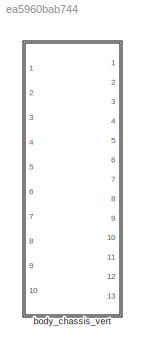
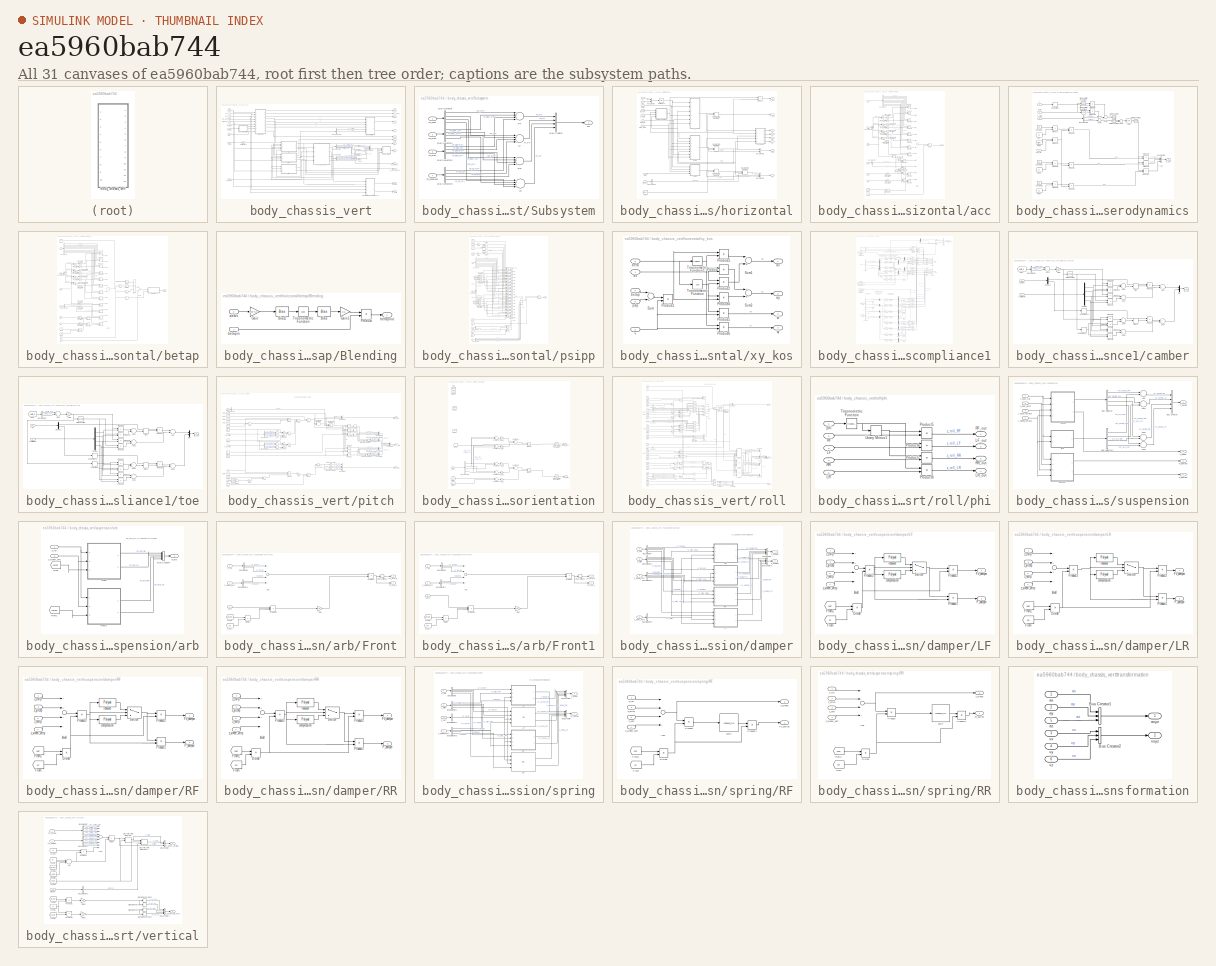
[diagram: thumbnail index - all 31 canvases of the model, root first then tree order]
MODEL slx_ea5960bab744
KIND library
CONFIG AbsTol = auto
CONFIG EnableMultiTasking = on
CONFIG FixedStep = auto
CONFIG MaxStep = auto
CONFIG MinStep = auto
CONFIG RelTol = 1e-3
CONFIG SampleTimeConstraint = Unconstrained
CONFIG Solver = ode45
CONFIG SolverName = ode45
CONFIG StartTime = 0.0
CONFIG StopTime = 10.0
BLOCK [SubSystem] body_chassis_vert
  Ports = [10, 13]
  RequestExecContextInheritance = off
BLOCK [Sum] body_chassis_vert/Add
  InputSameDT = off
  OutDataTypeStr = Inherit: Inherit via internal rule
  Ports = [2, 1]
  SaturateOnIntegerOverflow = off
BLOCK [Sum] body_chassis_vert/Add1
  InputSameDT = off
  OutDataTypeStr = Inherit: Inherit via internal rule
  Ports = [2, 1]
  SaturateOnIntegerOverflow = off
BLOCK [Sum] body_chassis_vert/Add2
  InputSameDT = off
  OutDataTypeStr = Inherit: Inherit via internal rule
  Ports = [2, 1]
  SaturateOnIntegerOverflow = off
BLOCK [Sum] body_chassis_vert/Add3
  InputSameDT = off
  OutDataTypeStr = Inherit: Inherit via internal rule
  Ports = [2, 1]
  SaturateOnIntegerOverflow = off
BLOCK [BusCreator] body_chassis_vert/Bus Creator
  DisplayOption = bar
  InheritFromInputs = on
  Inputs = 4
  Ports = [4, 1]
BLOCK [BusSelector] body_chassis_vert/Bus Selector
  OutputAsBus = off
  OutputSignals = Fz_spring_RF,Fz_spring_LF,Fz_spring_RR,Fz_spring_LR
  Ports = [1, 4]
BLOCK [BusSelector] body_chassis_vert/Bus Selector1
  OutputAsBus = off
  OutputSignals = Fz_damper_RF,Fz_damper_LF,Fz_damper_RR,Fz_damper_LR
  Ports = [1, 4]
BLOCK [BusSelector] body_chassis_vert/Bus Selector2
  OutputAsBus = off
  OutputSignals = z_vertpp,z_vertp
  Ports = [1, 2]
BLOCK [Inport] body_chassis_vert/Fl
  IconDisplay = Port number
  Port = 4
BLOCK [Inport] body_chassis_vert/Fs
  IconDisplay = Port number
  Port = 5
BLOCK [Outport] body_chassis_vert/Fzt
  IconDisplay = Port number
  Port = 11
BLOCK [Inport] body_chassis_vert/Mz
  IconDisplay = Port number
  Port = 10
BLOCK [Outport] body_chassis_vert/P_aer
  IconDisplay = Port number
  Port = 7
BLOCK [Outport] body_chassis_vert/P_damper
  IconDisplay = Port number
  Port = 6
BLOCK [SubSystem] body_chassis_vert/Subsystem
  Ports = [4, 1]
  RequestExecContextInheritance = off
BLOCK [BusCreator] body_chassis_vert/Subsystem/Bus Creator
  DisplayOption = bar
  InheritFromInputs = on
  Inputs = 4
  Ports = [4, 1]
BLOCK [BusSelector] body_chassis_vert/Subsystem/Bus Selector
  OutputAsBus = off
  OutputSignals = Fz_RF,Fz_LF,Fz_RR,Fz_LR
  Ports = [1, 4]
BLOCK [BusSelector] body_chassis_vert/Subsystem/Bus Selector1
  OutputAsBus = off
  OutputSignals = F_kinR_RF,F_kinR_LF,F_kinR_RR,F_kinR_LR
  Ports = [1, 4]
BLOCK [BusSelector] body_chassis_vert/Subsystem/Bus Selector2
  OutputAsBus = off
  OutputSignals = F_kinP_RF,F_kinP_LF,F_kinP_RR,F_kinP_LR
  Ports = [1, 4]
BLOCK [BusSelector] body_chassis_vert/Subsystem/Bus Selector3
  OutputAsBus = off
  OutputSignals = F_us_RF,F_us_LF,F_us_RR,F_us_LR
  Ports = [1, 4]
BLOCK [Inport] body_chassis_vert/Subsystem/Fz_kinP
  IconDisplay = Port number
  Port = 3
BLOCK [Inport] body_chassis_vert/Subsystem/Fz_kinR
  IconDisplay = Port number
  Port = 2
BLOCK [Inport] body_chassis_vert/Subsystem/Fz_susp
  IconDisplay = Port number
BLOCK [Inport] body_chassis_vert/Subsystem/Fz_unsprung
  IconDisplay = Port number
  Port = 4
BLOCK [Outport] body_chassis_vert/Subsystem/Fzt
  IconDisplay = Port number
BLOCK [Sum] body_chassis_vert/Subsystem/LF
  InputSameDT = off
  Inputs = ++++
  OutDataTypeStr = Inherit: Inherit via internal rule
  Ports = [4, 1]
  SaturateOnIntegerOverflow = off
BLOCK [Sum] body_chassis_vert/Subsystem/LR
  InputSameDT = off
  Inputs = ++++
  OutDataTypeStr = Inherit: Inherit via internal rule
  Ports = [4, 1]
  SaturateOnIntegerOverflow = off
BLOCK [Sum] body_chassis_vert/Subsystem/RF
  InputSameDT = off
  Inputs = ++++
  OutDataTypeStr = Inherit: Inherit via internal rule
  Ports = [4, 1]
  SaturateOnIntegerOverflow = off
BLOCK [Sum] body_chassis_vert/Subsystem/RR
  InputSameDT = off
  Inputs = ++++
  OutDataTypeStr = Inherit: Inherit via internal rule
  Ports = [4, 1]
  SaturateOnIntegerOverflow = off
BLOCK [UnitDelay] body_chassis_vert/Unit Delay3
  InputProcessing = Elements as channels (sample based)
  SampleTime = -1
BLOCK [Outport] body_chassis_vert/axyz
  IconDisplay = Port number
BLOCK [Outport] body_chassis_vert/beta
  IconDisplay = Port number
  Port = 8
BLOCK [Outport] body_chassis_vert/d_delta
  IconDisplay = Port number
  Port = 5
BLOCK [Inport] body_chassis_vert/delta
  IconDisplay = Port number
  Port = 3
BLOCK [Outport] body_chassis_vert/gamma
  IconDisplay = Port number
  Port = 13
BLOCK [SubSystem] body_chassis_vert/horizontal
  Ports = [9, 8]
  RequestExecContextInheritance = off
BLOCK [BusCreator] body_chassis_vert/horizontal/Bus Creator
  DisplayOption = bar
  InheritFromInputs = on
  Inputs = 2
  Ports = [2, 1]
BLOCK [BusCreator] body_chassis_vert/horizontal/Bus Creator1
  DisplayOption = bar
  InheritFromInputs = on
  Inputs = 3
  Ports = [3, 1]
BLOCK [BusCreator] body_chassis_vert/horizontal/Bus Creator2
  DisplayOption = bar
  InheritFromInputs = on
  Inputs = 2
  Ports = [2, 1]
BLOCK [BusSelector] body_chassis_vert/horizontal/Bus Selector
  OutputAsBus = off
  OutputSignals = init_psi
  Ports = [1, 1]
BLOCK [DiscreteIntegrator] body_chassis_vert/horizontal/Discrete-Time Integrator1
  ExternalReset = sampled level
  ICPrevOutput = DiscIntNeverNeededParam
  ICPrevScaledInput = DiscIntNeverNeededParam
  Ports = [2, 1]
  SampleTime = -1
BLOCK [DiscreteIntegrator] body_chassis_vert/horizontal/Discrete-Time Integrator2
  ExternalReset = sampled level
  ICPrevOutput = DiscIntNeverNeededParam
  ICPrevScaledInput = DiscIntNeverNeededParam
  InitialCondition = v0
  Ports = [2, 1]
  SampleTime = -1
BLOCK [DiscreteIntegrator] body_chassis_vert/horizontal/Discrete-Time Integrator3
  ExternalReset = sampled level
  ICPrevOutput = DiscIntNeverNeededParam
  ICPrevScaledInput = DiscIntNeverNeededParam
  InitialCondition = psip0
  Ports = [2, 1]
  SampleTime = -1
BLOCK [DiscreteIntegrator] body_chassis_vert/horizontal/Discrete-Time Integrator4
  ExternalReset = sampled level
  ICPrevOutput = DiscIntNeverNeededParam
  ICPrevScaledInput = DiscIntNeverNeededParam
  InitialConditionSource = external
  Ports = [3, 1]
  SampleTime = -1
BLOCK [Inport] body_chassis_vert/horizontal/Fl
  IconDisplay = Port number
  Port = 2
BLOCK [From] body_chassis_vert/horizontal/From
  GotoTag = reset
  TagVisibility = scoped
BLOCK [Inport] body_chassis_vert/horizontal/Fs
  IconDisplay = Port number
  Port = 3
BLOCK [Inport] body_chassis_vert/horizontal/Mz
  IconDisplay = Port number
  Port = 9
BLOCK [Outport] body_chassis_vert/horizontal/P_aer
  IconDisplay = Port number
  Port = 8
BLOCK [Product] body_chassis_vert/horizontal/Product
  InputSameDT = off
  OutDataTypeStr = Inherit: Inherit via internal rule
  Ports = [2, 1]
  RndMeth = Floor
  SaturateOnIntegerOverflow = off
BLOCK [UnitDelay] body_chassis_vert/horizontal/Unit Delay3
  InputProcessing = Elements as channels (sample based)
  SampleTime = -1
BLOCK [SubSystem] body_chassis_vert/horizontal/acc
  Ports = [6, 1]
  RequestExecContextInheritance = off
BLOCK [BusSelector] body_chassis_vert/horizontal/acc/Bus Selector
  OutputAsBus = off
  OutputSignals = Fl.Fl_LF,Fl.Fl_RF,Fs.Fs_LF,Fs.Fs_RF,Fl.Fl_LR,Fl.Fl_RR,Fs.Fs_LR,Fs.Fs_RR
  Ports = [1, 8]
BLOCK [BusSelector] body_chassis_vert/horizontal/acc/Bus Selector1
  OutputAsBus = off
  OutputSignals = delta_LF,delta_RF,delta_LR,delta_RR
  Ports = [1, 4]
BLOCK [BusSelector] body_chassis_vert/horizontal/acc/Bus Selector2
  OutputAsBus = off
  OutputSignals = F_aer_x,F_aer_y
  Ports = [1, 2]
BLOCK [Product] body_chassis_vert/horizontal/acc/Divide
  InputSameDT = off
  Inputs = */
  OutDataTypeStr = Inherit: Inherit via internal rule
  Ports = [2, 1]
  RndMeth = Floor
  SaturateOnIntegerOverflow = off
BLOCK [Inport] body_chassis_vert/horizontal/acc/F_aer
  IconDisplay = Port number
  Port = 4
BLOCK [Inport] body_chassis_vert/horizontal/acc/Fls
  IconDisplay = Port number
BLOCK [From] body_chassis_vert/horizontal/acc/From
  GotoTag = m
  TagVisibility = scoped
BLOCK [From] body_chassis_vert/horizontal/acc/From1
  GotoTag = g
  TagVisibility = scoped
BLOCK [Product] body_chassis_vert/horizontal/acc/Product
  InputSameDT = off
  OutDataTypeStr = Inherit: Inherit via internal rule
  Ports = [2, 1]
  SaturateOnIntegerOverflow = off
BLOCK [Product] body_chassis_vert/horizontal/acc/Product1
  InputSameDT = off
  OutDataTypeStr = Inherit: Inherit via internal rule
  Ports = [2, 1]
  SaturateOnIntegerOverflow = off
BLOCK [Product] body_chassis_vert/horizontal/acc/Product10
  InputSameDT = off
  OutDataTypeStr = Inherit: Inherit via internal rule
  Ports = [2, 1]
  SaturateOnIntegerOverflow = off
BLOCK [Product] body_chassis_vert/horizontal/acc/Product11
  InputSameDT = off
  OutDataTypeStr = Inherit: Inherit via internal rule
  Ports = [2, 1]
  SaturateOnIntegerOverflow = off
BLOCK [Product] body_chassis_vert/horizontal/acc/Product12
  InputSameDT = off
  OutDataTypeStr = Inherit: Inherit via internal rule
  Ports = [2, 1]
  SaturateOnIntegerOverflow = off
BLOCK [Product] body_chassis_vert/horizontal/acc/Product13
  InputSameDT = off
  OutDataTypeStr = Inherit: Inherit via internal rule
  Ports = [2, 1]
  SaturateOnIntegerOverflow = off
BLOCK [Product] body_chassis_vert/horizontal/acc/Product14
  InputSameDT = off
  OutDataTypeStr = Inherit: Inherit via internal rule
  Ports = [2, 1]
  SaturateOnIntegerOverflow = off
BLOCK [Product] body_chassis_vert/horizontal/acc/Product2
  InputSameDT = off
  OutDataTypeStr = Inherit: Inherit via internal rule
  Ports = [2, 1]
  SaturateOnIntegerOverflow = off
BLOCK [Product] body_chassis_vert/horizontal/acc/Product3
  InputSameDT = off
  OutDataTypeStr = Inherit: Inherit via internal rule
  Ports = [2, 1]
  SaturateOnIntegerOverflow = off
BLOCK [Product] body_chassis_vert/horizontal/acc/Product4
  InputSameDT = off
  OutDataTypeStr = Inherit: Inherit via internal rule
  Ports = [2, 1]
  SaturateOnIntegerOverflow = off
BLOCK [Product] body_chassis_vert/horizontal/acc/Product5
  InputSameDT = off
  OutDataTypeStr = Inherit: Inherit via internal rule
  Ports = [2, 1]
  SaturateOnIntegerOverflow = off
BLOCK [Product] body_chassis_vert/horizontal/acc/Product6
  InputSameDT = off
  OutDataTypeStr = Inherit: Inherit via internal rule
  Ports = [2, 1]
  SaturateOnIntegerOverflow = off
BLOCK [Product] body_chassis_vert/horizontal/acc/Product7
  InputSameDT = off
  OutDataTypeStr = Inherit: Inherit via internal rule
  Ports = [2, 1]
  SaturateOnIntegerOverflow = off
BLOCK [Product] body_chassis_vert/horizontal/acc/Product8
  InputSameDT = off
  OutDataTypeStr = Inherit: Inherit via internal rule
  Ports = [2, 1]
  SaturateOnIntegerOverflow = off
BLOCK [Product] body_chassis_vert/horizontal/acc/Product9
  InputSameDT = off
  OutDataTypeStr = Inherit: Inherit via internal rule
  Ports = [2, 1]
  SaturateOnIntegerOverflow = off
BLOCK [Sum] body_chassis_vert/horizontal/acc/Sum
  IconShape = round
  InputSameDT = off
  Inputs = |+-
  OutDataTypeStr = Inherit: Inherit via internal rule
  Ports = [2, 1]
  SaturateOnIntegerOverflow = off
BLOCK [Sum] body_chassis_vert/horizontal/acc/Sum1
  InputSameDT = off
  Inputs = ++--++-----+
  OutDataTypeStr = Inherit: Inherit via internal rule
  Ports = [12, 1]
  SaturateOnIntegerOverflow = off
BLOCK [Sum] body_chassis_vert/horizontal/acc/Sum2
  IconShape = round
  InputSameDT = off
  Inputs = |+-
  OutDataTypeStr = Inherit: Inherit via internal rule
  Ports = [2, 1]
  SaturateOnIntegerOverflow = off
BLOCK [Sum] body_chassis_vert/horizontal/acc/Sum3
  IconShape = round
  InputSameDT = off
  Inputs = |+-
  OutDataTypeStr = Inherit: Inherit via internal rule
  Ports = [2, 1]
  SaturateOnIntegerOverflow = off
BLOCK [Sum] body_chassis_vert/horizontal/acc/Sum4
  IconShape = round
  InputSameDT = off
  Inputs = |+-
  OutDataTypeStr = Inherit: Inherit via internal rule
  Ports = [2, 1]
  SaturateOnIntegerOverflow = off
BLOCK [Trigonometry] body_chassis_vert/horizontal/acc/Trigonometric Function1
  Ports = [1, 1]
BLOCK [Trigonometry] body_chassis_vert/horizontal/acc/Trigonometric Function10
  Operator = cos
  Ports = [1, 1]
BLOCK [Trigonometry] body_chassis_vert/horizontal/acc/Trigonometric Function11
  Operator = cos
  Ports = [1, 1]
BLOCK [Trigonometry] body_chassis_vert/horizontal/acc/Trigonometric Function12
  Ports = [1, 1]
BLOCK [Trigonometry] body_chassis_vert/horizontal/acc/Trigonometric Function2
  Ports = [1, 1]
BLOCK [Trigonometry] body_chassis_vert/horizontal/acc/Trigonometric Function3
  Ports = [1, 1]
BLOCK [Trigonometry] body_chassis_vert/horizontal/acc/Trigonometric Function4
  Ports = [1, 1]
BLOCK [Trigonometry] body_chassis_vert/horizontal/acc/Trigonometric Function5
  Ports = [1, 1]
BLOCK [Trigonometry] body_chassis_vert/horizontal/acc/Trigonometric Function6
  Operator = cos
  Ports = [1, 1]
BLOCK [Trigonometry] body_chassis_vert/horizontal/acc/Trigonometric Function7
  Ports = [1, 1]
BLOCK [Trigonometry] body_chassis_vert/horizontal/acc/Trigonometric Function8
  Operator = cos
  Ports = [1, 1]
BLOCK [Trigonometry] body_chassis_vert/horizontal/acc/Trigonometric Function9
  Operator = cos
  Ports = [1, 1]
BLOCK [UnaryMinus] body_chassis_vert/horizontal/acc/Unary Minus
BLOCK [Outport] body_chassis_vert/horizontal/acc/a
  IconDisplay = Port number
BLOCK [Inport] body_chassis_vert/horizontal/acc/beta
  IconDisplay = Port number
  Port = 3
BLOCK [Inport] body_chassis_vert/horizontal/acc/delta
  IconDisplay = Port number
  Port = 2
BLOCK [Inport] body_chassis_vert/horizontal/acc/pitch
  IconDisplay = Port number
  Port = 6
BLOCK [Inport] body_chassis_vert/horizontal/acc/roll
  IconDisplay = Port number
  Port = 5
BLOCK [SubSystem] body_chassis_vert/horizontal/aerodynamics
  Ports = [4, 1]
  RequestExecContextInheritance = off
BLOCK [BusCreator] body_chassis_vert/horizontal/aerodynamics/Bus Creator1
  DisplayOption = bar
  InheritFromInputs = on
  Inputs = 3
  Ports = [3, 1]
BLOCK [BusSelector] body_chassis_vert/horizontal/aerodynamics/Bus Selector2
  OutputAsBus = off
  OutputSignals = vwindx,vwindy
  Ports = [1, 2]
BLOCK [Constant] body_chassis_vert/horizontal/aerodynamics/Constant
  Value = 0.5
BLOCK [Constant] body_chassis_vert/horizontal/aerodynamics/Constant1
  Value = 0.5
BLOCK [Constant] body_chassis_vert/horizontal/aerodynamics/Constant2
  Value = 0.5
BLOCK [Outport] body_chassis_vert/horizontal/aerodynamics/F_aer
  IconDisplay = Port number
BLOCK [From] body_chassis_vert/horizontal/aerodynamics/From
  GotoTag = cx
  TagVisibility = scoped
BLOCK [From] body_chassis_vert/horizontal/aerodynamics/From1
  GotoTag = Afront
  TagVisibility = scoped
BLOCK [From] body_chassis_vert/horizontal/aerodynamics/From2
  GotoTag = cy
  TagVisibility = scoped
BLOCK [From] body_chassis_vert/horizontal/aerodynamics/From4
  GotoTag = cz
  TagVisibility = scoped
BLOCK [Math] body_chassis_vert/horizontal/aerodynamics/Math Function
  Operator = square
  Ports = [1, 1]
BLOCK [Math] body_chassis_vert/horizontal/aerodynamics/Math Function1
  Operator = square
  Ports = [1, 1]
BLOCK [Math] body_chassis_vert/horizontal/aerodynamics/Math Function2
  Operator = square
  Ports = [1, 1]
BLOCK [Product] body_chassis_vert/horizontal/aerodynamics/Product
  InputSameDT = off
  OutDataTypeStr = Inherit: Inherit via internal rule
  Ports = [2, 1]
  SaturateOnIntegerOverflow = off
BLOCK [Product] body_chassis_vert/horizontal/aerodynamics/Product1
  InputSameDT = off
  OutDataTypeStr = Inherit: Inherit via internal rule
  Ports = [2, 1]
  SaturateOnIntegerOverflow = off
BLOCK [Product] body_chassis_vert/horizontal/aerodynamics/Product10
  InputSameDT = off
  OutDataTypeStr = Inherit: Inherit via internal rule
  Ports = [2, 1]
  SaturateOnIntegerOverflow = off
BLOCK [Product] body_chassis_vert/horizontal/aerodynamics/Product11
  InputSameDT = off
  OutDataTypeStr = Inherit: Inherit via internal rule
  Ports = [2, 1]
  SaturateOnIntegerOverflow = off
BLOCK [Product] body_chassis_vert/horizontal/aerodynamics/Product2
  InputSameDT = off
  OutDataTypeStr = Inherit: Inherit via internal rule
  Ports = [2, 1]
  SaturateOnIntegerOverflow = off
BLOCK [Product] body_chassis_vert/horizontal/aerodynamics/Product3
  InputSameDT = off
  OutDataTypeStr = Inherit: Inherit via internal rule
  Ports = [2, 1]
  SaturateOnIntegerOverflow = off
BLOCK [Product] body_chassis_vert/horizontal/aerodynamics/Product4
  InputSameDT = off
  OutDataTypeStr = Inherit: Inherit via internal rule
  Ports = [2, 1]
  SaturateOnIntegerOverflow = off
BLOCK [Product] body_chassis_vert/horizontal/aerodynamics/Product5
  InputSameDT = off
  OutDataTypeStr = Inherit: Inherit via internal rule
  Ports = [2, 1]
  SaturateOnIntegerOverflow = off
BLOCK [Product] body_chassis_vert/horizontal/aerodynamics/Product6
  InputSameDT = off
  OutDataTypeStr = Inherit: Inherit via internal rule
  Ports = [2, 1]
  SaturateOnIntegerOverflow = off
BLOCK [Product] body_chassis_vert/horizontal/aerodynamics/Product7
  InputSameDT = off
  OutDataTypeStr = Inherit: Inherit via internal rule
  Ports = [2, 1]
  SaturateOnIntegerOverflow = off
BLOCK [Product] body_chassis_vert/horizontal/aerodynamics/Product8
  InputSameDT = off
  OutDataTypeStr = Inherit: Inherit via internal rule
  Ports = [2, 1]
  SaturateOnIntegerOverflow = off
BLOCK [Product] body_chassis_vert/horizontal/aerodynamics/Product9
  InputSameDT = off
  OutDataTypeStr = Inherit: Inherit via internal rule
  Ports = [2, 1]
  SaturateOnIntegerOverflow = off
BLOCK [Sqrt] body_chassis_vert/horizontal/aerodynamics/Sqrt
BLOCK [Sum] body_chassis_vert/horizontal/aerodynamics/Sum1
  IconShape = round
  InputSameDT = off
  Inputs = ++|
  OutDataTypeStr = Inherit: Inherit via internal rule
  Ports = [2, 1]
  SaturateOnIntegerOverflow = off
BLOCK [Sum] body_chassis_vert/horizontal/aerodynamics/Sum5
  IconShape = round
  InputSameDT = off
  Inputs = ++|
  OutDataTypeStr = Inherit: Inherit via internal rule
  Ports = [2, 1]
  SaturateOnIntegerOverflow = off
BLOCK [Sum] body_chassis_vert/horizontal/aerodynamics/Sum6
  IconShape = round
  InputSameDT = off
  Inputs = ++|
  OutDataTypeStr = Inherit: Inherit via internal rule
  Ports = [2, 1]
  SaturateOnIntegerOverflow = off
BLOCK [Trigonometry] body_chassis_vert/horizontal/aerodynamics/Trigonometric Function1
  Operator = cos
  Ports = [1, 1]
BLOCK [Trigonometry] body_chassis_vert/horizontal/aerodynamics/Trigonometric Function5
  Ports = [1, 1]
BLOCK [UnaryMinus] body_chassis_vert/horizontal/aerodynamics/Unary Minus
BLOCK [Inport] body_chassis_vert/horizontal/aerodynamics/beta
  IconDisplay = Port number
  Port = 4
BLOCK [Inport] body_chassis_vert/horizontal/aerodynamics/rho_air
  IconDisplay = Port number
BLOCK [Inport] body_chassis_vert/horizontal/aerodynamics/v
  IconDisplay = Port number
  Port = 2
BLOCK [Inport] body_chassis_vert/horizontal/aerodynamics/v_wind
  IconDisplay = Port number
  Port = 3
BLOCK [Outport] body_chassis_vert/horizontal/ax
  IconDisplay = Port number
  Port = 4
BLOCK [Outport] body_chassis_vert/horizontal/ay
  IconDisplay = Port number
  Port = 5
BLOCK [Outport] body_chassis_vert/horizontal/beta
  IconDisplay = Port number
BLOCK [SubSystem] body_chassis_vert/horizontal/betap
  Ports = [8, 1]
  RequestExecContextInheritance = off
BLOCK [Abs] body_chassis_vert/horizontal/betap/Abs
  SaturateOnIntegerOverflow = off
BLOCK [Abs] body_chassis_vert/horizontal/betap/Abs1
  SaturateOnIntegerOverflow = off
BLOCK [SubSystem] body_chassis_vert/horizontal/betap/Blending
  Ports = [2, 1]
  RequestExecContextInheritance = off
BLOCK [Bias] body_chassis_vert/horizontal/betap/Blending/Bias
  Bias = 1
  SaturateOnIntegerOverflow = off
BLOCK [Bias] body_chassis_vert/horizontal/betap/Blending/Bias1
  Bias = -2*pi
  SaturateOnIntegerOverflow = off
BLOCK [Gain] body_chassis_vert/horizontal/betap/Blending/Gain
  Gain = 2*pi*0.5
  OutDataTypeStr = Inherit: Inherit via internal rule
  ParamDataTypeStr = Inherit: Inherit via internal rule
  SaturateOnIntegerOverflow = off
BLOCK [Gain] body_chassis_vert/horizontal/betap/Blending/Gain1
  Gain = 0.5
  OutDataTypeStr = Inherit: Inherit via internal rule
  ParamDataTypeStr = Inherit: Inherit via internal rule
  SaturateOnIntegerOverflow = off
BLOCK [Product] body_chassis_vert/horizontal/betap/Blending/Product
  InputSameDT = off
  OutDataTypeStr = Inherit: Inherit via internal rule
  Ports = [2, 1]
  SaturateOnIntegerOverflow = off
BLOCK [Trigonometry] body_chassis_vert/horizontal/betap/Blending/Trigonometric Function
  Operator = tanh
  Ports = [1, 1]
BLOCK [Inport] body_chassis_vert/horizontal/betap/Blending/absVx
  IconDisplay = Port number
  Port = 2
BLOCK [Inport] body_chassis_vert/horizontal/betap/Blending/betapin
  IconDisplay = Port number
BLOCK [Outport] body_chassis_vert/horizontal/betap/Blending/betapout
  IconDisplay = Port number
BLOCK [BusSelector] body_chassis_vert/horizontal/betap/Bus Selector
  OutputAsBus = off
  OutputSignals = Fl.Fl_LF,Fl.Fl_RF,Fs.Fs_LF,Fs.Fs_RF,Fl.Fl_LR,Fl.Fl_RR,Fs.Fs_LR,Fs.Fs_RR
  Ports = [1, 8]
BLOCK [BusSelector] body_chassis_vert/horizontal/betap/Bus Selector1
  OutputAsBus = off
  OutputSignals = delta_LF,delta_RF,delta_LR,delta_RR
  Ports = [1, 4]
BLOCK [BusSelector] body_chassis_vert/horizontal/betap/Bus Selector2
  OutputAsBus = off
  OutputSignals = F_aer_x,F_aer_y
  Ports = [1, 2]
BLOCK [Product] body_chassis_vert/horizontal/betap/Divide
  InputSameDT = off
  Inputs = */*
  OutDataTypeStr = Inherit: Inherit via internal rule
  Ports = [3, 1]
  RndMeth = Floor
  SaturateOnIntegerOverflow = off
BLOCK [Product] body_chassis_vert/horizontal/betap/Divide1
  InputSameDT = off
  Inputs = /*
  OutDataTypeStr = Inherit: Inherit via internal rule
  Ports = [2, 1]
  RndMeth = Floor
  SaturateOnIntegerOverflow = off
BLOCK [Inport] body_chassis_vert/horizontal/betap/F_aer
  IconDisplay = Port number
  Port = 5
BLOCK [From] body_chassis_vert/horizontal/betap/From
  GotoTag = m
  TagVisibility = scoped
BLOCK [From] body_chassis_vert/horizontal/betap/From1
  GotoTag = g
  TagVisibility = scoped
BLOCK [From] body_chassis_vert/horizontal/betap/From2
  GotoTag = m
  TagVisibility = scoped
BLOCK [Inport] body_chassis_vert/horizontal/betap/Fsl
  IconDisplay = Port number
  Port = 3
BLOCK [Product] body_chassis_vert/horizontal/betap/Product1
  InputSameDT = off
  OutDataTypeStr = Inherit: Inherit via internal rule
  Ports = [2, 1]
  SaturateOnIntegerOverflow = off
BLOCK [Product] body_chassis_vert/horizontal/betap/Product10
  InputSameDT = off
  OutDataTypeStr = Inherit: Inherit via internal rule
  Ports = [2, 1]
  SaturateOnIntegerOverflow = off
BLOCK [Product] body_chassis_vert/horizontal/betap/Product11
  InputSameDT = off
  OutDataTypeStr = Inherit: Inherit via internal rule
  Ports = [2, 1]
  SaturateOnIntegerOverflow = off
BLOCK [Product] body_chassis_vert/horizontal/betap/Product12
  InputSameDT = off
  OutDataTypeStr = Inherit: Inherit via internal rule
  Ports = [2, 1]
  SaturateOnIntegerOverflow = off
BLOCK [Product] body_chassis_vert/horizontal/betap/Product13
  InputSameDT = off
  OutDataTypeStr = Inherit: Inherit via internal rule
  Ports = [2, 1]
  SaturateOnIntegerOverflow = off
BLOCK [Product] body_chassis_vert/horizontal/betap/Product14
  InputSameDT = off
  OutDataTypeStr = Inherit: Inherit via internal rule
  Ports = [2, 1]
  SaturateOnIntegerOverflow = off
BLOCK [Product] body_chassis_vert/horizontal/betap/Product15
  InputSameDT = off
  OutDataTypeStr = Inherit: Inherit via internal rule
  Ports = [2, 1]
  SaturateOnIntegerOverflow = off
BLOCK [Product] body_chassis_vert/horizontal/betap/Product2
  InputSameDT = off
  OutDataTypeStr = Inherit: Inherit via internal rule
  Ports = [2, 1]
  SaturateOnIntegerOverflow = off
BLOCK [Product] body_chassis_vert/horizontal/betap/Product3
  InputSameDT = off
  OutDataTypeStr = Inherit: Inherit via internal rule
  Ports = [2, 1]
  SaturateOnIntegerOverflow = off
BLOCK [Product] body_chassis_vert/horizontal/betap/Product4
  InputSameDT = off
  OutDataTypeStr = Inherit: Inherit via internal rule
  Ports = [2, 1]
  SaturateOnIntegerOverflow = off
BLOCK [Product] body_chassis_vert/horizontal/betap/Product5
  InputSameDT = off
  OutDataTypeStr = Inherit: Inherit via internal rule
  Ports = [2, 1]
  SaturateOnIntegerOverflow = off
BLOCK [Product] body_chassis_vert/horizontal/betap/Product6
  InputSameDT = off
  OutDataTypeStr = Inherit: Inherit via internal rule
  Ports = [2, 1]
  SaturateOnIntegerOverflow = off
BLOCK [Product] body_chassis_vert/horizontal/betap/Product7
  InputSameDT = off
  OutDataTypeStr = Inherit: Inherit via internal rule
  Ports = [2, 1]
  SaturateOnIntegerOverflow = off
BLOCK [Product] body_chassis_vert/horizontal/betap/Product8
  InputSameDT = off
  OutDataTypeStr = Inherit: Inherit via internal rule
  Ports = [2, 1]
  SaturateOnIntegerOverflow = off
BLOCK [Product] body_chassis_vert/horizontal/betap/Product9
  InputSameDT = off
  OutDataTypeStr = Inherit: Inherit via internal rule
  Ports = [2, 1]
  SaturateOnIntegerOverflow = off
BLOCK [Saturate] body_chassis_vert/horizontal/betap/Saturation
  InputPortMap = u0
  LowerLimit = 0.5e-5
  Ports = [1, 1]
  UpperLimit = 1e10
BLOCK [Signum] body_chassis_vert/horizontal/betap/Sign
BLOCK [Sum] body_chassis_vert/horizontal/betap/Sum
  IconShape = round
  InputSameDT = off
  Inputs = |+-
  OutDataTypeStr = Inherit: Inherit via internal rule
  Ports = [2, 1]
  SaturateOnIntegerOverflow = off
BLOCK [Sum] body_chassis_vert/horizontal/betap/Sum2
  IconShape = round
  InputSameDT = off
  Inputs = |+-
  OutDataTypeStr = Inherit: Inherit via internal rule
  Ports = [2, 1]
  SaturateOnIntegerOverflow = off
BLOCK [Sum] body_chassis_vert/horizontal/betap/Sum3
  IconShape = round
  InputSameDT = off
  Inputs = |+-
  OutDataTypeStr = Inherit: Inherit via internal rule
  Ports = [2, 1]
  SaturateOnIntegerOverflow = off
BLOCK [Sum] body_chassis_vert/horizontal/betap/Sum4
  IconShape = round
  InputSameDT = off
  Inputs = |+-
  OutDataTypeStr = Inherit: Inherit via internal rule
  Ports = [2, 1]
  SaturateOnIntegerOverflow = off
BLOCK [Sum] body_chassis_vert/horizontal/betap/Sum7
  InputSameDT = off
  Inputs = +-
  OutDataTypeStr = Inherit: Inherit via internal rule
  Ports = [2, 1]
  SaturateOnIntegerOverflow = off
BLOCK [Sum] body_chassis_vert/horizontal/betap/Sum8
  InputSameDT = off
  Inputs = +++++++++++-
  OutDataTypeStr = Inherit: Inherit via internal rule
  Ports = [12, 1]
  SaturateOnIntegerOverflow = off
BLOCK [Trigonometry] body_chassis_vert/horizontal/betap/Trigonometric Function1
  Operator = cos
  Ports = [1, 1]
BLOCK [Trigonometry] body_chassis_vert/horizontal/betap/Trigonometric Function10
  Operator = cos
  Ports = [1, 1]
BLOCK [Trigonometry] body_chassis_vert/horizontal/betap/Trigonometric Function11
  Ports = [1, 1]
BLOCK [Trigonometry] body_chassis_vert/horizontal/betap/Trigonometric Function12
  Ports = [1, 1]
BLOCK [Trigonometry] body_chassis_vert/horizontal/betap/Trigonometric Function13
  Ports = [1, 1]
BLOCK [Trigonometry] body_chassis_vert/horizontal/betap/Trigonometric Function14
  Operator = cos
  Ports = [1, 1]
BLOCK [Trigonometry] body_chassis_vert/horizontal/betap/Trigonometric Function2
  Ports = [1, 1]
BLOCK [Trigonometry] body_chassis_vert/horizontal/betap/Trigonometric Function3
  Ports = [1, 1]
BLOCK [Trigonometry] body_chassis_vert/horizontal/betap/Trigonometric Function5
  Ports = [1, 1]
BLOCK [Trigonometry] body_chassis_vert/horizontal/betap/Trigonometric Function7
  Ports = [1, 1]
BLOCK [Trigonometry] body_chassis_vert/horizontal/betap/Trigonometric Function8
  Operator = cos
  Ports = [1, 1]
BLOCK [Trigonometry] body_chassis_vert/horizontal/betap/Trigonometric Function9
  Operator = cos
  Ports = [1, 1]
BLOCK [Inport] body_chassis_vert/horizontal/betap/beta
  IconDisplay = Port number
  Port = 2
BLOCK [Outport] body_chassis_vert/horizontal/betap/betap
  IconDisplay = Port number
BLOCK [Inport] body_chassis_vert/horizontal/betap/delta
  IconDisplay = Port number
  Port = 4
BLOCK [Inport] body_chassis_vert/horizontal/betap/dpsi
  IconDisplay = Port number
  Port = 6
BLOCK [Inport] body_chassis_vert/horizontal/betap/pitch
  IconDisplay = Port number
  Port = 8
BLOCK [Inport] body_chassis_vert/horizontal/betap/roll
  IconDisplay = Port number
  Port = 7
BLOCK [Inport] body_chassis_vert/horizontal/betap/v
  IconDisplay = Port number
BLOCK [Inport] body_chassis_vert/horizontal/delta
  IconDisplay = Port number
BLOCK [Inport] body_chassis_vert/horizontal/init_pos
  IconDisplay = Port number
  Port = 5
BLOCK [Inport] body_chassis_vert/horizontal/pitch_road
  IconDisplay = Port number
  Port = 8
BLOCK [Outport] body_chassis_vert/horizontal/psi
  IconDisplay = Port number
  Port = 2
BLOCK [SubSystem] body_chassis_vert/horizontal/psipp
  Ports = [4, 1]
  RequestExecContextInheritance = off
BLOCK [Sum] body_chassis_vert/horizontal/psipp/Add
  InputSameDT = off
  Inputs = 5
  OutDataTypeStr = Inherit: Inherit via internal rule
  Ports = [5, 1]
  SaturateOnIntegerOverflow = off
BLOCK [BusSelector] body_chassis_vert/horizontal/psipp/Bus Selector
  OutputAsBus = off
  OutputSignals = delta_LF,delta_RF,delta_LR,delta_RR
  Ports = [1, 4]
BLOCK [BusSelector] body_chassis_vert/horizontal/psipp/Bus Selector1
  OutputAsBus = off
  OutputSignals = Fl.Fl_LF,Fl.Fl_RF,Fs.Fs_LF,Fs.Fs_RF,Fl.Fl_LR,Fl.Fl_RR,Fs.Fs_LR,Fs.Fs_RR
  Ports = [1, 8]
BLOCK [BusSelector] body_chassis_vert/horizontal/psipp/Bus Selector2
  OutputAsBus = off
  OutputSignals = F_aer_x,F_aer_y
  Ports = [1, 2]
BLOCK [BusSelector] body_chassis_vert/horizontal/psipp/Bus Selector3
  OutputAsBus = off
  OutputSignals = Mv_RF,Mv_LF,Mv_RR,Mv_LR
  Ports = [1, 4]
BLOCK [Product] body_chassis_vert/horizontal/psipp/Divide
  InputSameDT = off
  Inputs = */
  OutDataTypeStr = Inherit: Inherit via internal rule
  Ports = [2, 1]
  RndMeth = Floor
  SaturateOnIntegerOverflow = off
BLOCK [Inport] body_chassis_vert/horizontal/psipp/F_aer
  IconDisplay = Port number
  Port = 3
BLOCK [Inport] body_chassis_vert/horizontal/psipp/Fls
  IconDisplay = Port number
BLOCK [From] body_chassis_vert/horizontal/psipp/From
  GotoTag = I_z
  TagVisibility = scoped
BLOCK [From] body_chassis_vert/horizontal/psipp/From1
  GotoTag = lF
  TagVisibility = scoped
BLOCK [From] body_chassis_vert/horizontal/psipp/From2
  GotoTag = lDP
  TagVisibility = scoped
BLOCK [From] body_chassis_vert/horizontal/psipp/From3
  GotoTag = sF
  TagVisibility = scoped
BLOCK [From] body_chassis_vert/horizontal/psipp/From4
  GotoTag = sR
  TagVisibility = scoped
BLOCK [From] body_chassis_vert/horizontal/psipp/From5
  GotoTag = ySP
  TagVisibility = scoped
BLOCK [From] body_chassis_vert/horizontal/psipp/From6
  GotoTag = lR
  TagVisibility = scoped
BLOCK [From] body_chassis_vert/horizontal/psipp/From7
  GotoTag = sDP
  TagVisibility = scoped
BLOCK [Gain] body_chassis_vert/horizontal/psipp/Gain
  Gain = 0.5
  OutDataTypeStr = Inherit: Inherit via internal rule
  ParamDataTypeStr = Inherit: Inherit via internal rule
  SaturateOnIntegerOverflow = off
BLOCK [Gain] body_chassis_vert/horizontal/psipp/Gain1
  Gain = 0.5
  OutDataTypeStr = Inherit: Inherit via internal rule
  ParamDataTypeStr = Inherit: Inherit via internal rule
  SaturateOnIntegerOverflow = off
BLOCK [Inport] body_chassis_vert/horizontal/psipp/Mz
  IconDisplay = Port number
  Port = 4
BLOCK [Product] body_chassis_vert/horizontal/psipp/Product1
  InputSameDT = off
  OutDataTypeStr = Inherit: Inherit via internal rule
  Ports = [2, 1]
  SaturateOnIntegerOverflow = off
BLOCK [Product] body_chassis_vert/horizontal/psipp/Product10
  InputSameDT = off
  OutDataTypeStr = Inherit: Inherit via internal rule
  Ports = [2, 1]
  SaturateOnIntegerOverflow = off
BLOCK [Product] body_chassis_vert/horizontal/psipp/Product11
  InputSameDT = off
  OutDataTypeStr = Inherit: Inherit via internal rule
  Ports = [2, 1]
  SaturateOnIntegerOverflow = off
BLOCK [Product] body_chassis_vert/horizontal/psipp/Product12
  InputSameDT = off
  OutDataTypeStr = Inherit: Inherit via internal rule
  Ports = [2, 1]
  SaturateOnIntegerOverflow = off
BLOCK [Product] body_chassis_vert/horizontal/psipp/Product13
  InputSameDT = off
  OutDataTypeStr = Inherit: Inherit via internal rule
  Ports = [2, 1]
  SaturateOnIntegerOverflow = off
BLOCK [Product] body_chassis_vert/horizontal/psipp/Product14
  InputSameDT = off
  OutDataTypeStr = Inherit: Inherit via internal rule
  Ports = [2, 1]
  SaturateOnIntegerOverflow = off
BLOCK [Product] body_chassis_vert/horizontal/psipp/Product15
  InputSameDT = off
  OutDataTypeStr = Inherit: Inherit via internal rule
  Ports = [2, 1]
  SaturateOnIntegerOverflow = off
BLOCK [Product] body_chassis_vert/horizontal/psipp/Product16
  InputSameDT = off
  OutDataTypeStr = Inherit: Inherit via internal rule
  Ports = [2, 1]
  SaturateOnIntegerOverflow = off
BLOCK [Product] body_chassis_vert/horizontal/psipp/Product17
  InputSameDT = off
  OutDataTypeStr = Inherit: Inherit via internal rule
  Ports = [2, 1]
  SaturateOnIntegerOverflow = off
BLOCK [Product] body_chassis_vert/horizontal/psipp/Product18
  InputSameDT = off
  OutDataTypeStr = Inherit: Inherit via internal rule
  Ports = [2, 1]
  SaturateOnIntegerOverflow = off
BLOCK [Product] body_chassis_vert/horizontal/psipp/Product19
  InputSameDT = off
  OutDataTypeStr = Inherit: Inherit via internal rule
  Ports = [2, 1]
  SaturateOnIntegerOverflow = off
BLOCK [Product] body_chassis_vert/horizontal/psipp/Product2
  InputSameDT = off
  OutDataTypeStr = Inherit: Inherit via internal rule
  Ports = [2, 1]
  SaturateOnIntegerOverflow = off
BLOCK [Product] body_chassis_vert/horizontal/psipp/Product20
  InputSameDT = off
  OutDataTypeStr = Inherit: Inherit via internal rule
  Ports = [2, 1]
  SaturateOnIntegerOverflow = off
BLOCK [Product] body_chassis_vert/horizontal/psipp/Product21
  InputSameDT = off
  OutDataTypeStr = Inherit: Inherit via internal rule
  Ports = [2, 1]
  SaturateOnIntegerOverflow = off
BLOCK [Product] body_chassis_vert/horizontal/psipp/Product22
  InputSameDT = off
  OutDataTypeStr = Inherit: Inherit via internal rule
  Ports = [2, 1]
  SaturateOnIntegerOverflow = off
BLOCK [Product] body_chassis_vert/horizontal/psipp/Product23
  InputSameDT = off
  OutDataTypeStr = Inherit: Inherit via internal rule
  Ports = [2, 1]
  SaturateOnIntegerOverflow = off
BLOCK [Product] body_chassis_vert/horizontal/psipp/Product24
  InputSameDT = off
  OutDataTypeStr = Inherit: Inherit via internal rule
  Ports = [2, 1]
  SaturateOnIntegerOverflow = off
BLOCK [Product] body_chassis_vert/horizontal/psipp/Product25
  InputSameDT = off
  OutDataTypeStr = Inherit: Inherit via internal rule
  Ports = [2, 1]
  SaturateOnIntegerOverflow = off
BLOCK [Product] body_chassis_vert/horizontal/psipp/Product26
  InputSameDT = off
  OutDataTypeStr = Inherit: Inherit via internal rule
  Ports = [2, 1]
  SaturateOnIntegerOverflow = off
BLOCK [Product] body_chassis_vert/horizontal/psipp/Product27
  InputSameDT = off
  OutDataTypeStr = Inherit: Inherit via internal rule
  Ports = [2, 1]
  SaturateOnIntegerOverflow = off
BLOCK [Product] body_chassis_vert/horizontal/psipp/Product28
  InputSameDT = off
  OutDataTypeStr = Inherit: Inherit via internal rule
  Ports = [2, 1]
  SaturateOnIntegerOverflow = off
BLOCK [Product] body_chassis_vert/horizontal/psipp/Product29
  InputSameDT = off
  OutDataTypeStr = Inherit: Inherit via internal rule
  Ports = [2, 1]
  SaturateOnIntegerOverflow = off
BLOCK [Product] body_chassis_vert/horizontal/psipp/Product3
  InputSameDT = off
  OutDataTypeStr = Inherit: Inherit via internal rule
  Ports = [2, 1]
  SaturateOnIntegerOverflow = off
BLOCK [Product] body_chassis_vert/horizontal/psipp/Product30
  InputSameDT = off
  OutDataTypeStr = Inherit: Inherit via internal rule
  Ports = [2, 1]
  SaturateOnIntegerOverflow = off
BLOCK [Product] body_chassis_vert/horizontal/psipp/Product31
  InputSameDT = off
  OutDataTypeStr = Inherit: Inherit via internal rule
  Ports = [2, 1]
  SaturateOnIntegerOverflow = off
BLOCK [Product] body_chassis_vert/horizontal/psipp/Product32
  InputSameDT = off
  OutDataTypeStr = Inherit: Inherit via internal rule
  Ports = [2, 1]
  SaturateOnIntegerOverflow = off
BLOCK [Product] body_chassis_vert/horizontal/psipp/Product33
  InputSameDT = off
  OutDataTypeStr = Inherit: Inherit via internal rule
  Ports = [2, 1]
  SaturateOnIntegerOverflow = off
BLOCK [Product] body_chassis_vert/horizontal/psipp/Product34
  InputSameDT = off
  OutDataTypeStr = Inherit: Inherit via internal rule
  Ports = [2, 1]
  SaturateOnIntegerOverflow = off
BLOCK [Product] body_chassis_vert/horizontal/psipp/Product4
  InputSameDT = off
  OutDataTypeStr = Inherit: Inherit via internal rule
  Ports = [2, 1]
  SaturateOnIntegerOverflow = off
BLOCK [Product] body_chassis_vert/horizontal/psipp/Product5
  InputSameDT = off
  OutDataTypeStr = Inherit: Inherit via internal rule
  Ports = [2, 1]
  SaturateOnIntegerOverflow = off
BLOCK [Product] body_chassis_vert/horizontal/psipp/Product6
  InputSameDT = off
  OutDataTypeStr = Inherit: Inherit via internal rule
  Ports = [2, 1]
  SaturateOnIntegerOverflow = off
BLOCK [Product] body_chassis_vert/horizontal/psipp/Product7
  InputSameDT = off
  OutDataTypeStr = Inherit: Inherit via internal rule
  Ports = [2, 1]
  SaturateOnIntegerOverflow = off
BLOCK [Product] body_chassis_vert/horizontal/psipp/Product8
  InputSameDT = off
  OutDataTypeStr = Inherit: Inherit via internal rule
  Ports = [2, 1]
  SaturateOnIntegerOverflow = off
BLOCK [Product] body_chassis_vert/horizontal/psipp/Product9
  InputSameDT = off
  OutDataTypeStr = Inherit: Inherit via internal rule
  Ports = [2, 1]
  SaturateOnIntegerOverflow = off
BLOCK [Sum] body_chassis_vert/horizontal/psipp/Subtract
  InputSameDT = off
  Inputs = +-
  OutDataTypeStr = Inherit: Inherit via internal rule
  Ports = [2, 1]
  SaturateOnIntegerOverflow = off
BLOCK [Sum] body_chassis_vert/horizontal/psipp/Subtract1
  InputSameDT = off
  OutDataTypeStr = Inherit: Inherit via internal rule
  Ports = [2, 1]
  SaturateOnIntegerOverflow = off
BLOCK [Sum] body_chassis_vert/horizontal/psipp/Subtract2
  InputSameDT = off
  Inputs = +-
  OutDataTypeStr = Inherit: Inherit via internal rule
  Ports = [2, 1]
  SaturateOnIntegerOverflow = off
BLOCK [Sum] body_chassis_vert/horizontal/psipp/Subtract3
  InputSameDT = off
  OutDataTypeStr = Inherit: Inherit via internal rule
  Ports = [2, 1]
  SaturateOnIntegerOverflow = off
BLOCK [Sum] body_chassis_vert/horizontal/psipp/Sum
  InputSameDT = off
  Inputs = +-++++-+---++---+-
  OutDataTypeStr = Inherit: Inherit via internal rule
  Ports = [18, 1]
  SaturateOnIntegerOverflow = off
BLOCK [Trigonometry] body_chassis_vert/horizontal/psipp/Trigonometric Function1
  Ports = [1, 1]
BLOCK [Trigonometry] body_chassis_vert/horizontal/psipp/Trigonometric Function2
  Ports = [1, 1]
BLOCK [Trigonometry] body_chassis_vert/horizontal/psipp/Trigonometric Function3
  Operator = cos
  Ports = [1, 1]
BLOCK [Trigonometry] body_chassis_vert/horizontal/psipp/Trigonometric Function4
  Operator = cos
  Ports = [1, 1]
BLOCK [Trigonometry] body_chassis_vert/horizontal/psipp/Trigonometric Function5
  Ports = [1, 1]
BLOCK [Trigonometry] body_chassis_vert/horizontal/psipp/Trigonometric Function6
  Operator = cos
  Ports = [1, 1]
BLOCK [Trigonometry] body_chassis_vert/horizontal/psipp/Trigonometric Function7
  Ports = [1, 1]
BLOCK [Trigonometry] body_chassis_vert/horizontal/psipp/Trigonometric Function8
  Operator = cos
  Ports = [1, 1]
BLOCK [Inport] body_chassis_vert/horizontal/psipp/delta
  IconDisplay = Port number
  Port = 2
BLOCK [Outport] body_chassis_vert/horizontal/psipp/psipp
  IconDisplay = Port number
BLOCK [Inport] body_chassis_vert/horizontal/rho_air
  IconDisplay = Port number
  Port = 4
BLOCK [Inport] body_chassis_vert/horizontal/roll_road
  IconDisplay = Port number
  Port = 7
BLOCK [Outport] body_chassis_vert/horizontal/v_abs
  IconDisplay = Port number
  Port = 3
BLOCK [Inport] body_chassis_vert/horizontal/v_wind
  IconDisplay = Port number
  Port = 6
BLOCK [Outport] body_chassis_vert/horizontal/vx
  IconDisplay = Port number
  Port = 6
BLOCK [Outport] body_chassis_vert/horizontal/vy
  IconDisplay = Port number
  Port = 7
BLOCK [SubSystem] body_chassis_vert/horizontal/xy_kos
  Ports = [5, 4]
  RequestExecContextInheritance = off
BLOCK [Product] body_chassis_vert/horizontal/xy_kos/Product
  InputSameDT = off
  OutDataTypeStr = Inherit: Inherit via internal rule
  Ports = [2, 1]
  SaturateOnIntegerOverflow = off
BLOCK [Product] body_chassis_vert/horizontal/xy_kos/Product1
  InputSameDT = off
  OutDataTypeStr = Inherit: Inherit via internal rule
  Ports = [2, 1]
  SaturateOnIntegerOverflow = off
BLOCK [Product] body_chassis_vert/horizontal/xy_kos/Product2
  InputSameDT = off
  OutDataTypeStr = Inherit: Inherit via internal rule
  Ports = [2, 1]
  SaturateOnIntegerOverflow = off
BLOCK [Product] body_chassis_vert/horizontal/xy_kos/Product3
  InputSameDT = off
  OutDataTypeStr = Inherit: Inherit via internal rule
  Ports = [2, 1]
  SaturateOnIntegerOverflow = off
BLOCK [Product] body_chassis_vert/horizontal/xy_kos/Product4
  InputSameDT = off
  OutDataTypeStr = Inherit: Inherit via internal rule
  Ports = [2, 1]
  SaturateOnIntegerOverflow = off
BLOCK [Product] body_chassis_vert/horizontal/xy_kos/Product5
  InputSameDT = off
  OutDataTypeStr = Inherit: Inherit via internal rule
  Ports = [2, 1]
  SaturateOnIntegerOverflow = off
BLOCK [Product] body_chassis_vert/horizontal/xy_kos/Product6
  InputSameDT = off
  OutDataTypeStr = Inherit: Inherit via internal rule
  Ports = [2, 1]
  SaturateOnIntegerOverflow = off
BLOCK [Sum] body_chassis_vert/horizontal/xy_kos/Sum
  InputSameDT = off
  OutDataTypeStr = Inherit: Inherit via internal rule
  Ports = [2, 1]
  SaturateOnIntegerOverflow = off
BLOCK [Sum] body_chassis_vert/horizontal/xy_kos/Sum1
  InputSameDT = off
  Inputs = -+
  OutDataTypeStr = Inherit: Inherit via internal rule
  Ports = [2, 1]
  SaturateOnIntegerOverflow = off
BLOCK [Sum] body_chassis_vert/horizontal/xy_kos/Sum2
  InputSameDT = off
  OutDataTypeStr = Inherit: Inherit via internal rule
  Ports = [2, 1]
  SaturateOnIntegerOverflow = off
BLOCK [Trigonometry] body_chassis_vert/horizontal/xy_kos/Trigonometric Function
  Operator = cos
  Ports = [1, 1]
BLOCK [Trigonometry] body_chassis_vert/horizontal/xy_kos/Trigonometric Function1
  Ports = [1, 1]
BLOCK [Outport] body_chassis_vert/horizontal/xy_kos/ax
  IconDisplay = Port number
BLOCK [Outport] body_chassis_vert/horizontal/xy_kos/ay
  IconDisplay = Port number
  Port = 2
BLOCK [Inport] body_chassis_vert/horizontal/xy_kos/beta
  IconDisplay = Port number
  Port = 3
BLOCK [Inport] body_chassis_vert/horizontal/xy_kos/betap
  IconDisplay = Port number
  Port = 4
BLOCK [Inport] body_chassis_vert/horizontal/xy_kos/dv
  IconDisplay = Port number
BLOCK [Inport] body_chassis_vert/horizontal/xy_kos/psip
  IconDisplay = Port number
  Port = 5
BLOCK [Inport] body_chassis_vert/horizontal/xy_kos/v
  IconDisplay = Port number
  Port = 2
BLOCK [Outport] body_chassis_vert/horizontal/xy_kos/vx
  IconDisplay = Port number
  Port = 3
BLOCK [Outport] body_chassis_vert/horizontal/xy_kos/vy
  IconDisplay = Port number
  Port = 4
BLOCK [Inport] body_chassis_vert/init_pos
  IconDisplay = Port number
  Port = 8
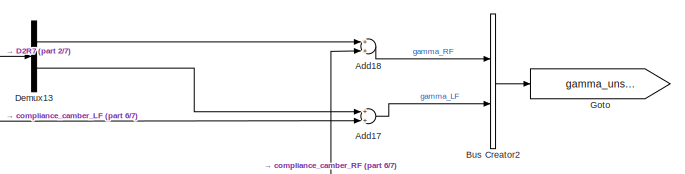
[diagram: body_chassis_vert/kinematics_compliance1 - part 1/7, top right region]
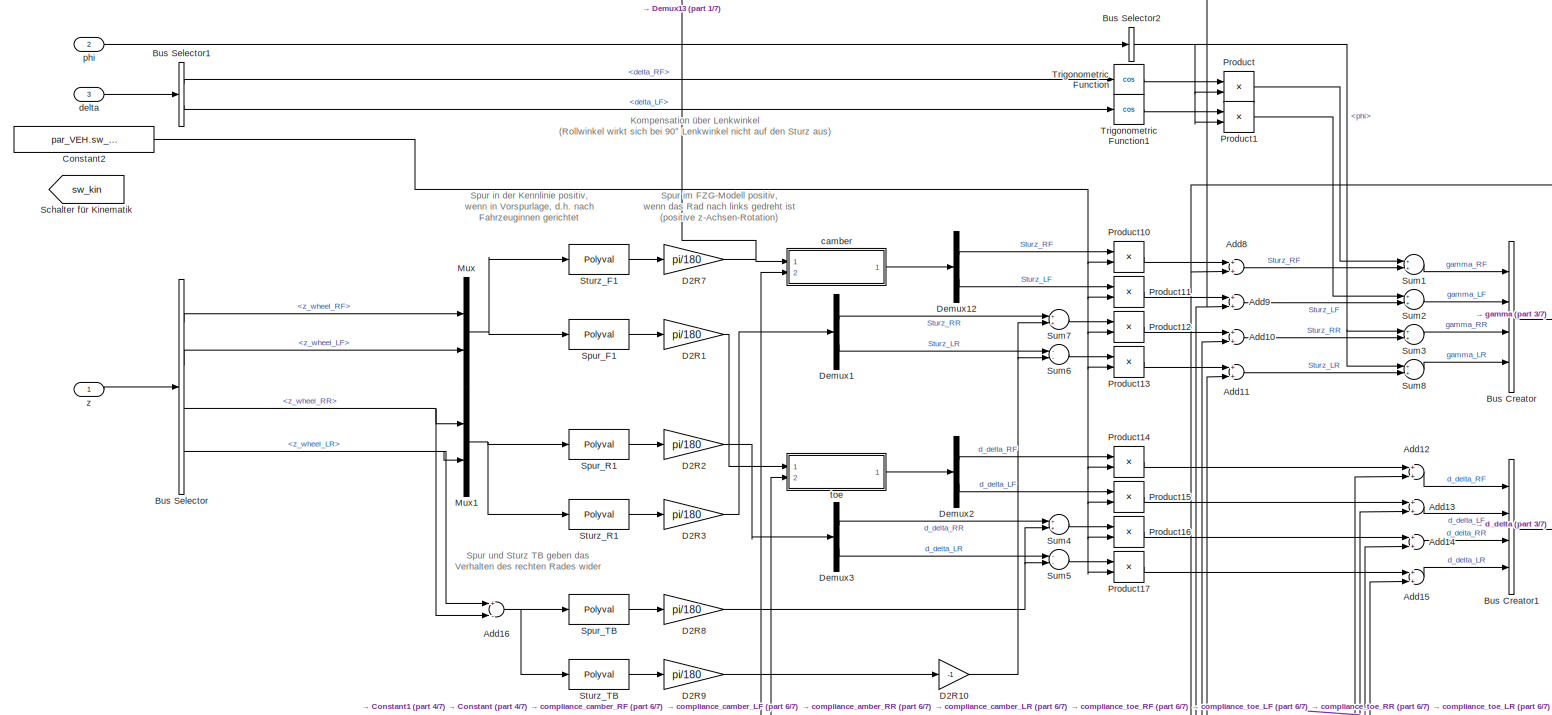
[diagram: body_chassis_vert/kinematics_compliance1 - part 2/7, full width, top band]
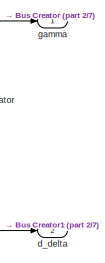
[diagram: body_chassis_vert/kinematics_compliance1 - part 3/7, top right region]
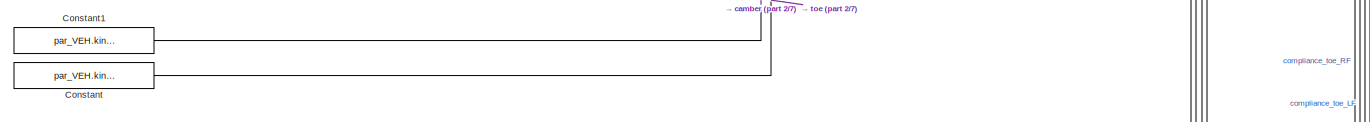
[diagram: body_chassis_vert/kinematics_compliance1 - part 4/7, central region]
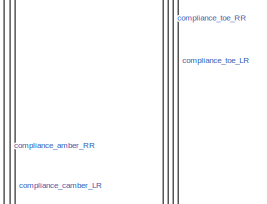
[diagram: body_chassis_vert/kinematics_compliance1 - part 5/7, middle right region]
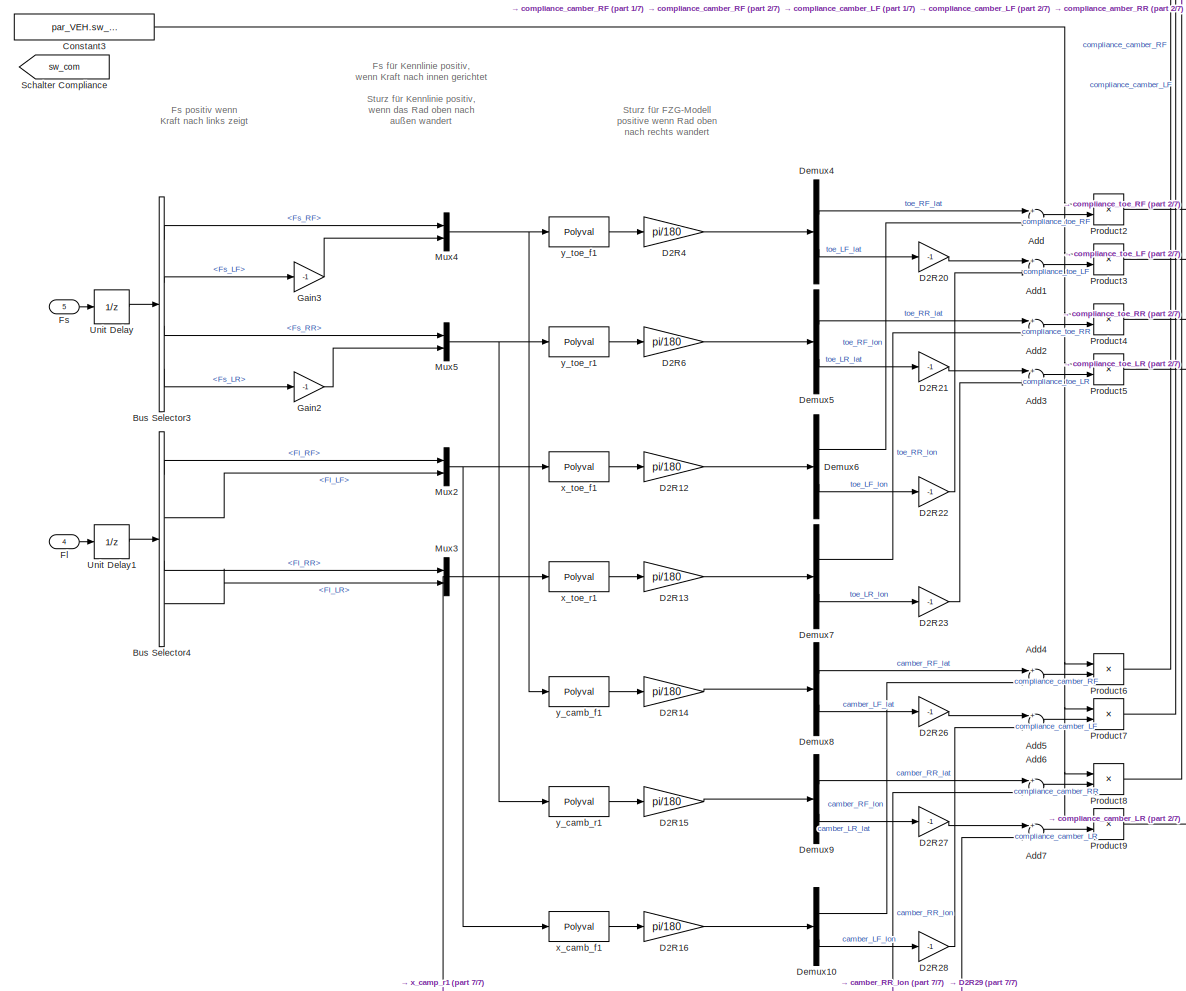
[diagram: body_chassis_vert/kinematics_compliance1 - part 6/7, bottom left region]
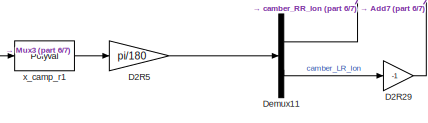
[diagram: body_chassis_vert/kinematics_compliance1 - part 7/7, bottom center region]
BLOCK [SubSystem] body_chassis_vert/kinematics_compliance1
  Ports = [5, 2]
  RequestExecContextInheritance = off
BLOCK [Sum] body_chassis_vert/kinematics_compliance1/Add
  InputSameDT = off
  OutDataTypeStr = Inherit: Inherit via internal rule
  Ports = [2, 1]
  SaturateOnIntegerOverflow = off
BLOCK [Sum] body_chassis_vert/kinematics_compliance1/Add1
  InputSameDT = off
  OutDataTypeStr = Inherit: Inherit via internal rule
  Ports = [2, 1]
  SaturateOnIntegerOverflow = off
BLOCK [Sum] body_chassis_vert/kinematics_compliance1/Add10
  InputSameDT = off
  OutDataTypeStr = Inherit: Inherit via internal rule
  Ports = [2, 1]
  SaturateOnIntegerOverflow = off
BLOCK [Sum] body_chassis_vert/kinematics_compliance1/Add11
  InputSameDT = off
  OutDataTypeStr = Inherit: Inherit via internal rule
  Ports = [2, 1]
  SaturateOnIntegerOverflow = off
BLOCK [Sum] body_chassis_vert/kinematics_compliance1/Add12
  InputSameDT = off
  OutDataTypeStr = Inherit: Inherit via internal rule
  Ports = [2, 1]
  SaturateOnIntegerOverflow = off
BLOCK [Sum] body_chassis_vert/kinematics_compliance1/Add13
  InputSameDT = off
  OutDataTypeStr = Inherit: Inherit via internal rule
  Ports = [2, 1]
  SaturateOnIntegerOverflow = off
BLOCK [Sum] body_chassis_vert/kinematics_compliance1/Add14
  InputSameDT = off
  OutDataTypeStr = Inherit: Inherit via internal rule
  Ports = [2, 1]
  SaturateOnIntegerOverflow = off
BLOCK [Sum] body_chassis_vert/kinematics_compliance1/Add15
  InputSameDT = off
  OutDataTypeStr = Inherit: Inherit via internal rule
  Ports = [2, 1]
  SaturateOnIntegerOverflow = off
BLOCK [Sum] body_chassis_vert/kinematics_compliance1/Add16
  InputSameDT = off
  Inputs = +-
  OutDataTypeStr = Inherit: Inherit via internal rule
  Ports = [2, 1]
  SaturateOnIntegerOverflow = off
BLOCK [Sum] body_chassis_vert/kinematics_compliance1/Add17
  InputSameDT = off
  OutDataTypeStr = Inherit: Inherit via internal rule
  Ports = [2, 1]
  SaturateOnIntegerOverflow = off
BLOCK [Sum] body_chassis_vert/kinematics_compliance1/Add18
  InputSameDT = off
  OutDataTypeStr = Inherit: Inherit via internal rule
  Ports = [2, 1]
  SaturateOnIntegerOverflow = off
BLOCK [Sum] body_chassis_vert/kinematics_compliance1/Add2
  InputSameDT = off
  OutDataTypeStr = Inherit: Inherit via internal rule
  Ports = [2, 1]
  SaturateOnIntegerOverflow = off
BLOCK [Sum] body_chassis_vert/kinematics_compliance1/Add3
  InputSameDT = off
  OutDataTypeStr = Inherit: Inherit via internal rule
  Ports = [2, 1]
  SaturateOnIntegerOverflow = off
BLOCK [Sum] body_chassis_vert/kinematics_compliance1/Add4
  InputSameDT = off
  OutDataTypeStr = Inherit: Inherit via internal rule
  Ports = [2, 1]
  SaturateOnIntegerOverflow = off
BLOCK [Sum] body_chassis_vert/kinematics_compliance1/Add5
  InputSameDT = off
  OutDataTypeStr = Inherit: Inherit via internal rule
  Ports = [2, 1]
  SaturateOnIntegerOverflow = off
BLOCK [Sum] body_chassis_vert/kinematics_compliance1/Add6
  InputSameDT = off
  OutDataTypeStr = Inherit: Inherit via internal rule
  Ports = [2, 1]
  SaturateOnIntegerOverflow = off
BLOCK [Sum] body_chassis_vert/kinematics_compliance1/Add7
  InputSameDT = off
  OutDataTypeStr = Inherit: Inherit via internal rule
  Ports = [2, 1]
  SaturateOnIntegerOverflow = off
BLOCK [Sum] body_chassis_vert/kinematics_compliance1/Add8
  InputSameDT = off
  OutDataTypeStr = Inherit: Inherit via internal rule
  Ports = [2, 1]
  SaturateOnIntegerOverflow = off
BLOCK [Sum] body_chassis_vert/kinematics_compliance1/Add9
  InputSameDT = off
  OutDataTypeStr = Inherit: Inherit via internal rule
  Ports = [2, 1]
  SaturateOnIntegerOverflow = off
BLOCK [BusCreator] body_chassis_vert/kinematics_compliance1/Bus Creator
  DisplayOption = bar
  InheritFromInputs = on
  Inputs = 4
  Ports = [4, 1]
BLOCK [BusCreator] body_chassis_vert/kinematics_compliance1/Bus Creator1
  DisplayOption = bar
  InheritFromInputs = on
  Inputs = 4
  Ports = [4, 1]
BLOCK [BusCreator] body_chassis_vert/kinematics_compliance1/Bus Creator2
  DisplayOption = bar
  InheritFromInputs = on
  Inputs = 2
  Ports = [2, 1]
BLOCK [BusSelector] body_chassis_vert/kinematics_compliance1/Bus Selector
  OutputAsBus = off
  OutputSignals = z_wheel_RF,z_wheel_LF,z_wheel_RR,z_wheel_LR
  Ports = [1, 4]
BLOCK [BusSelector] body_chassis_vert/kinematics_compliance1/Bus Selector1
  OutputAsBus = off
  OutputSignals = delta_RF,delta_LF
  Ports = [1, 2]
BLOCK [BusSelector] body_chassis_vert/kinematics_compliance1/Bus Selector2
  OutputAsBus = off
  OutputSignals = phi
  Ports = [1, 1]
BLOCK [BusSelector] body_chassis_vert/kinematics_compliance1/Bus Selector3
  OutputAsBus = off
  OutputSignals = Fs_RF,Fs_LF,Fs_RR,Fs_LR
  Ports = [1, 4]
BLOCK [BusSelector] body_chassis_vert/kinematics_compliance1/Bus Selector4
  OutputAsBus = off
  OutputSignals = Fl_RF,Fl_LF,Fl_RR,Fl_LR
  Ports = [1, 4]
BLOCK [Constant] body_chassis_vert/kinematics_compliance1/Constant
  Value = par_VEH.kin_lw_toe_f
BLOCK [Constant] body_chassis_vert/kinematics_compliance1/Constant1
  Value = par_VEH.kin_lw_camber_f
BLOCK [Constant] body_chassis_vert/kinematics_compliance1/Constant2
  Value = par_VEH.sw_kinematics
BLOCK [Constant] body_chassis_vert/kinematics_compliance1/Constant3
  Value = par_VEH.sw_compliance
BLOCK [Gain] body_chassis_vert/kinematics_compliance1/D2R1
  Gain = pi/180
  OutDataTypeStr = Inherit: Inherit via internal rule
  ParamDataTypeStr = Inherit: Inherit via internal rule
  SaturateOnIntegerOverflow = off
BLOCK [Gain] body_chassis_vert/kinematics_compliance1/D2R10
  Gain = -1
  OutDataTypeStr = Inherit: Inherit via internal rule
  ParamDataTypeStr = Inherit: Inherit via internal rule
  SaturateOnIntegerOverflow = off
BLOCK [Gain] body_chassis_vert/kinematics_compliance1/D2R12
  Gain = pi/180
  OutDataTypeStr = Inherit: Inherit via internal rule
  ParamDataTypeStr = Inherit: Inherit via internal rule
  SaturateOnIntegerOverflow = off
BLOCK [Gain] body_chassis_vert/kinematics_compliance1/D2R13
  Gain = pi/180
  OutDataTypeStr = Inherit: Inherit via internal rule
  ParamDataTypeStr = Inherit: Inherit via internal rule
  SaturateOnIntegerOverflow = off
BLOCK [Gain] body_chassis_vert/kinematics_compliance1/D2R14
  Gain = pi/180
  OutDataTypeStr = Inherit: Inherit via internal rule
  ParamDataTypeStr = Inherit: Inherit via internal rule
  SaturateOnIntegerOverflow = off
BLOCK [Gain] body_chassis_vert/kinematics_compliance1/D2R15
  Gain = pi/180
  OutDataTypeStr = Inherit: Inherit via internal rule
  ParamDataTypeStr = Inherit: Inherit via internal rule
  SaturateOnIntegerOverflow = off
BLOCK [Gain] body_chassis_vert/kinematics_compliance1/D2R16
  Gain = pi/180
  OutDataTypeStr = Inherit: Inherit via internal rule
  ParamDataTypeStr = Inherit: Inherit via internal rule
  SaturateOnIntegerOverflow = off
BLOCK [Gain] body_chassis_vert/kinematics_compliance1/D2R2
  Gain = pi/180
  OutDataTypeStr = Inherit: Inherit via internal rule
  ParamDataTypeStr = Inherit: Inherit via internal rule
  SaturateOnIntegerOverflow = off
BLOCK [Gain] body_chassis_vert/kinematics_compliance1/D2R20
  Gain = -1
  OutDataTypeStr = Inherit: Inherit via internal rule
  ParamDataTypeStr = Inherit: Inherit via internal rule
  SaturateOnIntegerOverflow = off
BLOCK [Gain] body_chassis_vert/kinematics_compliance1/D2R21
  Gain = -1
  OutDataTypeStr = Inherit: Inherit via internal rule
  ParamDataTypeStr = Inherit: Inherit via internal rule
  SaturateOnIntegerOverflow = off
BLOCK [Gain] body_chassis_vert/kinematics_compliance1/D2R22
  Gain = -1
  OutDataTypeStr = Inherit: Inherit via internal rule
  ParamDataTypeStr = Inherit: Inherit via internal rule
  SaturateOnIntegerOverflow = off
BLOCK [Gain] body_chassis_vert/kinematics_compliance1/D2R23
  Gain = -1
  OutDataTypeStr = Inherit: Inherit via internal rule
  ParamDataTypeStr = Inherit: Inherit via internal rule
  SaturateOnIntegerOverflow = off
BLOCK [Gain] body_chassis_vert/kinematics_compliance1/D2R26
  Gain = -1
  OutDataTypeStr = Inherit: Inherit via internal rule
  ParamDataTypeStr = Inherit: Inherit via internal rule
  SaturateOnIntegerOverflow = off
BLOCK [Gain] body_chassis_vert/kinematics_compliance1/D2R27
  Gain = -1
  OutDataTypeStr = Inherit: Inherit via internal rule
  ParamDataTypeStr = Inherit: Inherit via internal rule
  SaturateOnIntegerOverflow = off
BLOCK [Gain] body_chassis_vert/kinematics_compliance1/D2R28
  Gain = -1
  OutDataTypeStr = Inherit: Inherit via internal rule
  ParamDataTypeStr = Inherit: Inherit via internal rule
  SaturateOnIntegerOverflow = off
BLOCK [Gain] body_chassis_vert/kinematics_compliance1/D2R29
  Gain = -1
  OutDataTypeStr = Inherit: Inherit via internal rule
  ParamDataTypeStr = Inherit: Inherit via internal rule
  SaturateOnIntegerOverflow = off
BLOCK [Gain] body_chassis_vert/kinematics_compliance1/D2R3
  Gain = pi/180
  OutDataTypeStr = Inherit: Inherit via internal rule
  ParamDataTypeStr = Inherit: Inherit via internal rule
  SaturateOnIntegerOverflow = off
BLOCK [Gain] body_chassis_vert/kinematics_compliance1/D2R4
  Gain = pi/180
  OutDataTypeStr = Inherit: Inherit via internal rule
  ParamDataTypeStr = Inherit: Inherit via internal rule
  SaturateOnIntegerOverflow = off
BLOCK [Gain] body_chassis_vert/kinematics_compliance1/D2R5
  Gain = pi/180
  OutDataTypeStr = Inherit: Inherit via internal rule
  ParamDataTypeStr = Inherit: Inherit via internal rule
  SaturateOnIntegerOverflow = off
BLOCK [Gain] body_chassis_vert/kinematics_compliance1/D2R6
  Gain = pi/180
  OutDataTypeStr = Inherit: Inherit via internal rule
  ParamDataTypeStr = Inherit: Inherit via internal rule
  SaturateOnIntegerOverflow = off
BLOCK [Gain] body_chassis_vert/kinematics_compliance1/D2R7
  Gain = pi/180
  OutDataTypeStr = Inherit: Inherit via internal rule
  ParamDataTypeStr = Inherit: Inherit via internal rule
  SaturateOnIntegerOverflow = off
BLOCK [Gain] body_chassis_vert/kinematics_compliance1/D2R8
  Gain = pi/180
  OutDataTypeStr = Inherit: Inherit via internal rule
  ParamDataTypeStr = Inherit: Inherit via internal rule
  SaturateOnIntegerOverflow = off
BLOCK [Gain] body_chassis_vert/kinematics_compliance1/D2R9
  Gain = pi/180
  OutDataTypeStr = Inherit: Inherit via internal rule
  ParamDataTypeStr = Inherit: Inherit via internal rule
  SaturateOnIntegerOverflow = off
BLOCK [Demux] body_chassis_vert/kinematics_compliance1/Demux1
  DisplayOption = bar
  Outputs = 2
  Ports = [1, 2]
BLOCK [Demux] body_chassis_vert/kinematics_compliance1/Demux10
  DisplayOption = bar
  Outputs = 2
  Ports = [1, 2]
BLOCK [Demux] body_chassis_vert/kinematics_compliance1/Demux11
  DisplayOption = bar
  Outputs = 2
  Ports = [1, 2]
BLOCK [Demux] body_chassis_vert/kinematics_compliance1/Demux12
  DisplayOption = bar
  Outputs = 2
  Ports = [1, 2]
BLOCK [Demux] body_chassis_vert/kinematics_compliance1/Demux13
  DisplayOption = bar
  Outputs = 2
  Ports = [1, 2]
BLOCK [Demux] body_chassis_vert/kinematics_compliance1/Demux2
  DisplayOption = bar
  Outputs = 2
  Ports = [1, 2]
BLOCK [Demux] body_chassis_vert/kinematics_compliance1/Demux3
  DisplayOption = bar
  Outputs = 2
  Ports = [1, 2]
BLOCK [Demux] body_chassis_vert/kinematics_compliance1/Demux4
  DisplayOption = bar
  Outputs = 2
  Ports = [1, 2]
BLOCK [Demux] body_chassis_vert/kinematics_compliance1/Demux5
  DisplayOption = bar
  Outputs = 2
  Ports = [1, 2]
BLOCK [Demux] body_chassis_vert/kinematics_compliance1/Demux6
  DisplayOption = bar
  Outputs = 2
  Ports = [1, 2]
BLOCK [Demux] body_chassis_vert/kinematics_compliance1/Demux7
  DisplayOption = bar
  Outputs = 2
  Ports = [1, 2]
BLOCK [Demux] body_chassis_vert/kinematics_compliance1/Demux8
  DisplayOption = bar
  Outputs = 2
  Ports = [1, 2]
BLOCK [Demux] body_chassis_vert/kinematics_compliance1/Demux9
  DisplayOption = bar
  Outputs = 2
  Ports = [1, 2]
BLOCK [Inport] body_chassis_vert/kinematics_compliance1/Fl
  IconDisplay = Port number
  Port = 4
BLOCK [Inport] body_chassis_vert/kinematics_compliance1/Fs
  IconDisplay = Port number
  Port = 5
BLOCK [Gain] body_chassis_vert/kinematics_compliance1/Gain2
  Gain = -1
  OutDataTypeStr = Inherit: Inherit via internal rule
  ParamDataTypeStr = Inherit: Inherit via internal rule
  SaturateOnIntegerOverflow = off
BLOCK [Gain] body_chassis_vert/kinematics_compliance1/Gain3
  Gain = -1
  OutDataTypeStr = Inherit: Inherit via internal rule
  ParamDataTypeStr = Inherit: Inherit via internal rule
  SaturateOnIntegerOverflow = off
BLOCK [Goto] body_chassis_vert/kinematics_compliance1/Goto
  GotoTag = gamma_unsteered_tmp
  TagVisibility = global
BLOCK [Mux] body_chassis_vert/kinematics_compliance1/Mux
  DisplayOption = bar
  Inputs = 2
  Ports = [2, 1]
BLOCK [Mux] body_chassis_vert/kinematics_compliance1/Mux1
  DisplayOption = bar
  Inputs = 2
  Ports = [2, 1]
BLOCK [Mux] body_chassis_vert/kinematics_compliance1/Mux2
  DisplayOption = bar
  Inputs = 2
  Ports = [2, 1]
BLOCK [Mux] body_chassis_vert/kinematics_compliance1/Mux3
  DisplayOption = bar
  Inputs = 2
  Ports = [2, 1]
BLOCK [Mux] body_chassis_vert/kinematics_compliance1/Mux4
  DisplayOption = bar
  Inputs = 2
  Ports = [2, 1]
BLOCK [Mux] body_chassis_vert/kinematics_compliance1/Mux5
  DisplayOption = bar
  Inputs = 2
  Ports = [2, 1]
BLOCK [Product] body_chassis_vert/kinematics_compliance1/Product
  InputSameDT = off
  OutDataTypeStr = Inherit: Inherit via internal rule
  Ports = [2, 1]
  SaturateOnIntegerOverflow = off
BLOCK [Product] body_chassis_vert/kinematics_compliance1/Product1
  InputSameDT = off
  OutDataTypeStr = Inherit: Inherit via internal rule
  Ports = [2, 1]
  SaturateOnIntegerOverflow = off
BLOCK [Product] body_chassis_vert/kinematics_compliance1/Product10
  InputSameDT = off
  OutDataTypeStr = Inherit: Inherit via internal rule
  Ports = [2, 1]
  SaturateOnIntegerOverflow = off
BLOCK [Product] body_chassis_vert/kinematics_compliance1/Product11
  InputSameDT = off
  OutDataTypeStr = Inherit: Inherit via internal rule
  Ports = [2, 1]
  SaturateOnIntegerOverflow = off
BLOCK [Product] body_chassis_vert/kinematics_compliance1/Product12
  InputSameDT = off
  OutDataTypeStr = Inherit: Inherit via internal rule
  Ports = [2, 1]
  SaturateOnIntegerOverflow = off
BLOCK [Product] body_chassis_vert/kinematics_compliance1/Product13
  InputSameDT = off
  OutDataTypeStr = Inherit: Inherit via internal rule
  Ports = [2, 1]
  SaturateOnIntegerOverflow = off
BLOCK [Product] body_chassis_vert/kinematics_compliance1/Product14
  InputSameDT = off
  OutDataTypeStr = Inherit: Inherit via internal rule
  Ports = [2, 1]
  SaturateOnIntegerOverflow = off
BLOCK [Product] body_chassis_vert/kinematics_compliance1/Product15
  InputSameDT = off
  OutDataTypeStr = Inherit: Inherit via internal rule
  Ports = [2, 1]
  SaturateOnIntegerOverflow = off
BLOCK [Product] body_chassis_vert/kinematics_compliance1/Product16
  InputSameDT = off
  OutDataTypeStr = Inherit: Inherit via internal rule
  Ports = [2, 1]
  SaturateOnIntegerOverflow = off
BLOCK [Product] body_chassis_vert/kinematics_compliance1/Product17
  InputSameDT = off
  OutDataTypeStr = Inherit: Inherit via internal rule
  Ports = [2, 1]
  SaturateOnIntegerOverflow = off
BLOCK [Product] body_chassis_vert/kinematics_compliance1/Product2
  InputSameDT = off
  OutDataTypeStr = Inherit: Inherit via internal rule
  Ports = [2, 1]
  SaturateOnIntegerOverflow = off
BLOCK [Product] body_chassis_vert/kinematics_compliance1/Product3
  InputSameDT = off
  OutDataTypeStr = Inherit: Inherit via internal rule
  Ports = [2, 1]
  SaturateOnIntegerOverflow = off
BLOCK [Product] body_chassis_vert/kinematics_compliance1/Product4
  InputSameDT = off
  OutDataTypeStr = Inherit: Inherit via internal rule
  Ports = [2, 1]
  SaturateOnIntegerOverflow = off
BLOCK [Product] body_chassis_vert/kinematics_compliance1/Product5
  InputSameDT = off
  OutDataTypeStr = Inherit: Inherit via internal rule
  Ports = [2, 1]
  SaturateOnIntegerOverflow = off
BLOCK [Product] body_chassis_vert/kinematics_compliance1/Product6
  InputSameDT = off
  OutDataTypeStr = Inherit: Inherit via internal rule
  Ports = [2, 1]
  SaturateOnIntegerOverflow = off
BLOCK [Product] body_chassis_vert/kinematics_compliance1/Product7
  InputSameDT = off
  OutDataTypeStr = Inherit: Inherit via internal rule
  Ports = [2, 1]
  SaturateOnIntegerOverflow = off
BLOCK [Product] body_chassis_vert/kinematics_compliance1/Product8
  InputSameDT = off
  OutDataTypeStr = Inherit: Inherit via internal rule
  Ports = [2, 1]
  SaturateOnIntegerOverflow = off
BLOCK [Product] body_chassis_vert/kinematics_compliance1/Product9
  InputSameDT = off
  OutDataTypeStr = Inherit: Inherit via internal rule
  Ports = [2, 1]
  SaturateOnIntegerOverflow = off
BLOCK [From] body_chassis_vert/kinematics_compliance1/Schalter Compliance
  GotoTag = sw_com
  TagVisibility = scoped
BLOCK [From] body_chassis_vert/kinematics_compliance1/Schalter für Kinematik
  GotoTag = sw_kin
  TagVisibility = scoped
BLOCK [Polyval] body_chassis_vert/kinematics_compliance1/Spur_F1
  Coefs = par_VEH.kin_toe_f
BLOCK [Polyval] body_chassis_vert/kinematics_compliance1/Spur_R1
  Coefs = par_VEH.kin_toe_r
BLOCK [Polyval] body_chassis_vert/kinematics_compliance1/Spur_TB
  Coefs = par_VEH.elkin_toe_twistbeam
BLOCK [Polyval] body_chassis_vert/kinematics_compliance1/Sturz_F1
  Coefs = par_VEH.kin_camb_f
BLOCK [Polyval] body_chassis_vert/kinematics_compliance1/Sturz_R1
  Coefs = par_VEH.kin_camb_r
BLOCK [Polyval] body_chassis_vert/kinematics_compliance1/Sturz_TB
  Coefs = par_VEH.elkin_camb_twistbeam
BLOCK [Sum] body_chassis_vert/kinematics_compliance1/Sum1
  InputSameDT = off
  OutDataTypeStr = Inherit: Inherit via internal rule
  Ports = [2, 1]
  SaturateOnIntegerOverflow = off
BLOCK [Sum] body_chassis_vert/kinematics_compliance1/Sum2
  InputSameDT = off
  OutDataTypeStr = Inherit: Inherit via internal rule
  Ports = [2, 1]
  SaturateOnIntegerOverflow = off
BLOCK [Sum] body_chassis_vert/kinematics_compliance1/Sum3
  InputSameDT = off
  OutDataTypeStr = Inherit: Inherit via internal rule
  Ports = [2, 1]
  SaturateOnIntegerOverflow = off
BLOCK [Sum] body_chassis_vert/kinematics_compliance1/Sum4
  InputSameDT = off
  OutDataTypeStr = Inherit: Inherit via internal rule
  Ports = [2, 1]
  SaturateOnIntegerOverflow = off
BLOCK [Sum] body_chassis_vert/kinematics_compliance1/Sum5
  InputSameDT = off
  Inputs = --
  OutDataTypeStr = Inherit: Inherit via internal rule
  Ports = [2, 1]
  SaturateOnIntegerOverflow = off
BLOCK [Sum] body_chassis_vert/kinematics_compliance1/Sum6
  InputSameDT = off
  Inputs = --
  OutDataTypeStr = Inherit: Inherit via internal rule
  Ports = [2, 1]
  SaturateOnIntegerOverflow = off
BLOCK [Sum] body_chassis_vert/kinematics_compliance1/Sum7
  InputSameDT = off
  OutDataTypeStr = Inherit: Inherit via internal rule
  Ports = [2, 1]
  SaturateOnIntegerOverflow = off
BLOCK [Sum] body_chassis_vert/kinematics_compliance1/Sum8
  InputSameDT = off
  OutDataTypeStr = Inherit: Inherit via internal rule
  Ports = [2, 1]
  SaturateOnIntegerOverflow = off
BLOCK [Trigonometry] body_chassis_vert/kinematics_compliance1/Trigonometric Function
  Operator = cos
  Ports = [1, 1]
BLOCK [Trigonometry] body_chassis_vert/kinematics_compliance1/Trigonometric Function1
  Operator = cos
  Ports = [1, 1]
BLOCK [UnitDelay] body_chassis_vert/kinematics_compliance1/Unit Delay
  InputProcessing = Elements as channels (sample based)
  SampleTime = -1
BLOCK [UnitDelay] body_chassis_vert/kinematics_compliance1/Unit Delay1
  InputProcessing = Elements as channels (sample based)
  SampleTime = -1
BLOCK [SubSystem] body_chassis_vert/kinematics_compliance1/camber
  Ports = [2, 1]
  RequestExecContextInheritance = off
BLOCK [Sum] body_chassis_vert/kinematics_compliance1/camber/Add
  InputSameDT = off
  OutDataTypeStr = Inherit: Inherit via internal rule
  Ports = [2, 1]
  SaturateOnIntegerOverflow = off
BLOCK [Sum] body_chassis_vert/kinematics_compliance1/camber/Add1
  InputSameDT = off
  OutDataTypeStr = Inherit: Inherit via internal rule
  Ports = [2, 1]
  SaturateOnIntegerOverflow = off
BLOCK [Sum] body_chassis_vert/kinematics_compliance1/camber/Add2
  InputSameDT = off
  OutDataTypeStr = Inherit: Inherit via internal rule
  Ports = [2, 1]
  SaturateOnIntegerOverflow = off
BLOCK [Sum] body_chassis_vert/kinematics_compliance1/camber/Add3
  InputSameDT = off
  OutDataTypeStr = Inherit: Inherit via internal rule
  Ports = [2, 1]
  SaturateOnIntegerOverflow = off
BLOCK [Sum] body_chassis_vert/kinematics_compliance1/camber/Add4
  InputSameDT = off
  OutDataTypeStr = Inherit: Inherit via internal rule
  Ports = [2, 1]
  SaturateOnIntegerOverflow = off
BLOCK [Sum] body_chassis_vert/kinematics_compliance1/camber/Add5
  InputSameDT = off
  OutDataTypeStr = Inherit: Inherit via internal rule
  Ports = [2, 1]
  SaturateOnIntegerOverflow = off
BLOCK [Sum] body_chassis_vert/kinematics_compliance1/camber/Add6
  InputSameDT = off
  OutDataTypeStr = Inherit: Inherit via internal rule
  Ports = [2, 1]
  SaturateOnIntegerOverflow = off
BLOCK [Bias] body_chassis_vert/kinematics_compliance1/camber/Bias
  Bias = 1
  SaturateOnIntegerOverflow = off
BLOCK [Bias] body_chassis_vert/kinematics_compliance1/camber/Bias1
  Bias = 1
  SaturateOnIntegerOverflow = off
BLOCK [BusSelector] body_chassis_vert/kinematics_compliance1/camber/Bus Selector
  OutputAsBus = off
  OutputSignals = delta_RF,delta_LF
  Ports = [1, 2]
BLOCK [Demux] body_chassis_vert/kinematics_compliance1/camber/Demux
  DisplayOption = bar
  Ports = [1, 4]
BLOCK [Demux] body_chassis_vert/kinematics_compliance1/camber/Demux1
  DisplayOption = bar
  Outputs = 2
  Ports = [1, 2]
BLOCK [From] body_chassis_vert/kinematics_compliance1/camber/From
  GotoTag = delta_d
  TagVisibility = scoped
BLOCK [Gain] body_chassis_vert/kinematics_compliance1/camber/Gain
  Gain = 0.5
  OutDataTypeStr = Inherit: Inherit via internal rule
  ParamDataTypeStr = Inherit: Inherit via internal rule
  SaturateOnIntegerOverflow = off
BLOCK [Math] body_chassis_vert/kinematics_compliance1/camber/Math Function
  Operator = square
  Ports = [1, 1]
BLOCK [Mux] body_chassis_vert/kinematics_compliance1/camber/Mux
  DisplayOption = bar
  Inputs = 2
  Ports = [2, 1]
BLOCK [Product] body_chassis_vert/kinematics_compliance1/camber/Product1
  InputSameDT = off
  OutDataTypeStr = Inherit: Inherit via internal rule
  Ports = [2, 1]
  SaturateOnIntegerOverflow = off
BLOCK [Product] body_chassis_vert/kinematics_compliance1/camber/Product18
  InputSameDT = off
  OutDataTypeStr = Inherit: Inherit via internal rule
  Ports = [2, 1]
  SaturateOnIntegerOverflow = off
BLOCK [Product] body_chassis_vert/kinematics_compliance1/camber/Product2
  InputSameDT = off
  OutDataTypeStr = Inherit: Inherit via internal rule
  Ports = [2, 1]
  SaturateOnIntegerOverflow = off
BLOCK [Product] body_chassis_vert/kinematics_compliance1/camber/Product3
  InputSameDT = off
  OutDataTypeStr = Inherit: Inherit via internal rule
  Ports = [2, 1]
  SaturateOnIntegerOverflow = off
BLOCK [Product] body_chassis_vert/kinematics_compliance1/camber/Product4
  InputSameDT = off
  OutDataTypeStr = Inherit: Inherit via internal rule
  Ports = [2, 1]
  SaturateOnIntegerOverflow = off
BLOCK [Product] body_chassis_vert/kinematics_compliance1/camber/Product5
  InputSameDT = off
  OutDataTypeStr = Inherit: Inherit via internal rule
  Ports = [2, 1]
  SaturateOnIntegerOverflow = off
BLOCK [Product] body_chassis_vert/kinematics_compliance1/camber/Product6
  InputSameDT = off
  OutDataTypeStr = Inherit: Inherit via internal rule
  Ports = [2, 1]
  SaturateOnIntegerOverflow = off
BLOCK [Product] body_chassis_vert/kinematics_compliance1/camber/Product7
  InputSameDT = off
  OutDataTypeStr = Inherit: Inherit via internal rule
  Ports = [2, 1]
  SaturateOnIntegerOverflow = off
BLOCK [Product] body_chassis_vert/kinematics_compliance1/camber/Product8
  InputSameDT = off
  OutDataTypeStr = Inherit: Inherit via internal rule
  Ports = [2, 1]
  SaturateOnIntegerOverflow = off
BLOCK [Product] body_chassis_vert/kinematics_compliance1/camber/Product9
  InputSameDT = off
  OutDataTypeStr = Inherit: Inherit via internal rule
  Ports = [2, 1]
  SaturateOnIntegerOverflow = off
BLOCK [UnaryMinus] body_chassis_vert/kinematics_compliance1/camber/Unary Minus1
BLOCK [UnaryMinus] body_chassis_vert/kinematics_compliance1/camber/Unary Minus2
BLOCK [Inport] body_chassis_vert/kinematics_compliance1/camber/camber 
  IconDisplay = Port number
BLOCK [Inport] body_chassis_vert/kinematics_compliance1/camber/coefficients
  IconDisplay = Port number
  Port = 2
BLOCK [Outport] body_chassis_vert/kinematics_compliance1/camber/lw_corr
  IconDisplay = Port number
BLOCK [Outport] body_chassis_vert/kinematics_compliance1/d_delta
  IconDisplay = Port number
  Port = 2
BLOCK [Inport] body_chassis_vert/kinematics_compliance1/delta
  IconDisplay = Port number
  Port = 3
BLOCK [Outport] body_chassis_vert/kinematics_compliance1/gamma
  IconDisplay = Port number
BLOCK [Inport] body_chassis_vert/kinematics_compliance1/phi
  IconDisplay = Port number
  Port = 2
BLOCK [SubSystem] body_chassis_vert/kinematics_compliance1/toe
  Ports = [2, 1]
  RequestExecContextInheritance = off
BLOCK [Sum] body_chassis_vert/kinematics_compliance1/toe/Add
  InputSameDT = off
  OutDataTypeStr = Inherit: Inherit via internal rule
  Ports = [2, 1]
  SaturateOnIntegerOverflow = off
BLOCK [Sum] body_chassis_vert/kinematics_compliance1/toe/Add1
  InputSameDT = off
  OutDataTypeStr = Inherit: Inherit via internal rule
  Ports = [2, 1]
  SaturateOnIntegerOverflow = off
BLOCK [Sum] body_chassis_vert/kinematics_compliance1/toe/Add2
  InputSameDT = off
  OutDataTypeStr = Inherit: Inherit via internal rule
  Ports = [2, 1]
  SaturateOnIntegerOverflow = off
BLOCK [Sum] body_chassis_vert/kinematics_compliance1/toe/Add3
  InputSameDT = off
  OutDataTypeStr = Inherit: Inherit via internal rule
  Ports = [2, 1]
  SaturateOnIntegerOverflow = off
BLOCK [Sum] body_chassis_vert/kinematics_compliance1/toe/Add4
  InputSameDT = off
  OutDataTypeStr = Inherit: Inherit via internal rule
  Ports = [2, 1]
  SaturateOnIntegerOverflow = off
BLOCK [Sum] body_chassis_vert/kinematics_compliance1/toe/Add5
  InputSameDT = off
  OutDataTypeStr = Inherit: Inherit via internal rule
  Ports = [2, 1]
  SaturateOnIntegerOverflow = off
BLOCK [Sum] body_chassis_vert/kinematics_compliance1/toe/Add6
  InputSameDT = off
  OutDataTypeStr = Inherit: Inherit via internal rule
  Ports = [2, 1]
  SaturateOnIntegerOverflow = off
BLOCK [Bias] body_chassis_vert/kinematics_compliance1/toe/Bias
  Bias = 1
  SaturateOnIntegerOverflow = off
BLOCK [Bias] body_chassis_vert/kinematics_compliance1/toe/Bias1
  Bias = 1
  SaturateOnIntegerOverflow = off
BLOCK [BusSelector] body_chassis_vert/kinematics_compliance1/toe/Bus Selector
  OutputAsBus = off
  OutputSignals = delta_RF,delta_LF
  Ports = [1, 2]
BLOCK [Demux] body_chassis_vert/kinematics_compliance1/toe/Demux
  DisplayOption = bar
  Ports = [1, 4]
BLOCK [Demux] body_chassis_vert/kinematics_compliance1/toe/Demux1
  DisplayOption = bar
  Outputs = 2
  Ports = [1, 2]
BLOCK [From] body_chassis_vert/kinematics_compliance1/toe/From
  GotoTag = delta_d
  TagVisibility = scoped
BLOCK [Gain] body_chassis_vert/kinematics_compliance1/toe/Gain
  Gain = 0.5
  OutDataTypeStr = Inherit: Inherit via internal rule
  ParamDataTypeStr = Inherit: Inherit via internal rule
  SaturateOnIntegerOverflow = off
BLOCK [Math] body_chassis_vert/kinematics_compliance1/toe/Math Function
  Operator = square
  Ports = [1, 1]
BLOCK [Mux] body_chassis_vert/kinematics_compliance1/toe/Mux
  DisplayOption = bar
  Inputs = 2
  Ports = [2, 1]
BLOCK [Product] body_chassis_vert/kinematics_compliance1/toe/Product1
  InputSameDT = off
  OutDataTypeStr = Inherit: Inherit via internal rule
  Ports = [2, 1]
  SaturateOnIntegerOverflow = off
BLOCK [Product] body_chassis_vert/kinematics_compliance1/toe/Product18
  InputSameDT = off
  OutDataTypeStr = Inherit: Inherit via internal rule
  Ports = [2, 1]
  SaturateOnIntegerOverflow = off
BLOCK [Product] body_chassis_vert/kinematics_compliance1/toe/Product2
  InputSameDT = off
  OutDataTypeStr = Inherit: Inherit via internal rule
  Ports = [2, 1]
  SaturateOnIntegerOverflow = off
BLOCK [Product] body_chassis_vert/kinematics_compliance1/toe/Product3
  InputSameDT = off
  OutDataTypeStr = Inherit: Inherit via internal rule
  Ports = [2, 1]
  SaturateOnIntegerOverflow = off
BLOCK [Product] body_chassis_vert/kinematics_compliance1/toe/Product4
  InputSameDT = off
  OutDataTypeStr = Inherit: Inherit via internal rule
  Ports = [2, 1]
  SaturateOnIntegerOverflow = off
BLOCK [Product] body_chassis_vert/kinematics_compliance1/toe/Product5
  InputSameDT = off
  OutDataTypeStr = Inherit: Inherit via internal rule
  Ports = [2, 1]
  SaturateOnIntegerOverflow = off
BLOCK [Product] body_chassis_vert/kinematics_compliance1/toe/Product6
  InputSameDT = off
  OutDataTypeStr = Inherit: Inherit via internal rule
  Ports = [2, 1]
  SaturateOnIntegerOverflow = off
BLOCK [Product] body_chassis_vert/kinematics_compliance1/toe/Product7
  InputSameDT = off
  OutDataTypeStr = Inherit: Inherit via internal rule
  Ports = [2, 1]
  SaturateOnIntegerOverflow = off
BLOCK [Product] body_chassis_vert/kinematics_compliance1/toe/Product8
  InputSameDT = off
  OutDataTypeStr = Inherit: Inherit via internal rule
  Ports = [2, 1]
  SaturateOnIntegerOverflow = off
BLOCK [Product] body_chassis_vert/kinematics_compliance1/toe/Product9
  InputSameDT = off
  OutDataTypeStr = Inherit: Inherit via internal rule
  Ports = [2, 1]
  SaturateOnIntegerOverflow = off
BLOCK [UnaryMinus] body_chassis_vert/kinematics_compliance1/toe/Unary Minus
BLOCK [UnaryMinus] body_chassis_vert/kinematics_compliance1/toe/Unary Minus2
BLOCK [Inport] body_chassis_vert/kinematics_compliance1/toe/coefficients
  IconDisplay = Port number
  Port = 2
BLOCK [Outport] body_chassis_vert/kinematics_compliance1/toe/lw_corr
  IconDisplay = Port number
BLOCK [Inport] body_chassis_vert/kinematics_compliance1/toe/toe 
  IconDisplay = Port number
BLOCK [Polyval] body_chassis_vert/kinematics_compliance1/x_camb_f1
  Coefs = par_VEH.elkin_x_camb_f
BLOCK [Polyval] body_chassis_vert/kinematics_compliance1/x_camp_r1
  Coefs = par_VEH.elkin_x_camb_r
BLOCK [Polyval] body_chassis_vert/kinematics_compliance1/x_toe_f1
  Coefs = par_VEH.elkin_x_toe_f
BLOCK [Polyval] body_chassis_vert/kinematics_compliance1/x_toe_r1
  Coefs = par_VEH.elkin_x_toe_r
BLOCK [Polyval] body_chassis_vert/kinematics_compliance1/y_camb_f1
  Coefs = par_VEH.elkin_y_camb_f
BLOCK [Polyval] body_chassis_vert/kinematics_compliance1/y_camb_r1
  Coefs = par_VEH.elkin_y_camb_r
BLOCK [Polyval] body_chassis_vert/kinematics_compliance1/y_toe_f1
  Coefs = par_VEH.elkin_y_toe_f
BLOCK [Polyval] body_chassis_vert/kinematics_compliance1/y_toe_r1
  Coefs = par_VEH.elkin_y_toe_r
BLOCK [Inport] body_chassis_vert/kinematics_compliance1/z
  IconDisplay = Port number
BLOCK [Outport] body_chassis_vert/phi
  IconDisplay = Port number
  Port = 4
BLOCK [SubSystem] body_chassis_vert/pitch
  Ports = [5, 3]
  RequestExecContextInheritance = off
BLOCK [Sum] body_chassis_vert/pitch/Add
  InputSameDT = off
  OutDataTypeStr = Inherit: Inherit via internal rule
  Ports = [2, 1]
  SaturateOnIntegerOverflow = off
BLOCK [Sum] body_chassis_vert/pitch/Add1
  InputSameDT = off
  OutDataTypeStr = Inherit: Inherit via internal rule
  Ports = [2, 1]
  SaturateOnIntegerOverflow = off
BLOCK [Sum] body_chassis_vert/pitch/Add2
  InputSameDT = off
  Inputs = -+
  OutDataTypeStr = Inherit: Inherit via internal rule
  Ports = [2, 1]
  SaturateOnIntegerOverflow = off
BLOCK [Sum] body_chassis_vert/pitch/Add3
  InputSameDT = off
  OutDataTypeStr = Inherit: Inherit via internal rule
  Ports = [2, 1]
  SaturateOnIntegerOverflow = off
BLOCK [Sum] body_chassis_vert/pitch/Add4
  InputSameDT = off
  OutDataTypeStr = Inherit: Inherit via internal rule
  Ports = [2, 1]
  SaturateOnIntegerOverflow = off
BLOCK [Sum] body_chassis_vert/pitch/Add5
  InputSameDT = off
  Inputs = -+
  OutDataTypeStr = Inherit: Inherit via internal rule
  Ports = [2, 1]
  SaturateOnIntegerOverflow = off
BLOCK [Sum] body_chassis_vert/pitch/Add6
  InputSameDT = off
  Inputs = +-
  OutDataTypeStr = Inherit: Inherit via internal rule
  Ports = [2, 1]
  SaturateOnIntegerOverflow = off
BLOCK [Sum] body_chassis_vert/pitch/Add7
  InputSameDT = off
  OutDataTypeStr = Inherit: Inherit via internal rule
  Ports = [2, 1]
  SaturateOnIntegerOverflow = off
BLOCK [Sum] body_chassis_vert/pitch/Add9
  InputSameDT = off
  Inputs = ++++
  OutDataTypeStr = Inherit: Inherit via internal rule
  Ports = [4, 1]
  SaturateOnIntegerOverflow = off
BLOCK [BusCreator] body_chassis_vert/pitch/Bus Creator
  DisplayOption = bar
  InheritFromInputs = on
  Inputs = 4
  Ports = [4, 1]
BLOCK [BusCreator] body_chassis_vert/pitch/Bus Creator1
  DisplayOption = bar
  InheritFromInputs = on
  Inputs = 3
  Ports = [3, 1]
BLOCK [BusCreator] body_chassis_vert/pitch/Bus Creator2
  DisplayOption = bar
  InheritFromInputs = on
  Inputs = 3
  Ports = [3, 1]
BLOCK [BusCreator] body_chassis_vert/pitch/Bus Creator3
  DisplayOption = bar
  InheritFromInputs = on
  Inputs = 3
  Ports = [3, 1]
BLOCK [BusCreator] body_chassis_vert/pitch/Bus Creator4
  DisplayOption = bar
  InheritFromInputs = on
  Inputs = 3
  Ports = [3, 1]
BLOCK [BusCreator] body_chassis_vert/pitch/Bus Creator5
  DisplayOption = bar
  InheritFromInputs = on
  Inputs = 3
  Ports = [3, 1]
BLOCK [BusCreator] body_chassis_vert/pitch/Bus Creator6
  DisplayOption = bar
  InheritFromInputs = on
  Inputs = 4
  Ports = [4, 1]
BLOCK [BusSelector] body_chassis_vert/pitch/Bus Selector
  OutputAsBus = off
  OutputSignals = Fz_spring_RF,Fz_spring_LF,Fz_spring_RR,Fz_spring_LR
  Ports = [1, 4]
BLOCK [BusSelector] body_chassis_vert/pitch/Bus Selector1
  OutputAsBus = off
  OutputSignals = Fz_damper_RF,Fz_damper_LF,Fz_damper_RR,Fz_damper_LR
  Ports = [1, 4]
BLOCK [BusSelector] body_chassis_vert/pitch/Bus Selector2
  OutputAsBus = off
  OutputSignals = init_theta
  Ports = [1, 1]
BLOCK [BusSelector] body_chassis_vert/pitch/Bus Selector3
  OutputAsBus = off
  OutputSignals = r_stat_RF,r_stat_LF,r_stat_RR,r_stat_LR
  Ports = [1, 4]
BLOCK [DiscreteIntegrator] body_chassis_vert/pitch/Discrete-Time Integrator
  ExternalReset = sampled level
  ICPrevOutput = DiscIntNeverNeededParam
  ICPrevScaledInput = DiscIntNeverNeededParam
  InitialConditionSource = external
  Ports = [3, 1]
  SampleTime = stepsize
BLOCK [DiscreteIntegrator] body_chassis_vert/pitch/Discrete-Time Integrator1
  ExternalReset = sampled level
  ICPrevOutput = DiscIntNeverNeededParam
  ICPrevScaledInput = DiscIntNeverNeededParam
  Ports = [2, 1]
  SampleTime = stepsize
BLOCK [Product] body_chassis_vert/pitch/Divide
  InputSameDT = off
  Inputs = /*
  OutDataTypeStr = Inherit: Inherit via internal rule
  Ports = [2, 1]
  RndMeth = Floor
  SaturateOnIntegerOverflow = off
BLOCK [Product] body_chassis_vert/pitch/Divide1
  InputSameDT = off
  Inputs = */
  OutDataTypeStr = Inherit: Inherit via internal rule
  Ports = [2, 1]
  RndMeth = Floor
  SaturateOnIntegerOverflow = off
BLOCK [Outport] body_chassis_vert/pitch/F_kin_pitch
  IconDisplay = Port number
  Port = 3
BLOCK [From] body_chassis_vert/pitch/From
  GotoTag = lF
  TagVisibility = scoped
BLOCK [From] body_chassis_vert/pitch/From1
  GotoTag = reset
  TagVisibility = scoped
BLOCK [From] body_chassis_vert/pitch/From10
  GotoTag = lF
  TagVisibility = scoped
BLOCK [From] body_chassis_vert/pitch/From11
  GotoTag = lR
  TagVisibility = scoped
BLOCK [From] body_chassis_vert/pitch/From2
  GotoTag = zSP
  TagVisibility = scoped
BLOCK [From] body_chassis_vert/pitch/From3
  GotoTag = Iy
  TagVisibility = scoped
BLOCK [From] body_chassis_vert/pitch/From4
  GotoTag = lR
  TagVisibility = scoped
BLOCK [From] body_chassis_vert/pitch/From5
  GotoTag = m
  TagVisibility = scoped
BLOCK [From] body_chassis_vert/pitch/From6
  GotoTag = m
  TagVisibility = scoped
BLOCK [From] body_chassis_vert/pitch/From7
  GotoTag = zPC
  TagVisibility = scoped
BLOCK [From] body_chassis_vert/pitch/From8
  GotoTag = zPC
  TagVisibility = scoped
BLOCK [From] body_chassis_vert/pitch/From9
  GotoTag = l
  TagVisibility = scoped
BLOCK [Inport] body_chassis_vert/pitch/Fz_damper
  IconDisplay = Port number
  Port = 4
BLOCK [Inport] body_chassis_vert/pitch/Fz_spring
  IconDisplay = Port number
  Port = 3
BLOCK [Gain] body_chassis_vert/pitch/Gain
  Gain = 0.5
  OutDataTypeStr = Inherit: Inherit via internal rule
  ParamDataTypeStr = Inherit: Inherit via internal rule
  SaturateOnIntegerOverflow = off
BLOCK [Gain] body_chassis_vert/pitch/Gain4
  Gain = 0.25
  OutDataTypeStr = Inherit: Inherit via internal rule
  ParamDataTypeStr = Inherit: Inherit via internal rule
  SaturateOnIntegerOverflow = off
BLOCK [Product] body_chassis_vert/pitch/Product
  InputSameDT = off
  Inputs = 3
  OutDataTypeStr = Inherit: Inherit via internal rule
  Ports = [3, 1]
  SaturateOnIntegerOverflow = off
BLOCK [Product] body_chassis_vert/pitch/Product1
  InputSameDT = off
  OutDataTypeStr = Inherit: Inherit via internal rule
  Ports = [2, 1]
  SaturateOnIntegerOverflow = off
BLOCK [Product] body_chassis_vert/pitch/Product10
  InputSameDT = off
  OutDataTypeStr = Inherit: Inherit via internal rule
  Ports = [2, 1]
  SaturateOnIntegerOverflow = off
BLOCK [Product] body_chassis_vert/pitch/Product11
  InputSameDT = off
  OutDataTypeStr = Inherit: Inherit via internal rule
  Ports = [2, 1]
  SaturateOnIntegerOverflow = off
BLOCK [Product] body_chassis_vert/pitch/Product2
  InputSameDT = off
  OutDataTypeStr = Inherit: Inherit via internal rule
  Ports = [2, 1]
  SaturateOnIntegerOverflow = off
BLOCK [Product] body_chassis_vert/pitch/Product3
  InputSameDT = off
  OutDataTypeStr = Inherit: Inherit via internal rule
  Ports = [2, 1]
  SaturateOnIntegerOverflow = off
BLOCK [Product] body_chassis_vert/pitch/Product4
  InputSameDT = off
  OutDataTypeStr = Inherit: Inherit via internal rule
  Ports = [2, 1]
  SaturateOnIntegerOverflow = off
BLOCK [Product] body_chassis_vert/pitch/Product5
  InputSameDT = off
  Inputs = 3
  OutDataTypeStr = Inherit: Inherit via internal rule
  Ports = [3, 1]
  SaturateOnIntegerOverflow = off
BLOCK [Product] body_chassis_vert/pitch/Product6
  InputSameDT = off
  OutDataTypeStr = Inherit: Inherit via internal rule
  Ports = [2, 1]
  SaturateOnIntegerOverflow = off
BLOCK [Product] body_chassis_vert/pitch/Product7
  InputSameDT = off
  OutDataTypeStr = Inherit: Inherit via internal rule
  Ports = [2, 1]
  SaturateOnIntegerOverflow = off
BLOCK [Product] body_chassis_vert/pitch/Product8
  InputSameDT = off
  OutDataTypeStr = Inherit: Inherit via internal rule
  Ports = [2, 1]
  SaturateOnIntegerOverflow = off
BLOCK [Product] body_chassis_vert/pitch/Product9
  InputSameDT = off
  OutDataTypeStr = Inherit: Inherit via internal rule
  Ports = [2, 1]
  SaturateOnIntegerOverflow = off
BLOCK [SignalConversion] body_chassis_vert/pitch/Signal Conversion
  OverrideOpt = off
BLOCK [SignalConversion] body_chassis_vert/pitch/Signal Conversion1
  OverrideOpt = off
BLOCK [SignalConversion] body_chassis_vert/pitch/Signal Conversion2
  OverrideOpt = off
BLOCK [SignalConversion] body_chassis_vert/pitch/Signal Conversion3
  OverrideOpt = off
BLOCK [SignalConversion] body_chassis_vert/pitch/Signal Conversion4
  OverrideOpt = off
BLOCK [SignalConversion] body_chassis_vert/pitch/Signal Conversion5
  OverrideOpt = off
BLOCK [SignalConversion] body_chassis_vert/pitch/Signal Conversion6
  OverrideOpt = off
BLOCK [SignalConversion] body_chassis_vert/pitch/Signal Conversion7
  OverrideOpt = off
BLOCK [Sum] body_chassis_vert/pitch/Sum
  InputSameDT = off
  Inputs = -++
  OutDataTypeStr = Inherit: Inherit via internal rule
  Ports = [3, 1]
  SaturateOnIntegerOverflow = off
BLOCK [UnaryMinus] body_chassis_vert/pitch/Unary Minus
BLOCK [UnaryMinus] body_chassis_vert/pitch/Unary Minus1
BLOCK [UnaryMinus] body_chassis_vert/pitch/Unary Minus2
BLOCK [UnaryMinus] body_chassis_vert/pitch/Unary Minus3
BLOCK [Inport] body_chassis_vert/pitch/ax
  IconDisplay = Port number
BLOCK [Inport] body_chassis_vert/pitch/init_pos
  IconDisplay = Port number
  Port = 5
BLOCK [Outport] body_chassis_vert/pitch/pitch_body
  IconDisplay = Port number
BLOCK [Inport] body_chassis_vert/pitch/rstat
  IconDisplay = Port number
  Port = 2
BLOCK [Outport] body_chassis_vert/pitch/z_body_pitch
  IconDisplay = Port number
  Port = 2
BLOCK [Outport] body_chassis_vert/psi
  IconDisplay = Port number
  Port = 9
BLOCK [Inport] body_chassis_vert/r_stat
  IconDisplay = Port number
  Port = 6
BLOCK [Inport] body_chassis_vert/rho_air
  IconDisplay = Port number
  Port = 2
BLOCK [SubSystem] body_chassis_vert/road_orientation
  Ports = [1, 2]
  RequestExecContextInheritance = off
BLOCK [BusSelector] body_chassis_vert/road_orientation/Bus Selector1
  OutputAsBus = off
  OutputSignals = zroad_RF,zroad_LF,zroad_RR,zroad_LR
  Ports = [1, 4]
BLOCK [Product] body_chassis_vert/road_orientation/Divide7
  InputSameDT = off
  Inputs = */
  OutDataTypeStr = Inherit: Inherit via internal rule
  Ports = [2, 1]
  RndMeth = Floor
  SaturateOnIntegerOverflow = off
BLOCK [Product] body_chassis_vert/road_orientation/Divide8
  InputSameDT = off
  Inputs = */
  OutDataTypeStr = Inherit: Inherit via internal rule
  Ports = [2, 1]
  RndMeth = Floor
  SaturateOnIntegerOverflow = off
BLOCK [From] body_chassis_vert/road_orientation/From
  GotoTag = sF05
  TagVisibility = scoped
BLOCK [From] body_chassis_vert/road_orientation/From1
  GotoTag = ySP
  TagVisibility = scoped
BLOCK [From] body_chassis_vert/road_orientation/From2
  GotoTag = sF
  TagVisibility = scoped
BLOCK [From] body_chassis_vert/road_orientation/From3
  GotoTag = sR05
  TagVisibility = scoped
BLOCK [From] body_chassis_vert/road_orientation/From4
  GotoTag = sR
  TagVisibility = scoped
BLOCK [From] body_chassis_vert/road_orientation/From5
  GotoTag = l
  TagVisibility = scoped
BLOCK [From] body_chassis_vert/road_orientation/From6
  GotoTag = lF
  TagVisibility = scoped
BLOCK [Gain] body_chassis_vert/road_orientation/Gain
  Gain = 0.5
  OutDataTypeStr = Inherit: Inherit via internal rule
  ParamDataTypeStr = Inherit: Inherit via internal rule
  SaturateOnIntegerOverflow = off
BLOCK [Gain] body_chassis_vert/road_orientation/Gain1
  Gain = 0.5
  OutDataTypeStr = Inherit: Inherit via internal rule
  ParamDataTypeStr = Inherit: Inherit via internal rule
  SaturateOnIntegerOverflow = off
BLOCK [Gain] body_chassis_vert/road_orientation/Gain2
  Gain = 0.5
  OutDataTypeStr = Inherit: Inherit via internal rule
  ParamDataTypeStr = Inherit: Inherit via internal rule
  SaturateOnIntegerOverflow = off
BLOCK [Gain] body_chassis_vert/road_orientation/Gain3
  Gain = 0.5
  OutDataTypeStr = Inherit: Inherit via internal rule
  ParamDataTypeStr = Inherit: Inherit via internal rule
  SaturateOnIntegerOverflow = off
BLOCK [Gain] body_chassis_vert/road_orientation/Gain4
  Gain = 0.5
  OutDataTypeStr = Inherit: Inherit via internal rule
  ParamDataTypeStr = Inherit: Inherit via internal rule
  SaturateOnIntegerOverflow = off
BLOCK [Sum] body_chassis_vert/road_orientation/Subtract14
  InputSameDT = off
  OutDataTypeStr = Inherit: Inherit via internal rule
  Ports = [2, 1]
  SaturateOnIntegerOverflow = off
BLOCK [Sum] body_chassis_vert/road_orientation/Subtract15
  InputSameDT = off
  OutDataTypeStr = Inherit: Inherit via internal rule
  Ports = [2, 1]
  SaturateOnIntegerOverflow = off
BLOCK [Sum] body_chassis_vert/road_orientation/Subtract16
  InputSameDT = off
  Inputs = -+
  OutDataTypeStr = Inherit: Inherit via internal rule
  Ports = [2, 1]
  SaturateOnIntegerOverflow = off
BLOCK [Sum] body_chassis_vert/road_orientation/Subtract17
  InputSameDT = off
  OutDataTypeStr = Inherit: Inherit via internal rule
  Ports = [2, 1]
  SaturateOnIntegerOverflow = off
BLOCK [Sum] body_chassis_vert/road_orientation/Subtract18
  InputSameDT = off
  OutDataTypeStr = Inherit: Inherit via internal rule
  Ports = [2, 1]
  SaturateOnIntegerOverflow = off
BLOCK [Sum] body_chassis_vert/road_orientation/Subtract19
  InputSameDT = off
  OutDataTypeStr = Inherit: Inherit via internal rule
  Ports = [2, 1]
  SaturateOnIntegerOverflow = off
BLOCK [Sum] body_chassis_vert/road_orientation/Subtract20
  InputSameDT = off
  Inputs = +-
  OutDataTypeStr = Inherit: Inherit via internal rule
  Ports = [2, 1]
  SaturateOnIntegerOverflow = off
BLOCK [Trigonometry] body_chassis_vert/road_orientation/Trigonometric Function
  Operator = asin
  Ports = [1, 1]
BLOCK [Trigonometry] body_chassis_vert/road_orientation/Trigonometric Function1
  Operator = asin
  Ports = [1, 1]
BLOCK [Outport] body_chassis_vert/road_orientation/phi_road
  IconDisplay = Port number
BLOCK [Outport] body_chassis_vert/road_orientation/theta_road
  IconDisplay = Port number
  Port = 2
BLOCK [Inport] body_chassis_vert/road_orientation/zroad
  IconDisplay = Port number
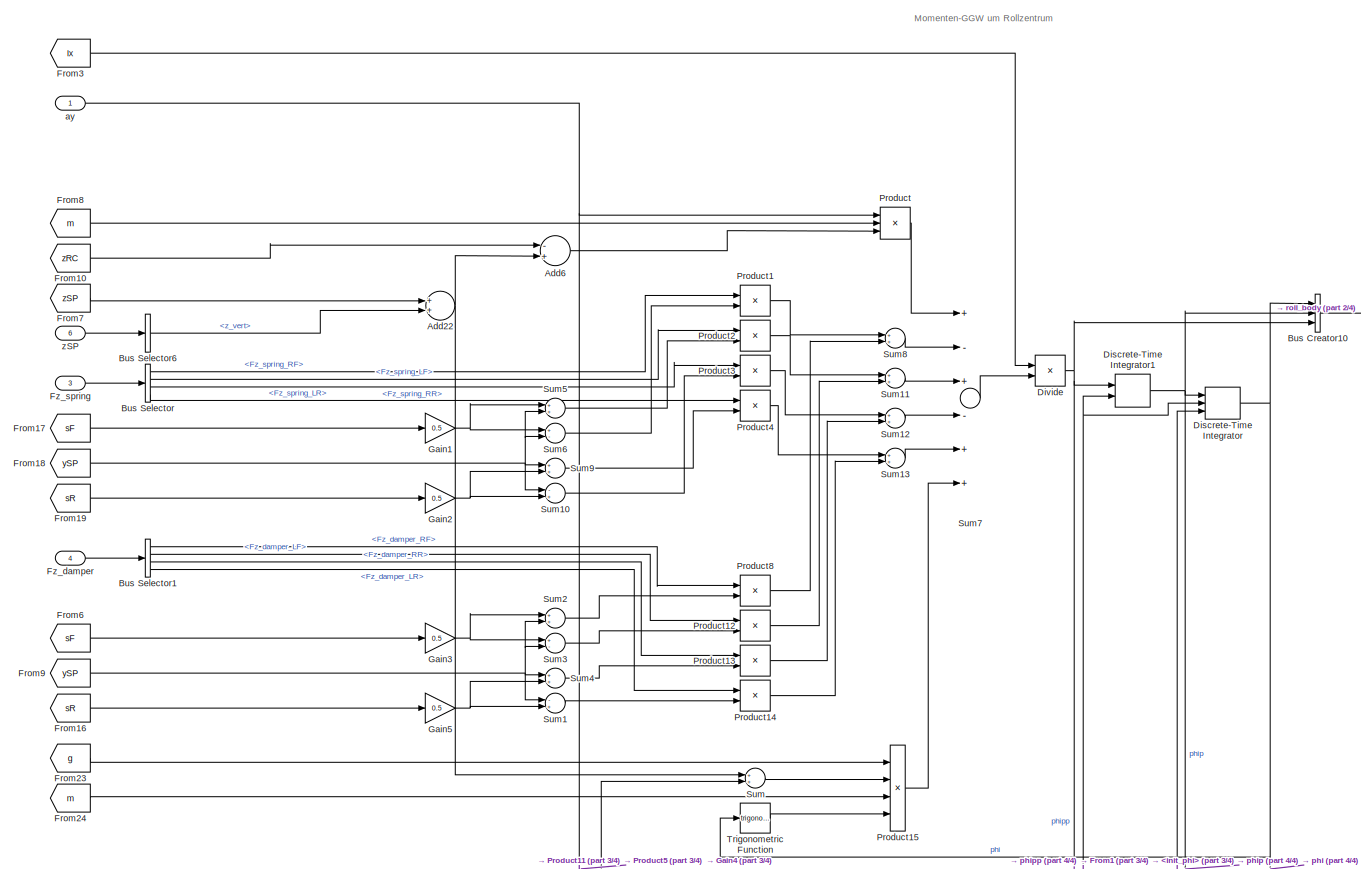
[diagram: body_chassis_vert/roll - part 1/4, top center region]
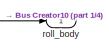
[diagram: body_chassis_vert/roll - part 2/4, top right region]
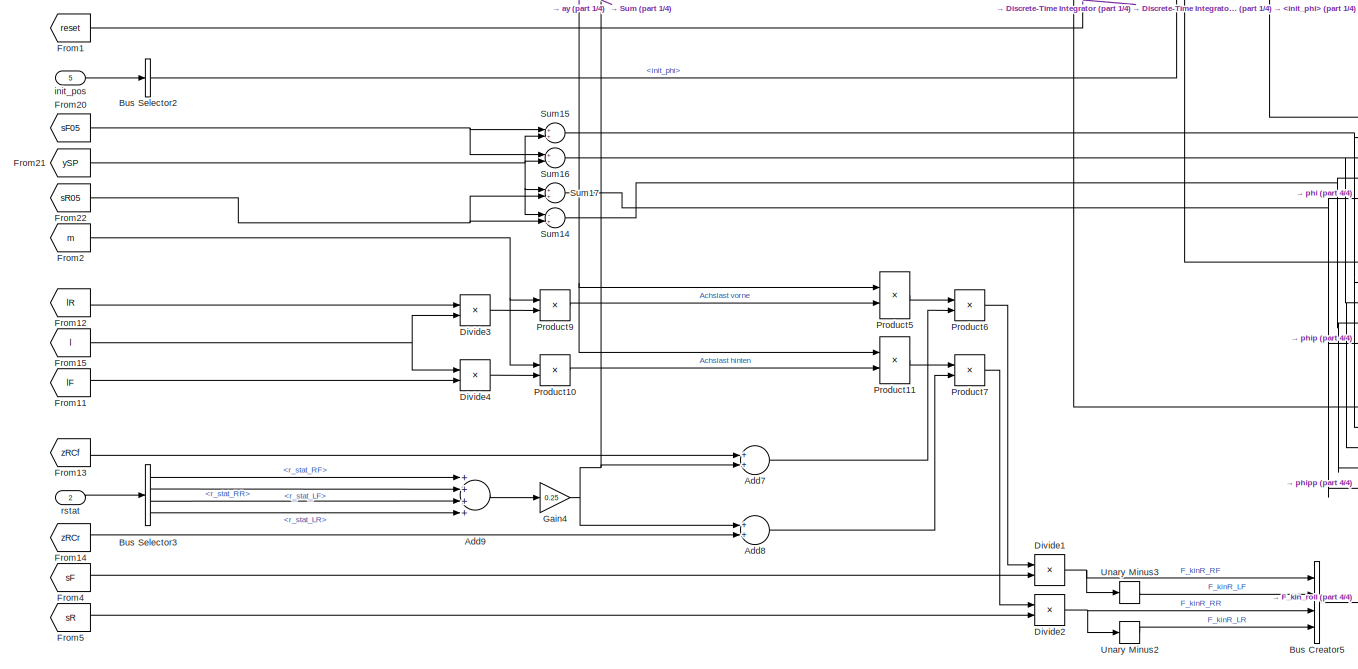
[diagram: body_chassis_vert/roll - part 3/4, bottom center region]
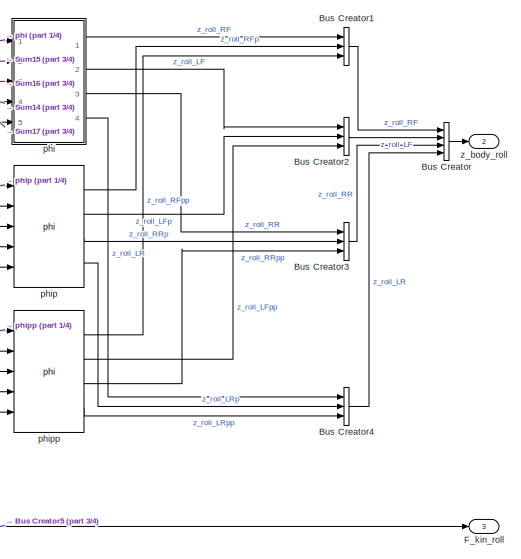
[diagram: body_chassis_vert/roll - part 4/4, bottom right region]
BLOCK [SubSystem] body_chassis_vert/roll
  Ports = [6, 3]
  RequestExecContextInheritance = off
BLOCK [Sum] body_chassis_vert/roll/Add22
  InputSameDT = off
  OutDataTypeStr = Inherit: Inherit via internal rule
  Ports = [2, 1]
  SaturateOnIntegerOverflow = off
BLOCK [Sum] body_chassis_vert/roll/Add6
  InputSameDT = off
  Inputs = -+
  OutDataTypeStr = Inherit: Inherit via internal rule
  Ports = [2, 1]
  SaturateOnIntegerOverflow = off
BLOCK [Sum] body_chassis_vert/roll/Add7
  InputSameDT = off
  OutDataTypeStr = Inherit: Inherit via internal rule
  Ports = [2, 1]
  SaturateOnIntegerOverflow = off
BLOCK [Sum] body_chassis_vert/roll/Add8
  InputSameDT = off
  OutDataTypeStr = Inherit: Inherit via internal rule
  Ports = [2, 1]
  SaturateOnIntegerOverflow = off
BLOCK [Sum] body_chassis_vert/roll/Add9
  InputSameDT = off
  Inputs = ++++
  OutDataTypeStr = Inherit: Inherit via internal rule
  Ports = [4, 1]
  SaturateOnIntegerOverflow = off
BLOCK [BusCreator] body_chassis_vert/roll/Bus Creator
  DisplayOption = bar
  InheritFromInputs = on
  Inputs = 4
  Ports = [4, 1]
BLOCK [BusCreator] body_chassis_vert/roll/Bus Creator1
  DisplayOption = bar
  InheritFromInputs = on
  Inputs = 3
  Ports = [3, 1]
BLOCK [BusCreator] body_chassis_vert/roll/Bus Creator10
  DisplayOption = bar
  InheritFromInputs = on
  Inputs = 3
  Ports = [3, 1]
BLOCK [BusCreator] body_chassis_vert/roll/Bus Creator2
  DisplayOption = bar
  InheritFromInputs = on
  Inputs = 3
  Ports = [3, 1]
BLOCK [BusCreator] body_chassis_vert/roll/Bus Creator3
  DisplayOption = bar
  InheritFromInputs = on
  Inputs = 3
  Ports = [3, 1]
BLOCK [BusCreator] body_chassis_vert/roll/Bus Creator4
  DisplayOption = bar
  InheritFromInputs = on
  Inputs = 3
  Ports = [3, 1]
BLOCK [BusCreator] body_chassis_vert/roll/Bus Creator5
  DisplayOption = bar
  InheritFromInputs = on
  Inputs = 4
  Ports = [4, 1]
BLOCK [BusSelector] body_chassis_vert/roll/Bus Selector
  OutputAsBus = off
  OutputSignals = Fz_spring_RF,Fz_spring_LF,Fz_spring_RR,Fz_spring_LR
  Ports = [1, 4]
BLOCK [BusSelector] body_chassis_vert/roll/Bus Selector1
  OutputAsBus = off
  OutputSignals = Fz_damper_RF,Fz_damper_LF,Fz_damper_RR,Fz_damper_LR
  Ports = [1, 4]
BLOCK [BusSelector] body_chassis_vert/roll/Bus Selector2
  OutputAsBus = off
  OutputSignals = init_phi
  Ports = [1, 1]
BLOCK [BusSelector] body_chassis_vert/roll/Bus Selector3
  OutputAsBus = off
  OutputSignals = r_stat_RF,r_stat_LF,r_stat_RR,r_stat_LR
  Ports = [1, 4]
BLOCK [BusSelector] body_chassis_vert/roll/Bus Selector6
  OutputAsBus = off
  OutputSignals = z_vert
  Ports = [1, 1]
BLOCK [DiscreteIntegrator] body_chassis_vert/roll/Discrete-Time Integrator
  ExternalReset = sampled level
  ICPrevOutput = DiscIntNeverNeededParam
  ICPrevScaledInput = DiscIntNeverNeededParam
  InitialCondition = phi0
  InitialConditionSource = external
  Ports = [3, 1]
  SampleTime = stepsize
BLOCK [DiscreteIntegrator] body_chassis_vert/roll/Discrete-Time Integrator1
  ExternalReset = sampled level
  ICPrevOutput = DiscIntNeverNeededParam
  ICPrevScaledInput = DiscIntNeverNeededParam
  Ports = [2, 1]
  SampleTime = stepsize
BLOCK [Product] body_chassis_vert/roll/Divide
  InputSameDT = off
  Inputs = /*
  OutDataTypeStr = Inherit: Inherit via internal rule
  Ports = [2, 1]
  RndMeth = Floor
  SaturateOnIntegerOverflow = off
BLOCK [Product] body_chassis_vert/roll/Divide1
  InputSameDT = off
  Inputs = */
  OutDataTypeStr = Inherit: Inherit via internal rule
  Ports = [2, 1]
  RndMeth = Floor
  SaturateOnIntegerOverflow = off
BLOCK [Product] body_chassis_vert/roll/Divide2
  InputSameDT = off
  Inputs = */
  OutDataTypeStr = Inherit: Inherit via internal rule
  Ports = [2, 1]
  RndMeth = Floor
  SaturateOnIntegerOverflow = off
BLOCK [Product] body_chassis_vert/roll/Divide3
  InputSameDT = off
  Inputs = */
  OutDataTypeStr = Inherit: Inherit via internal rule
  Ports = [2, 1]
  RndMeth = Floor
  SaturateOnIntegerOverflow = off
BLOCK [Product] body_chassis_vert/roll/Divide4
  InputSameDT = off
  Inputs = /*
  OutDataTypeStr = Inherit: Inherit via internal rule
  Ports = [2, 1]
  RndMeth = Floor
  SaturateOnIntegerOverflow = off
BLOCK [Outport] body_chassis_vert/roll/F_kin_roll
  IconDisplay = Port number
  Port = 3
BLOCK [From] body_chassis_vert/roll/From1
  GotoTag = reset
  TagVisibility = scoped
BLOCK [From] body_chassis_vert/roll/From10
  GotoTag = zRC
  TagVisibility = scoped
BLOCK [From] body_chassis_vert/roll/From11
  GotoTag = lF
  TagVisibility = scoped
BLOCK [From] body_chassis_vert/roll/From12
  GotoTag = lR
  TagVisibility = scoped
BLOCK [From] body_chassis_vert/roll/From13
  GotoTag = zRCf
  TagVisibility = scoped
BLOCK [From] body_chassis_vert/roll/From14
  GotoTag = zRCr
  TagVisibility = scoped
BLOCK [From] body_chassis_vert/roll/From15
  GotoTag = l
  TagVisibility = scoped
BLOCK [From] body_chassis_vert/roll/From16
  GotoTag = sR
  TagVisibility = scoped
BLOCK [From] body_chassis_vert/roll/From17
  GotoTag = sF
  TagVisibility = scoped
BLOCK [From] body_chassis_vert/roll/From18
  GotoTag = ySP
  TagVisibility = scoped
BLOCK [From] body_chassis_vert/roll/From19
  GotoTag = sR
  TagVisibility = scoped
BLOCK [From] body_chassis_vert/roll/From2
  GotoTag = m
  TagVisibility = scoped
BLOCK [From] body_chassis_vert/roll/From20
  GotoTag = sF05
  TagVisibility = scoped
BLOCK [From] body_chassis_vert/roll/From21
  GotoTag = ySP
  TagVisibility = scoped
BLOCK [From] body_chassis_vert/roll/From22
  GotoTag = sR05
  TagVisibility = scoped
BLOCK [From] body_chassis_vert/roll/From23
  GotoTag = g
  TagVisibility = scoped
BLOCK [From] body_chassis_vert/roll/From24
  GotoTag = m
  TagVisibility = scoped
BLOCK [From] body_chassis_vert/roll/From3
  GotoTag = Ix
  TagVisibility = scoped
BLOCK [From] body_chassis_vert/roll/From4
  GotoTag = sF
  TagVisibility = scoped
BLOCK [From] body_chassis_vert/roll/From5
  GotoTag = sR
  TagVisibility = scoped
BLOCK [From] body_chassis_vert/roll/From6
  GotoTag = sF
  TagVisibility = scoped
BLOCK [From] body_chassis_vert/roll/From7
  GotoTag = zSP
  TagVisibility = scoped
BLOCK [From] body_chassis_vert/roll/From8
  GotoTag = m
  TagVisibility = scoped
BLOCK [From] body_chassis_vert/roll/From9
  GotoTag = ySP
  TagVisibility = scoped
BLOCK [Inport] body_chassis_vert/roll/Fz_damper
  IconDisplay = Port number
  Port = 4
BLOCK [Inport] body_chassis_vert/roll/Fz_spring
  IconDisplay = Port number
  Port = 3
BLOCK [Gain] body_chassis_vert/roll/Gain1
  Gain = 0.5
  OutDataTypeStr = Inherit: Inherit via internal rule
  ParamDataTypeStr = Inherit: Inherit via internal rule
  SaturateOnIntegerOverflow = off
BLOCK [Gain] body_chassis_vert/roll/Gain2
  Gain = 0.5
  OutDataTypeStr = Inherit: Inherit via internal rule
  ParamDataTypeStr = Inherit: Inherit via internal rule
  SaturateOnIntegerOverflow = off
BLOCK [Gain] body_chassis_vert/roll/Gain3
  Gain = 0.5
  OutDataTypeStr = Inherit: Inherit via internal rule
  ParamDataTypeStr = Inherit: Inherit via internal rule
  SaturateOnIntegerOverflow = off
BLOCK [Gain] body_chassis_vert/roll/Gain4
  Gain = 0.25
  OutDataTypeStr = Inherit: Inherit via internal rule
  ParamDataTypeStr = Inherit: Inherit via internal rule
  SaturateOnIntegerOverflow = off
BLOCK [Gain] body_chassis_vert/roll/Gain5
  Gain = 0.5
  OutDataTypeStr = Inherit: Inherit via internal rule
  ParamDataTypeStr = Inherit: Inherit via internal rule
  SaturateOnIntegerOverflow = off
BLOCK [Product] body_chassis_vert/roll/Product
  InputSameDT = off
  Inputs = 3
  OutDataTypeStr = Inherit: Inherit via internal rule
  Ports = [3, 1]
  SaturateOnIntegerOverflow = off
BLOCK [Product] body_chassis_vert/roll/Product1
  InputSameDT = off
  OutDataTypeStr = Inherit: Inherit via internal rule
  Ports = [2, 1]
  SaturateOnIntegerOverflow = off
BLOCK [Product] body_chassis_vert/roll/Product10
  InputSameDT = off
  OutDataTypeStr = Inherit: Inherit via internal rule
  Ports = [2, 1]
  SaturateOnIntegerOverflow = off
BLOCK [Product] body_chassis_vert/roll/Product11
  InputSameDT = off
  OutDataTypeStr = Inherit: Inherit via internal rule
  Ports = [2, 1]
  SaturateOnIntegerOverflow = off
BLOCK [Product] body_chassis_vert/roll/Product12
  InputSameDT = off
  OutDataTypeStr = Inherit: Inherit via internal rule
  Ports = [2, 1]
  SaturateOnIntegerOverflow = off
BLOCK [Product] body_chassis_vert/roll/Product13
  InputSameDT = off
  OutDataTypeStr = Inherit: Inherit via internal rule
  Ports = [2, 1]
  SaturateOnIntegerOverflow = off
BLOCK [Product] body_chassis_vert/roll/Product14
  InputSameDT = off
  OutDataTypeStr = Inherit: Inherit via internal rule
  Ports = [2, 1]
  SaturateOnIntegerOverflow = off
BLOCK [Product] body_chassis_vert/roll/Product15
  InputSameDT = off
  Inputs = 4
  OutDataTypeStr = Inherit: Inherit via internal rule
  Ports = [4, 1]
  RndMeth = Floor
  SaturateOnIntegerOverflow = off
BLOCK [Product] body_chassis_vert/roll/Product2
  InputSameDT = off
  OutDataTypeStr = Inherit: Inherit via internal rule
  Ports = [2, 1]
  SaturateOnIntegerOverflow = off
BLOCK [Product] body_chassis_vert/roll/Product3
  InputSameDT = off
  OutDataTypeStr = Inherit: Inherit via internal rule
  Ports = [2, 1]
  SaturateOnIntegerOverflow = off
BLOCK [Product] body_chassis_vert/roll/Product4
  InputSameDT = off
  OutDataTypeStr = Inherit: Inherit via internal rule
  Ports = [2, 1]
  SaturateOnIntegerOverflow = off
BLOCK [Product] body_chassis_vert/roll/Product5
  InputSameDT = off
  OutDataTypeStr = Inherit: Inherit via internal rule
  Ports = [2, 1]
  SaturateOnIntegerOverflow = off
BLOCK [Product] body_chassis_vert/roll/Product6
  InputSameDT = off
  OutDataTypeStr = Inherit: Inherit via internal rule
  Ports = [2, 1]
  SaturateOnIntegerOverflow = off
BLOCK [Product] body_chassis_vert/roll/Product7
  InputSameDT = off
  OutDataTypeStr = Inherit: Inherit via internal rule
  Ports = [2, 1]
  SaturateOnIntegerOverflow = off
BLOCK [Product] body_chassis_vert/roll/Product8
  InputSameDT = off
  OutDataTypeStr = Inherit: Inherit via internal rule
  Ports = [2, 1]
  SaturateOnIntegerOverflow = off
BLOCK [Product] body_chassis_vert/roll/Product9
  InputSameDT = off
  OutDataTypeStr = Inherit: Inherit via internal rule
  Ports = [2, 1]
  SaturateOnIntegerOverflow = off
BLOCK [Sum] body_chassis_vert/roll/Sum
  InputSameDT = off
  OutDataTypeStr = Inherit: Inherit via internal rule
  Ports = [2, 1]
  SaturateOnIntegerOverflow = off
BLOCK [Sum] body_chassis_vert/roll/Sum1
  InputSameDT = off
  Inputs = -+
  OutDataTypeStr = Inherit: Inherit via internal rule
  Ports = [2, 1]
  SaturateOnIntegerOverflow = off
BLOCK [Sum] body_chassis_vert/roll/Sum10
  InputSameDT = off
  Inputs = -+
  OutDataTypeStr = Inherit: Inherit via internal rule
  Ports = [2, 1]
  SaturateOnIntegerOverflow = off
BLOCK [Sum] body_chassis_vert/roll/Sum11
  InputSameDT = off
  OutDataTypeStr = Inherit: Inherit via internal rule
  Ports = [2, 1]
  SaturateOnIntegerOverflow = off
BLOCK [Sum] body_chassis_vert/roll/Sum12
  InputSameDT = off
  OutDataTypeStr = Inherit: Inherit via internal rule
  Ports = [2, 1]
  SaturateOnIntegerOverflow = off
BLOCK [Sum] body_chassis_vert/roll/Sum13
  InputSameDT = off
  OutDataTypeStr = Inherit: Inherit via internal rule
  Ports = [2, 1]
  SaturateOnIntegerOverflow = off
BLOCK [Sum] body_chassis_vert/roll/Sum14
  InputSameDT = off
  Inputs = -+
  OutDataTypeStr = Inherit: Inherit via internal rule
  Ports = [2, 1]
  SaturateOnIntegerOverflow = off
BLOCK [Sum] body_chassis_vert/roll/Sum15
  InputSameDT = off
  OutDataTypeStr = Inherit: Inherit via internal rule
  Ports = [2, 1]
  SaturateOnIntegerOverflow = off
BLOCK [Sum] body_chassis_vert/roll/Sum16
  InputSameDT = off
  Inputs = +-
  OutDataTypeStr = Inherit: Inherit via internal rule
  Ports = [2, 1]
  SaturateOnIntegerOverflow = off
BLOCK [Sum] body_chassis_vert/roll/Sum17
  InputSameDT = off
  OutDataTypeStr = Inherit: Inherit via internal rule
  Ports = [2, 1]
  SaturateOnIntegerOverflow = off
BLOCK [Sum] body_chassis_vert/roll/Sum2
  InputSameDT = off
  OutDataTypeStr = Inherit: Inherit via internal rule
  Ports = [2, 1]
  SaturateOnIntegerOverflow = off
BLOCK [Sum] body_chassis_vert/roll/Sum3
  InputSameDT = off
  Inputs = +-
  OutDataTypeStr = Inherit: Inherit via internal rule
  Ports = [2, 1]
  SaturateOnIntegerOverflow = off
BLOCK [Sum] body_chassis_vert/roll/Sum4
  InputSameDT = off
  OutDataTypeStr = Inherit: Inherit via internal rule
  Ports = [2, 1]
  SaturateOnIntegerOverflow = off
BLOCK [Sum] body_chassis_vert/roll/Sum5
  InputSameDT = off
  OutDataTypeStr = Inherit: Inherit via internal rule
  Ports = [2, 1]
  SaturateOnIntegerOverflow = off
BLOCK [Sum] body_chassis_vert/roll/Sum6
  InputSameDT = off
  Inputs = +-
  OutDataTypeStr = Inherit: Inherit via internal rule
  Ports = [2, 1]
  SaturateOnIntegerOverflow = off
BLOCK [Sum] body_chassis_vert/roll/Sum7
  InputSameDT = off
  Inputs = +-+-++
  OutDataTypeStr = Inherit: Inherit via internal rule
  Ports = [6, 1]
  SaturateOnIntegerOverflow = off
BLOCK [Sum] body_chassis_vert/roll/Sum8
  InputSameDT = off
  OutDataTypeStr = Inherit: Inherit via internal rule
  Ports = [2, 1]
  SaturateOnIntegerOverflow = off
BLOCK [Sum] body_chassis_vert/roll/Sum9
  InputSameDT = off
  OutDataTypeStr = Inherit: Inherit via internal rule
  Ports = [2, 1]
  SaturateOnIntegerOverflow = off
BLOCK [Trigonometry] body_chassis_vert/roll/Trigonometric Function
  Ports = [1, 1]
BLOCK [UnaryMinus] body_chassis_vert/roll/Unary Minus2
BLOCK [UnaryMinus] body_chassis_vert/roll/Unary Minus3
BLOCK [Inport] body_chassis_vert/roll/ay
  IconDisplay = Port number
BLOCK [Inport] body_chassis_vert/roll/init_pos
  IconDisplay = Port number
  Port = 5
BLOCK [SubSystem] body_chassis_vert/roll/phi
  Ports = [5, 4]
  RequestExecContextInheritance = off
BLOCK [Inport] body_chassis_vert/roll/phi/LF
  IconDisplay = Port number
  Port = 2
BLOCK [Outport] body_chassis_vert/roll/phi/LF_out
  IconDisplay = Port number
  Port = 2
BLOCK [Inport] body_chassis_vert/roll/phi/LR
  IconDisplay = Port number
  Port = 5
BLOCK [Outport] body_chassis_vert/roll/phi/LR_out
  IconDisplay = Port number
  Port = 4
BLOCK [Product] body_chassis_vert/roll/phi/Product5
  InputSameDT = off
  OutDataTypeStr = Inherit: Inherit via internal rule
  Ports = [2, 1]
  SaturateOnIntegerOverflow = off
BLOCK [Product] body_chassis_vert/roll/phi/Product6
  InputSameDT = off
  OutDataTypeStr = Inherit: Inherit via internal rule
  Ports = [2, 1]
  SaturateOnIntegerOverflow = off
BLOCK [Product] body_chassis_vert/roll/phi/Product7
  InputSameDT = off
  OutDataTypeStr = Inherit: Inherit via internal rule
  Ports = [2, 1]
  SaturateOnIntegerOverflow = off
BLOCK [Product] body_chassis_vert/roll/phi/Product8
  InputSameDT = off
  OutDataTypeStr = Inherit: Inherit via internal rule
  Ports = [2, 1]
  SaturateOnIntegerOverflow = off
BLOCK [Inport] body_chassis_vert/roll/phi/RF
  IconDisplay = Port number
  Port = 3
BLOCK [Outport] body_chassis_vert/roll/phi/RF_out
  IconDisplay = Port number
BLOCK [Inport] body_chassis_vert/roll/phi/RR
  IconDisplay = Port number
  Port = 4
BLOCK [Outport] body_chassis_vert/roll/phi/RR_out
  IconDisplay = Port number
  Port = 3
BLOCK [Trigonometry] body_chassis_vert/roll/phi/Trigonometric Function
  Ports = [1, 1]
BLOCK [UnaryMinus] body_chassis_vert/roll/phi/Unary Minus1
BLOCK [Inport] body_chassis_vert/roll/phi/phi
  IconDisplay = Port number
BLOCK [Reference] body_chassis_vert/roll/phip  REF=$bdroot/body_chassis_vert/roll/phi
  Ports = [5, 4]
  SourceBlock = $bdroot/body_chassis_vert/roll/phi
  SourceType = SubSystem
BLOCK [Reference] body_chassis_vert/roll/phipp  REF=$bdroot/body_chassis_vert/roll/phi
  Ports = [5, 4]
  SourceBlock = $bdroot/body_chassis_vert/roll/phi
  SourceType = SubSystem
BLOCK [Outport] body_chassis_vert/roll/roll_body
  IconDisplay = Port number
BLOCK [Inport] body_chassis_vert/roll/rstat
  IconDisplay = Port number
  Port = 2
BLOCK [Inport] body_chassis_vert/roll/zSP
  IconDisplay = Port number
  Port = 6
BLOCK [Outport] body_chassis_vert/roll/z_body_roll
  IconDisplay = Port number
  Port = 2
BLOCK [SubSystem] body_chassis_vert/suspension
  Ports = [4, 4]
  RequestExecContextInheritance = off
BLOCK [Sum] body_chassis_vert/suspension/Add
  InputSameDT = off
  OutDataTypeStr = Inherit: Inherit via internal rule
  Ports = [2, 1]
  SaturateOnIntegerOverflow = off
BLOCK [Sum] body_chassis_vert/suspension/Add1
  InputSameDT = off
  OutDataTypeStr = Inherit: Inherit via internal rule
  Ports = [2, 1]
  SaturateOnIntegerOverflow = off
BLOCK [Sum] body_chassis_vert/suspension/Add2
  InputSameDT = off
  OutDataTypeStr = Inherit: Inherit via internal rule
  Ports = [2, 1]
  SaturateOnIntegerOverflow = off
BLOCK [Sum] body_chassis_vert/suspension/Add3
  InputSameDT = off
  OutDataTypeStr = Inherit: Inherit via internal rule
  Ports = [2, 1]
  SaturateOnIntegerOverflow = off
BLOCK [BusCreator] body_chassis_vert/suspension/Bus Creator
  DisplayOption = bar
  InheritFromInputs = on
  Inputs = 4
  Ports = [4, 1]
BLOCK [BusSelector] body_chassis_vert/suspension/Bus Selector
  OutputAsBus = off
  OutputSignals = Fz_spring_RF,Fz_spring_LF,Fz_spring_RR,Fz_spring_LR
  Ports = [1, 4]
BLOCK [BusSelector] body_chassis_vert/suspension/Bus Selector1
  OutputAsBus = off
  OutputSignals = Fz_arb_RF,Fz_arb_LF,Fz_arb_RR,Fz_arb_LR
  Ports = [1, 4]
BLOCK [Outport] body_chassis_vert/suspension/F_damper
  IconDisplay = Port number
  Port = 2
BLOCK [Outport] body_chassis_vert/suspension/F_spring
  IconDisplay = Port number
BLOCK [Outport] body_chassis_vert/suspension/P_damper
  IconDisplay = Port number
  Port = 4
BLOCK [SubSystem] body_chassis_vert/suspension/arb
  Ports = [2, 1]
  RequestExecContextInheritance = off
BLOCK [BusCreator] body_chassis_vert/suspension/arb/Bus Creator
  DisplayOption = bar
  InheritFromInputs = on
  Inputs = 4
  Ports = [4, 1]
BLOCK [Outport] body_chassis_vert/suspension/arb/F_arb
  IconDisplay = Port number
BLOCK [From] body_chassis_vert/suspension/arb/From
  GotoTag = carbF
  TagVisibility = scoped
BLOCK [From] body_chassis_vert/suspension/arb/From1
  GotoTag = carbR
  TagVisibility = scoped
BLOCK [SubSystem] body_chassis_vert/suspension/arb/Front
  Ports = [3, 2]
  RequestExecContextInheritance = off
BLOCK [Sum] body_chassis_vert/suspension/arb/Front/Add
  InputSameDT = off
  Inputs = +--+
  OutDataTypeStr = Inherit: Inherit via internal rule
  Ports = [4, 1]
  SaturateOnIntegerOverflow = off
BLOCK [BusSelector] body_chassis_vert/suspension/arb/Front/Bus Selector
  OutputAsBus = off
  OutputSignals = z_roll_RF.z_roll_RF,z_roll_LF.z_roll_LF
  Ports = [1, 2]
BLOCK [BusSelector] body_chassis_vert/suspension/arb/Front/Bus Selector1
  OutputAsBus = off
  OutputSignals = zwheel_RF.zwheel,zwheel_LF.zwheel
  Ports = [1, 2]
BLOCK [Product] body_chassis_vert/suspension/arb/Front/Divide
  InputSameDT = off
  Inputs = */
  OutDataTypeStr = Inherit: Inherit via internal rule
  Ports = [2, 1]
  RndMeth = Floor
  SaturateOnIntegerOverflow = off
BLOCK [From] body_chassis_vert/suspension/arb/Front/From
  GotoTag = sF
  TagVisibility = scoped
BLOCK [From] body_chassis_vert/suspension/arb/Front/From1
  GotoTag = sarbF
  TagVisibility = scoped
BLOCK [Outport] body_chassis_vert/suspension/arb/Front/Fz_arb_L
  IconDisplay = Port number
  Port = 2
BLOCK [Outport] body_chassis_vert/suspension/arb/Front/Fz_arb_R
  IconDisplay = Port number
BLOCK [Gain] body_chassis_vert/suspension/arb/Front/Gain
  Gain = 0.5
  OutDataTypeStr = Inherit: Inherit via internal rule
  ParamDataTypeStr = Inherit: Inherit via internal rule
  SaturateOnIntegerOverflow = off
BLOCK [Product] body_chassis_vert/suspension/arb/Front/Product
  InputSameDT = off
  OutDataTypeStr = Inherit: Inherit via internal rule
  Ports = [2, 1]
  SaturateOnIntegerOverflow = off
BLOCK [Product] body_chassis_vert/suspension/arb/Front/Product1
  InputSameDT = off
  Inputs = 3
  OutDataTypeStr = Inherit: Inherit via internal rule
  Ports = [3, 1]
  SaturateOnIntegerOverflow = off
BLOCK [UnaryMinus] body_chassis_vert/suspension/arb/Front/Unary Minus1
BLOCK [Inport] body_chassis_vert/suspension/arb/Front/carb
  IconDisplay = Port number
  Port = 3
BLOCK [Inport] body_chassis_vert/suspension/arb/Front/z_roll
  IconDisplay = Port number
BLOCK [Inport] body_chassis_vert/suspension/arb/Front/z_wheel_vert
  IconDisplay = Port number
  Port = 2
BLOCK [SubSystem] body_chassis_vert/suspension/arb/Front1
  Ports = [3, 2]
  RequestExecContextInheritance = off
BLOCK [Sum] body_chassis_vert/suspension/arb/Front1/Add
  InputSameDT = off
  Inputs = +--+
  OutDataTypeStr = Inherit: Inherit via internal rule
  Ports = [4, 1]
  SaturateOnIntegerOverflow = off
BLOCK [BusSelector] body_chassis_vert/suspension/arb/Front1/Bus Selector
  OutputAsBus = off
  OutputSignals = z_roll_RR.z_roll_RR,z_roll_LR.z_roll_LR
  Ports = [1, 2]
BLOCK [BusSelector] body_chassis_vert/suspension/arb/Front1/Bus Selector1
  OutputAsBus = off
  OutputSignals = zwheel_RR.zwheel,zwheel_LR.zwheel
  Ports = [1, 2]
BLOCK [Product] body_chassis_vert/suspension/arb/Front1/Divide
  InputSameDT = off
  Inputs = */
  OutDataTypeStr = Inherit: Inherit via internal rule
  Ports = [2, 1]
  RndMeth = Floor
  SaturateOnIntegerOverflow = off
BLOCK [From] body_chassis_vert/suspension/arb/Front1/From
  GotoTag = sR
  TagVisibility = scoped
BLOCK [From] body_chassis_vert/suspension/arb/Front1/From1
  GotoTag = sarbR
  TagVisibility = scoped
BLOCK [Outport] body_chassis_vert/suspension/arb/Front1/Fz_arb_L
  IconDisplay = Port number
  Port = 2
BLOCK [Outport] body_chassis_vert/suspension/arb/Front1/Fz_arb_R
  IconDisplay = Port number
BLOCK [Gain] body_chassis_vert/suspension/arb/Front1/Gain
  Gain = 0.5
  OutDataTypeStr = Inherit: Inherit via internal rule
  ParamDataTypeStr = Inherit: Inherit via internal rule
  SaturateOnIntegerOverflow = off
BLOCK [Product] body_chassis_vert/suspension/arb/Front1/Product
  InputSameDT = off
  OutDataTypeStr = Inherit: Inherit via internal rule
  Ports = [2, 1]
  SaturateOnIntegerOverflow = off
BLOCK [Product] body_chassis_vert/suspension/arb/Front1/Product1
  InputSameDT = off
  Inputs = 3
  OutDataTypeStr = Inherit: Inherit via internal rule
  Ports = [3, 1]
  SaturateOnIntegerOverflow = off
BLOCK [UnaryMinus] body_chassis_vert/suspension/arb/Front1/Unary Minus1
BLOCK [Inport] body_chassis_vert/suspension/arb/Front1/carb
  IconDisplay = Port number
  Port = 3
BLOCK [Inport] body_chassis_vert/suspension/arb/Front1/z_roll
  IconDisplay = Port number
BLOCK [Inport] body_chassis_vert/suspension/arb/Front1/z_wheel_vert
  IconDisplay = Port number
  Port = 2
BLOCK [Inport] body_chassis_vert/suspension/arb/z_roll
  IconDisplay = Port number
BLOCK [Inport] body_chassis_vert/suspension/arb/z_wheel_vert
  IconDisplay = Port number
  Port = 2
BLOCK [SubSystem] body_chassis_vert/suspension/damper
  Ports = [4, 2]
  RequestExecContextInheritance = off
BLOCK [BusCreator] body_chassis_vert/suspension/damper/Bus Creator
  DisplayOption = bar
  InheritFromInputs = on
  Inputs = 4
  Ports = [4, 1]
BLOCK [BusCreator] body_chassis_vert/suspension/damper/Bus Creator1
  DisplayOption = bar
  InheritFromInputs = on
  Inputs = 4
  Ports = [4, 1]
BLOCK [BusSelector] body_chassis_vert/suspension/damper/Bus Selector
  OutputAsBus = off
  OutputSignals = z_roll_RF.z_roll_RFp,z_roll_LF.z_roll_LFp,z_roll_RR.z_roll_RRp,z_roll_LR.z_roll_LRp
  Ports = [1, 4]
BLOCK [BusSelector] body_chassis_vert/suspension/damper/Bus Selector1
  OutputAsBus = off
  OutputSignals = z_pitch_RF.z_pitch_RFp,z_pitch_LF.z_pitch_LFp,z_pitch_RR.z_pitch_RRp,z_pitch_LR.z_pitch_LRp
  Ports = [1, 4]
BLOCK [BusSelector] body_chassis_vert/suspension/damper/Bus Selector2
  OutputAsBus = off
  OutputSignals = z_vertp
  Ports = [1, 1]
BLOCK [BusSelector] body_chassis_vert/suspension/damper/Bus Selector3
  OutputAsBus = off
  OutputSignals = zwheel_RF.zwheelp,zwheel_LF.zwheelp,zwheel_RR.zwheelp,zwheel_LR.zwheelp
  Ports = [1, 4]
BLOCK [Outport] body_chassis_vert/suspension/damper/F_damper
  IconDisplay = Port number
BLOCK [SubSystem] body_chassis_vert/suspension/damper/LF
  Ports = [4, 2]
  RequestExecContextInheritance = off
BLOCK [Sum] body_chassis_vert/suspension/damper/LF/Add
  InputSameDT = off
  Inputs = +++-
  OutDataTypeStr = Inherit: Inherit via internal rule
  Ports = [4, 1]
  SaturateOnIntegerOverflow = off
BLOCK [Product] body_chassis_vert/suspension/damper/LF/Divide
  InputSameDT = off
  Inputs = */
  OutDataTypeStr = Inherit: Inherit via internal rule
  Ports = [2, 1]
  RndMeth = Floor
  SaturateOnIntegerOverflow = off
BLOCK [From] body_chassis_vert/suspension/damper/LF/From
  GotoTag = sF
  TagVisibility = scoped
BLOCK [From] body_chassis_vert/suspension/damper/LF/From1
  GotoTag = sdF
  TagVisibility = scoped
BLOCK [Outport] body_chassis_vert/suspension/damper/LF/Fz_damper
  IconDisplay = Port number
BLOCK [Outport] body_chassis_vert/suspension/damper/LF/P_damper
  IconDisplay = Port number
  Port = 2
BLOCK [Product] body_chassis_vert/suspension/damper/LF/Product1
  InputSameDT = off
  OutDataTypeStr = Inherit: Inherit via internal rule
  Ports = [2, 1]
  SaturateOnIntegerOverflow = off
BLOCK [Product] body_chassis_vert/suspension/damper/LF/Product2
  InputSameDT = off
  OutDataTypeStr = Inherit: Inherit via internal rule
  Ports = [2, 1]
  SaturateOnIntegerOverflow = off
BLOCK [Product] body_chassis_vert/suspension/damper/LF/Product3
  InputSameDT = off
  OutDataTypeStr = Inherit: Inherit via internal rule
  Ports = [2, 1]
  SaturateOnIntegerOverflow = off
BLOCK [Switch] body_chassis_vert/suspension/damper/LF/Switch
  InputSameDT = off
  SaturateOnIntegerOverflow = off
BLOCK [Polyval] body_chassis_vert/suspension/damper/LF/compression
  Coefs = par_VEH.ddF_comp
BLOCK [Polyval] body_chassis_vert/suspension/damper/LF/rebound
  Coefs = par_VEH.ddF_reb
BLOCK [Inport] body_chassis_vert/suspension/damper/LF/z_pitchp
  IconDisplay = Port number
  Port = 2
BLOCK [Inport] body_chassis_vert/suspension/damper/LF/z_rollp
  IconDisplay = Port number
BLOCK [Inport] body_chassis_vert/suspension/damper/LF/z_vertp
  IconDisplay = Port number
  Port = 3
BLOCK [Inport] body_chassis_vert/suspension/damper/LF/z_wheel_vertp
  IconDisplay = Port number
  Port = 4
BLOCK [SubSystem] body_chassis_vert/suspension/damper/LR
  Ports = [4, 2]
  RequestExecContextInheritance = off
BLOCK [Sum] body_chassis_vert/suspension/damper/LR/Add
  InputSameDT = off
  Inputs = +++-
  OutDataTypeStr = Inherit: Inherit via internal rule
  Ports = [4, 1]
  SaturateOnIntegerOverflow = off
BLOCK [Product] body_chassis_vert/suspension/damper/LR/Divide
  InputSameDT = off
  Inputs = */
  OutDataTypeStr = Inherit: Inherit via internal rule
  Ports = [2, 1]
  RndMeth = Floor
  SaturateOnIntegerOverflow = off
BLOCK [From] body_chassis_vert/suspension/damper/LR/From
  GotoTag = sR
  TagVisibility = scoped
BLOCK [From] body_chassis_vert/suspension/damper/LR/From1
  GotoTag = sdR
  TagVisibility = scoped
BLOCK [Outport] body_chassis_vert/suspension/damper/LR/Fz_damper
  IconDisplay = Port number
BLOCK [Outport] body_chassis_vert/suspension/damper/LR/P_damper
  IconDisplay = Port number
  Port = 2
BLOCK [Product] body_chassis_vert/suspension/damper/LR/Product1
  InputSameDT = off
  OutDataTypeStr = Inherit: Inherit via internal rule
  Ports = [2, 1]
  SaturateOnIntegerOverflow = off
BLOCK [Product] body_chassis_vert/suspension/damper/LR/Product2
  InputSameDT = off
  OutDataTypeStr = Inherit: Inherit via internal rule
  Ports = [2, 1]
  SaturateOnIntegerOverflow = off
BLOCK [Product] body_chassis_vert/suspension/damper/LR/Product3
  InputSameDT = off
  OutDataTypeStr = Inherit: Inherit via internal rule
  Ports = [2, 1]
  SaturateOnIntegerOverflow = off
BLOCK [Switch] body_chassis_vert/suspension/damper/LR/Switch
  InputSameDT = off
  SaturateOnIntegerOverflow = off
BLOCK [Polyval] body_chassis_vert/suspension/damper/LR/compression
  Coefs = par_VEH.ddR_comp
BLOCK [Polyval] body_chassis_vert/suspension/damper/LR/rebound
  Coefs = par_VEH.ddR_reb
BLOCK [Inport] body_chassis_vert/suspension/damper/LR/z_pitchp
  IconDisplay = Port number
  Port = 2
BLOCK [Inport] body_chassis_vert/suspension/damper/LR/z_rollp
  IconDisplay = Port number
BLOCK [Inport] body_chassis_vert/suspension/damper/LR/z_vertp
  IconDisplay = Port number
  Port = 3
BLOCK [Inport] body_chassis_vert/suspension/damper/LR/z_wheel_vertp
  IconDisplay = Port number
  Port = 4
BLOCK [Outport] body_chassis_vert/suspension/damper/P_damper
  IconDisplay = Port number
  Port = 2
BLOCK [SubSystem] body_chassis_vert/suspension/damper/RF
  Ports = [4, 2]
  RequestExecContextInheritance = off
BLOCK [Sum] body_chassis_vert/suspension/damper/RF/Add
  InputSameDT = off
  Inputs = +++-
  OutDataTypeStr = Inherit: Inherit via internal rule
  Ports = [4, 1]
  SaturateOnIntegerOverflow = off
BLOCK [Product] body_chassis_vert/suspension/damper/RF/Divide
  InputSameDT = off
  Inputs = */
  OutDataTypeStr = Inherit: Inherit via internal rule
  Ports = [2, 1]
  RndMeth = Floor
  SaturateOnIntegerOverflow = off
BLOCK [From] body_chassis_vert/suspension/damper/RF/From
  GotoTag = sF
  TagVisibility = scoped
BLOCK [From] body_chassis_vert/suspension/damper/RF/From1
  GotoTag = sdF
  TagVisibility = scoped
BLOCK [Outport] body_chassis_vert/suspension/damper/RF/Fz_damper
  IconDisplay = Port number
BLOCK [Outport] body_chassis_vert/suspension/damper/RF/P_damper
  IconDisplay = Port number
  Port = 2
BLOCK [Product] body_chassis_vert/suspension/damper/RF/Product1
  InputSameDT = off
  OutDataTypeStr = Inherit: Inherit via internal rule
  Ports = [2, 1]
  SaturateOnIntegerOverflow = off
BLOCK [Product] body_chassis_vert/suspension/damper/RF/Product2
  InputSameDT = off
  OutDataTypeStr = Inherit: Inherit via internal rule
  Ports = [2, 1]
  SaturateOnIntegerOverflow = off
BLOCK [Product] body_chassis_vert/suspension/damper/RF/Product3
  InputSameDT = off
  OutDataTypeStr = Inherit: Inherit via internal rule
  Ports = [2, 1]
  SaturateOnIntegerOverflow = off
BLOCK [Switch] body_chassis_vert/suspension/damper/RF/Switch
  InputSameDT = off
  SaturateOnIntegerOverflow = off
BLOCK [Polyval] body_chassis_vert/suspension/damper/RF/compression
  Coefs = par_VEH.ddF_comp
BLOCK [Polyval] body_chassis_vert/suspension/damper/RF/rebound
  Coefs = par_VEH.ddF_reb
BLOCK [Inport] body_chassis_vert/suspension/damper/RF/z_pitchp
  IconDisplay = Port number
  Port = 2
BLOCK [Inport] body_chassis_vert/suspension/damper/RF/z_rollp
  IconDisplay = Port number
BLOCK [Inport] body_chassis_vert/suspension/damper/RF/z_vertp
  IconDisplay = Port number
  Port = 3
BLOCK [Inport] body_chassis_vert/suspension/damper/RF/z_wheel_vertp
  IconDisplay = Port number
  Port = 4
BLOCK [SubSystem] body_chassis_vert/suspension/damper/RR
  Ports = [4, 2]
  RequestExecContextInheritance = off
BLOCK [Sum] body_chassis_vert/suspension/damper/RR/Add
  InputSameDT = off
  Inputs = +++-
  OutDataTypeStr = Inherit: Inherit via internal rule
  Ports = [4, 1]
  SaturateOnIntegerOverflow = off
BLOCK [Product] body_chassis_vert/suspension/damper/RR/Divide
  InputSameDT = off
  Inputs = */
  OutDataTypeStr = Inherit: Inherit via internal rule
  Ports = [2, 1]
  RndMeth = Floor
  SaturateOnIntegerOverflow = off
BLOCK [From] body_chassis_vert/suspension/damper/RR/From
  GotoTag = sR
  TagVisibility = scoped
BLOCK [From] body_chassis_vert/suspension/damper/RR/From1
  GotoTag = sdR
  TagVisibility = scoped
BLOCK [Outport] body_chassis_vert/suspension/damper/RR/Fz_damper
  IconDisplay = Port number
BLOCK [Outport] body_chassis_vert/suspension/damper/RR/P_damper
  IconDisplay = Port number
  Port = 2
BLOCK [Product] body_chassis_vert/suspension/damper/RR/Product1
  InputSameDT = off
  OutDataTypeStr = Inherit: Inherit via internal rule
  Ports = [2, 1]
  SaturateOnIntegerOverflow = off
BLOCK [Product] body_chassis_vert/suspension/damper/RR/Product2
  InputSameDT = off
  OutDataTypeStr = Inherit: Inherit via internal rule
  Ports = [2, 1]
  SaturateOnIntegerOverflow = off
BLOCK [Product] body_chassis_vert/suspension/damper/RR/Product3
  InputSameDT = off
  OutDataTypeStr = Inherit: Inherit via internal rule
  Ports = [2, 1]
  SaturateOnIntegerOverflow = off
BLOCK [Switch] body_chassis_vert/suspension/damper/RR/Switch
  InputSameDT = off
  SaturateOnIntegerOverflow = off
BLOCK [Polyval] body_chassis_vert/suspension/damper/RR/compression
  Coefs = par_VEH.ddR_comp
BLOCK [Polyval] body_chassis_vert/suspension/damper/RR/rebound
  Coefs = par_VEH.ddR_reb
BLOCK [Inport] body_chassis_vert/suspension/damper/RR/z_pitchp
  IconDisplay = Port number
  Port = 2
BLOCK [Inport] body_chassis_vert/suspension/damper/RR/z_rollp
  IconDisplay = Port number
BLOCK [Inport] body_chassis_vert/suspension/damper/RR/z_vertp
  IconDisplay = Port number
  Port = 3
BLOCK [Inport] body_chassis_vert/suspension/damper/RR/z_wheel_vertp
  IconDisplay = Port number
  Port = 4
BLOCK [Inport] body_chassis_vert/suspension/damper/z_body_vert
  IconDisplay = Port number
  Port = 3
BLOCK [Inport] body_chassis_vert/suspension/damper/z_pitch
  IconDisplay = Port number
  Port = 2
BLOCK [Inport] body_chassis_vert/suspension/damper/z_roll
  IconDisplay = Port number
BLOCK [Inport] body_chassis_vert/suspension/damper/z_wheel_vert
  IconDisplay = Port number
  Port = 4
BLOCK [SubSystem] body_chassis_vert/suspension/spring
  Ports = [4, 2]
  RequestExecContextInheritance = off
BLOCK [BusCreator] body_chassis_vert/suspension/spring/Bus Creator
  DisplayOption = bar
  InheritFromInputs = on
  Inputs = 4
  Ports = [4, 1]
BLOCK [BusCreator] body_chassis_vert/suspension/spring/Bus Creator1
  DisplayOption = bar
  InheritFromInputs = on
  Inputs = 4
  Ports = [4, 1]
BLOCK [BusSelector] body_chassis_vert/suspension/spring/Bus Selector
  OutputAsBus = off
  OutputSignals = z_roll_RF.z_roll_RF,z_roll_LF.z_roll_LF,z_roll_RR.z_roll_RR,z_roll_LR.z_roll_LR
  Ports = [1, 4]
BLOCK [BusSelector] body_chassis_vert/suspension/spring/Bus Selector1
  OutputAsBus = off
  OutputSignals = z_pitch_RF.z_pitch_RF,z_pitch_LF.z_pitch_LF,z_pitch_RR.z_pitch_RR,z_pitch_LR.z_pitch_LR
  Ports = [1, 4]
BLOCK [BusSelector] body_chassis_vert/suspension/spring/Bus Selector2
  OutputAsBus = off
  OutputSignals = z_vert
  Ports = [1, 1]
BLOCK [BusSelector] body_chassis_vert/suspension/spring/Bus Selector3
  OutputAsBus = off
  OutputSignals = zwheel_RF.zwheel,zwheel_LF.zwheel,zwheel_RR.zwheel,zwheel_LR.zwheel
  Ports = [1, 4]
BLOCK [Outport] body_chassis_vert/suspension/spring/Fz_spring
  IconDisplay = Port number
BLOCK [Reference] body_chassis_vert/suspension/spring/LF  REF=$bdroot/body_chassis_vert/suspension/spring/RF
  Ports = [4, 2]
  SourceBlock = $bdroot/body_chassis_vert/suspension/spring/RF
  SourceType = SubSystem
BLOCK [Reference] body_chassis_vert/suspension/spring/LR  REF=$bdroot/body_chassis_vert/suspension/spring/RR
  Ports = [4, 2]
  SourceBlock = $bdroot/body_chassis_vert/suspension/spring/RR
  SourceType = SubSystem
BLOCK [SubSystem] body_chassis_vert/suspension/spring/RF
  Ports = [4, 2]
  RequestExecContextInheritance = off
BLOCK [Sum] body_chassis_vert/suspension/spring/RF/Add
  InputSameDT = off
  Inputs = ---+
  OutDataTypeStr = Inherit: Inherit via internal rule
  Ports = [4, 1]
  SaturateOnIntegerOverflow = off
BLOCK [Product] body_chassis_vert/suspension/spring/RF/Divide
  InputSameDT = off
  Inputs = */
  OutDataTypeStr = Inherit: Inherit via internal rule
  Ports = [2, 1]
  RndMeth = Floor
  SaturateOnIntegerOverflow = off
BLOCK [From] body_chassis_vert/suspension/spring/RF/From
  GotoTag = sF
  TagVisibility = scoped
BLOCK [From] body_chassis_vert/suspension/spring/RF/From1
  GotoTag = ssF
  TagVisibility = scoped
BLOCK [Outport] body_chassis_vert/suspension/spring/RF/Fz_spring
  IconDisplay = Port number
BLOCK [Product] body_chassis_vert/suspension/spring/RF/Product
  InputSameDT = off
  OutDataTypeStr = Inherit: Inherit via internal rule
  Ports = [2, 1]
  RndMeth = Floor
  SaturateOnIntegerOverflow = off
BLOCK [Product] body_chassis_vert/suspension/spring/RF/Product1
  InputSameDT = off
  OutDataTypeStr = Inherit: Inherit via internal rule
  Ports = [2, 1]
  RndMeth = Floor
  SaturateOnIntegerOverflow = off
BLOCK [Lookup_n-D] body_chassis_vert/suspension/spring/RF/csRF
  BreakpointsForDimension1 = par_VEH.cF_front(:,1)
  InternalRulePriority = Speed
  NumberOfTableDimensions = 1
  Ports = [1, 1]
  RndMeth = Simplest
  Table = par_VEH.cF_front(:,2)
BLOCK [Inport] body_chassis_vert/suspension/spring/RF/z_pitch
  IconDisplay = Port number
  Port = 2
BLOCK [Inport] body_chassis_vert/suspension/spring/RF/z_roll
  IconDisplay = Port number
BLOCK [Inport] body_chassis_vert/suspension/spring/RF/z_vert
  IconDisplay = Port number
  Port = 3
BLOCK [Outport] body_chassis_vert/suspension/spring/RF/z_wheel
  IconDisplay = Port number
  Port = 2
BLOCK [Inport] body_chassis_vert/suspension/spring/RF/z_wheel_vert
  IconDisplay = Port number
  Port = 4
BLOCK [SubSystem] body_chassis_vert/suspension/spring/RR
  Ports = [4, 2]
  RequestExecContextInheritance = off
BLOCK [Sum] body_chassis_vert/suspension/spring/RR/Add
  InputSameDT = off
  Inputs = ---+
  OutDataTypeStr = Inherit: Inherit via internal rule
  Ports = [4, 1]
  SaturateOnIntegerOverflow = off
BLOCK [Product] body_chassis_vert/suspension/spring/RR/Divide
  InputSameDT = off
  Inputs = */
  OutDataTypeStr = Inherit: Inherit via internal rule
  Ports = [2, 1]
  RndMeth = Floor
  SaturateOnIntegerOverflow = off
BLOCK [From] body_chassis_vert/suspension/spring/RR/From
  GotoTag = sR
  TagVisibility = scoped
BLOCK [From] body_chassis_vert/suspension/spring/RR/From1
  GotoTag = ssR
  TagVisibility = scoped
BLOCK [Outport] body_chassis_vert/suspension/spring/RR/Fz_spring
  IconDisplay = Port number
BLOCK [Product] body_chassis_vert/suspension/spring/RR/Product
  InputSameDT = off
  OutDataTypeStr = Inherit: Inherit via internal rule
  Ports = [2, 1]
  RndMeth = Floor
  SaturateOnIntegerOverflow = off
BLOCK [Product] body_chassis_vert/suspension/spring/RR/Product1
  InputSameDT = off
  OutDataTypeStr = Inherit: Inherit via internal rule
  Ports = [2, 1]
  RndMeth = Floor
  SaturateOnIntegerOverflow = off
BLOCK [Lookup_n-D] body_chassis_vert/suspension/spring/RR/csRF
  BreakpointsForDimension1 = par_VEH.cF_rear(:,1)
  InternalRulePriority = Speed
  NumberOfTableDimensions = 1
  Ports = [1, 1]
  RndMeth = Simplest
  Table = par_VEH.cF_rear(:,2)
BLOCK [Inport] body_chassis_vert/suspension/spring/RR/z_pitch
  IconDisplay = Port number
  Port = 2
BLOCK [Inport] body_chassis_vert/suspension/spring/RR/z_roll
  IconDisplay = Port number
BLOCK [Inport] body_chassis_vert/suspension/spring/RR/z_vert
  IconDisplay = Port number
  Port = 3
BLOCK [Outport] body_chassis_vert/suspension/spring/RR/z_wheel
  IconDisplay = Port number
  Port = 2
BLOCK [Inport] body_chassis_vert/suspension/spring/RR/z_wheel_vert
  IconDisplay = Port number
  Port = 4
BLOCK [Inport] body_chassis_vert/suspension/spring/z_pitch
  IconDisplay = Port number
  Port = 2
BLOCK [Inport] body_chassis_vert/suspension/spring/z_roll
  IconDisplay = Port number
BLOCK [Inport] body_chassis_vert/suspension/spring/z_vert
  IconDisplay = Port number
  Port = 3
BLOCK [Outport] body_chassis_vert/suspension/spring/z_wheel
  IconDisplay = Port number
  Port = 2
BLOCK [Inport] body_chassis_vert/suspension/spring/z_wheel_vert
  IconDisplay = Port number
  Port = 4
BLOCK [Inport] body_chassis_vert/suspension/z_body_pitch
  IconDisplay = Port number
  Port = 2
BLOCK [Inport] body_chassis_vert/suspension/z_body_roll
  IconDisplay = Port number
BLOCK [Inport] body_chassis_vert/suspension/z_body_vertical
  IconDisplay = Port number
  Port = 3
BLOCK [Outport] body_chassis_vert/suspension/z_wheel
  IconDisplay = Port number
  Port = 3
BLOCK [Inport] body_chassis_vert/suspension/z_wheel_vertical
  IconDisplay = Port number
  Port = 4
BLOCK [Outport] body_chassis_vert/theta
  IconDisplay = Port number
  Port = 3
BLOCK [SubSystem] body_chassis_vert/transformation
  Ports = [6, 2]
  RequestExecContextInheritance = off
BLOCK [BusCreator] body_chassis_vert/transformation/Bus Creator1
  DisplayOption = bar
  InheritFromInputs = on
  Inputs = 3
  Ports = [3, 1]
BLOCK [BusCreator] body_chassis_vert/transformation/Bus Creator2
  DisplayOption = bar
  InheritFromInputs = on
  Inputs = 3
  Ports = [3, 1]
BLOCK [Inport] body_chassis_vert/transformation/ax
  IconDisplay = Port number
BLOCK [Outport] body_chassis_vert/transformation/axyz
  IconDisplay = Port number
BLOCK [Inport] body_chassis_vert/transformation/ay
  IconDisplay = Port number
  Port = 2
BLOCK [Inport] body_chassis_vert/transformation/az
  IconDisplay = Port number
  Port = 5
BLOCK [Inport] body_chassis_vert/transformation/vx
  IconDisplay = Port number
  Port = 3
BLOCK [Outport] body_chassis_vert/transformation/vxyz
  IconDisplay = Port number
  Port = 2
BLOCK [Inport] body_chassis_vert/transformation/vy
  IconDisplay = Port number
  Port = 4
BLOCK [Inport] body_chassis_vert/transformation/vz
  IconDisplay = Port number
  Port = 6
BLOCK [Inport] body_chassis_vert/v_wind
  IconDisplay = Port number
BLOCK [Outport] body_chassis_vert/vabs
  IconDisplay = Port number
  Port = 10
BLOCK [SubSystem] body_chassis_vert/vertical
  Ports = [3, 2]
  RequestExecContextInheritance = off
BLOCK [Sum] body_chassis_vert/vertical/Add
  InputSameDT = off
  Inputs = +--
  OutDataTypeStr = Inherit: Inherit via internal rule
  Ports = [3, 1]
  SaturateOnIntegerOverflow = off
BLOCK [Sum] body_chassis_vert/vertical/Add1
  InputSameDT = off
  Inputs = ++++++++-
  OutDataTypeStr = Inherit: Inherit via internal rule
  Ports = [9, 1]
  SaturateOnIntegerOverflow = off
BLOCK [BusCreator] body_chassis_vert/vertical/Bus Creator
  DisplayOption = bar
  InheritFromInputs = on
  Inputs = 3
  Ports = [3, 1]
BLOCK [BusCreator] body_chassis_vert/vertical/Bus Creator1
  DisplayOption = bar
  InheritFromInputs = on
  Inputs = 4
  Ports = [4, 1]
BLOCK [BusSelector] body_chassis_vert/vertical/Bus Selector
  OutputAsBus = off
  OutputSignals = Fz_spring_RF,Fz_spring_LF,Fz_spring_RR,Fz_spring_LR
  Ports = [1, 4]
BLOCK [BusSelector] body_chassis_vert/vertical/Bus Selector1
  OutputAsBus = off
  OutputSignals = Fz_damper_RF,Fz_damper_LF,Fz_damper_RR,Fz_damper_LR
  Ports = [1, 4]
BLOCK [BusSelector] body_chassis_vert/vertical/Bus Selector2
  OutputAsBus = off
  OutputSignals = init_z0
  Ports = [1, 1]
BLOCK [DiscreteIntegrator] body_chassis_vert/vertical/Discrete-Time Integrator
  ExternalReset = sampled level
  ICPrevOutput = DiscIntNeverNeededParam
  ICPrevScaledInput = DiscIntNeverNeededParam
  Ports = [2, 1]
  SampleTime = -1
BLOCK [DiscreteIntegrator] body_chassis_vert/vertical/Discrete-Time Integrator1
  ExternalReset = sampled level
  ICPrevOutput = DiscIntNeverNeededParam
  ICPrevScaledInput = DiscIntNeverNeededParam
  InitialConditionSource = external
  Ports = [3, 1]
  SampleTime = -1
BLOCK [Product] body_chassis_vert/vertical/Divide
  InputSameDT = off
  Inputs = */
  OutDataTypeStr = Inherit: Inherit via internal rule
  Ports = [2, 1]
  RndMeth = Floor
  SaturateOnIntegerOverflow = off
BLOCK [Outport] body_chassis_vert/vertical/F_unsprung_vert
  IconDisplay = Port number
  Port = 2
BLOCK [From] body_chassis_vert/vertical/From
  GotoTag = m
  TagVisibility = scoped
BLOCK [From] body_chassis_vert/vertical/From1
  GotoTag = m_usF
  TagVisibility = scoped
BLOCK [From] body_chassis_vert/vertical/From2
  GotoTag = m_usR
  TagVisibility = scoped
BLOCK [From] body_chassis_vert/vertical/From3
  GotoTag = reset
  TagVisibility = scoped
BLOCK [From] body_chassis_vert/vertical/From4
  GotoTag = g
  TagVisibility = scoped
BLOCK [From] body_chassis_vert/vertical/From5
  GotoTag = g
  TagVisibility = scoped
BLOCK [From] body_chassis_vert/vertical/From6
  GotoTag = m_usF
  TagVisibility = scoped
BLOCK [From] body_chassis_vert/vertical/From7
  GotoTag = m_usR
  TagVisibility = scoped
BLOCK [Inport] body_chassis_vert/vertical/Fz_damper
  IconDisplay = Port number
  Port = 2
BLOCK [Inport] body_chassis_vert/vertical/Fz_spring
  IconDisplay = Port number
BLOCK [Gain] body_chassis_vert/vertical/Gain2
  Gain = 0.5
  OutDataTypeStr = Inherit: Inherit via internal rule
  ParamDataTypeStr = Inherit: Inherit via internal rule
  SaturateOnIntegerOverflow = off
BLOCK [Gain] body_chassis_vert/vertical/Gain3
  Gain = 0.5
  OutDataTypeStr = Inherit: Inherit via internal rule
  ParamDataTypeStr = Inherit: Inherit via internal rule
  SaturateOnIntegerOverflow = off
BLOCK [Product] body_chassis_vert/vertical/Product
  InputSameDT = off
  OutDataTypeStr = Inherit: Inherit via internal rule
  Ports = [2, 1]
  SaturateOnIntegerOverflow = off
BLOCK [Product] body_chassis_vert/vertical/Product1
  InputSameDT = off
  OutDataTypeStr = Inherit: Inherit via internal rule
  Ports = [2, 1]
  SaturateOnIntegerOverflow = off
BLOCK [Product] body_chassis_vert/vertical/Product3
  InputSameDT = off
  OutDataTypeStr = Inherit: Inherit via internal rule
  Ports = [2, 1]
  SaturateOnIntegerOverflow = off
BLOCK [SignalConversion] body_chassis_vert/vertical/Signal Conversion1
  OverrideOpt = off
BLOCK [SignalConversion] body_chassis_vert/vertical/Signal Conversion2
  OverrideOpt = off
BLOCK [SignalConversion] body_chassis_vert/vertical/Signal Conversion3
  OverrideOpt = off
BLOCK [SignalConversion] body_chassis_vert/vertical/Signal Conversion7
  OverrideOpt = off
BLOCK [Inport] body_chassis_vert/vertical/init_pos
  IconDisplay = Port number
  Port = 3
BLOCK [Outport] body_chassis_vert/vertical/z_body_vertical
  IconDisplay = Port number
BLOCK [Outport] body_chassis_vert/vxyz
  IconDisplay = Port number
  Port = 2
BLOCK [Inport] body_chassis_vert/z_road
  IconDisplay = Port number
  Port = 9
BLOCK [Inport] body_chassis_vert/z_wheel
  IconDisplay = Port number
  Port = 7
BLOCK [Outport] body_chassis_vert/z_wheel_body
  IconDisplay = Port number
  Port = 12
ANNOTATION body_chassis_vert/kinematics_compliance1: Fs für Kennlinie positiv, wenn Kraft nach innen gerichtet Sturz für Kennlinie positiv, wenn das Rad oben nach außen wandert
ANNOTATION body_chassis_vert/kinematics_compliance1: Fs positiv wenn Kraft nach links zeigt
ANNOTATION body_chassis_vert/kinematics_compliance1: Kompensation über Lenkwinkel (Rollwinkel wirkt sich bei 90° Lenkwinkel nicht auf den Sturz aus)
ANNOTATION body_chassis_vert/kinematics_compliance1: Spur im FZG-Modell positiv, wenn das Rad nach links gedreht ist (positive z-Achsen-Rotation)
ANNOTATION body_chassis_vert/kinematics_compliance1: Spur in der Kennlinie positiv, wenn in Vorspurlage, d.h. nach Fahrzeuginnen gerichtet
ANNOTATION body_chassis_vert/kinematics_compliance1: Spur und Sturz TB geben das Verhalten des rechten Rades wider
ANNOTATION body_chassis_vert/kinematics_compliance1: Sturz für FZG-Modell positive wenn Rad oben nach rechts wandert
ANNOTATION body_chassis_vert/pitch: Momenten-GGW um Nickzentrum
ANNOTATION body_chassis_vert/roll: Momenten-GGW um Rollzentrum
ANNOTATION body_chassis_vert/suspension/arb: Fz_arb_RF is refered to wheel
ANNOTATION body_chassis_vert/suspension/damper: Fz_damper is refered to wheel
ANNOTATION body_chassis_vert/suspension/spring: Fz_spring is refered to wheel
LINE body_chassis_vert/Add1:1 -> body_chassis_vert/Bus Creator:2
LINE body_chassis_vert/Add2:1 -> body_chassis_vert/Bus Creator:3
LINE body_chassis_vert/Add3:1 -> body_chassis_vert/Bus Creator:4
LINE body_chassis_vert/Add:1 -> body_chassis_vert/Bus Creator:1
LINE body_chassis_vert/Bus Creator:1 -> body_chassis_vert/Subsystem:1
LINE body_chassis_vert/Bus Selector1:1 -> body_chassis_vert/Add:2
LINE body_chassis_vert/Bus Selector1:2 -> body_chassis_vert/Add1:2
LINE body_chassis_vert/Bus Selector1:3 -> body_chassis_vert/Add2:2
LINE body_chassis_vert/Bus Selector1:4 -> body_chassis_vert/Add3:2
LINE body_chassis_vert/Bus Selector2:1 -> body_chassis_vert/transformation:5
LINE body_chassis_vert/Bus Selector2:2 -> body_chassis_vert/transformation:6
LINE body_chassis_vert/Bus Selector:1 -> body_chassis_vert/Add:1
LINE body_chassis_vert/Bus Selector:2 -> body_chassis_vert/Add1:1
LINE body_chassis_vert/Bus Selector:3 -> body_chassis_vert/Add2:1
LINE body_chassis_vert/Bus Selector:4 -> body_chassis_vert/Add3:1
NET body_chassis_vert/Fl:1 -> body_chassis_vert/horizontal:2, body_chassis_vert/kinematics_compliance1:4
NET body_chassis_vert/Fs:1 -> body_chassis_vert/horizontal:3, body_chassis_vert/kinematics_compliance1:5
LINE body_chassis_vert/Mz:1 -> body_chassis_vert/horizontal:9
LINE body_chassis_vert/Subsystem/Bus Creator:1 -> body_chassis_vert/Subsystem/Fzt:1
LINE body_chassis_vert/Subsystem/Bus Selector1:1 -> body_chassis_vert/Subsystem/RF:2
LINE body_chassis_vert/Subsystem/Bus Selector1:2 -> body_chassis_vert/Subsystem/LF:2
LINE body_chassis_vert/Subsystem/Bus Selector1:3 -> body_chassis_vert/Subsystem/RR:2
LINE body_chassis_vert/Subsystem/Bus Selector1:4 -> body_chassis_vert/Subsystem/LR:2
LINE body_chassis_vert/Subsystem/Bus Selector2:1 -> body_chassis_vert/Subsystem/RF:3
LINE body_chassis_vert/Subsystem/Bus Selector2:2 -> body_chassis_vert/Subsystem/LF:3
LINE body_chassis_vert/Subsystem/Bus Selector2:3 -> body_chassis_vert/Subsystem/RR:3
LINE body_chassis_vert/Subsystem/Bus Selector2:4 -> body_chassis_vert/Subsystem/LR:3
LINE body_chassis_vert/Subsystem/Bus Selector3:1 -> body_chassis_vert/Subsystem/RF:4
LINE body_chassis_vert/Subsystem/Bus Selector3:2 -> body_chassis_vert/Subsystem/LF:4
LINE body_chassis_vert/Subsystem/Bus Selector3:3 -> body_chassis_vert/Subsystem/RR:4
LINE body_chassis_vert/Subsystem/Bus Selector3:4 -> body_chassis_vert/Subsystem/LR:4
LINE body_chassis_vert/Subsystem/Bus Selector:1 -> body_chassis_vert/Subsystem/RF:1
LINE body_chassis_vert/Subsystem/Bus Selector:2 -> body_chassis_vert/Subsystem/LF:1
LINE body_chassis_vert/Subsystem/Bus Selector:3 -> body_chassis_vert/Subsystem/RR:1
LINE body_chassis_vert/Subsystem/Bus Selector:4 -> body_chassis_vert/Subsystem/LR:1
LINE body_chassis_vert/Subsystem/Fz_kinP:1 -> body_chassis_vert/Subsystem/Bus Selector2:1
LINE body_chassis_vert/Subsystem/Fz_kinR:1 -> body_chassis_vert/Subsystem/Bus Selector1:1
LINE body_chassis_vert/Subsystem/Fz_susp:1 -> body_chassis_vert/Subsystem/Bus Selector:1
LINE body_chassis_vert/Subsystem/Fz_unsprung:1 -> body_chassis_vert/Subsystem/Bus Selector3:1
LINE body_chassis_vert/Subsystem/LF:1 -> body_chassis_vert/Subsystem/Bus Creator:2
LINE body_chassis_vert/Subsystem/LR:1 -> body_chassis_vert/Subsystem/Bus Creator:4
LINE body_chassis_vert/Subsystem/RF:1 -> body_chassis_vert/Subsystem/Bus Creator:1
LINE body_chassis_vert/Subsystem/RR:1 -> body_chassis_vert/Subsystem/Bus Creator:3
LINE body_chassis_vert/Subsystem:1 -> body_chassis_vert/Fzt:1
NET body_chassis_vert/Unit Delay3:1 -> body_chassis_vert/pitch:2, body_chassis_vert/roll:2
NET body_chassis_vert/delta:1 -> body_chassis_vert/horizontal:1, body_chassis_vert/kinematics_compliance1:3
LINE body_chassis_vert/horizontal/Bus Creator1:1 -> body_chassis_vert/horizontal/psi:1
LINE body_chassis_vert/horizontal/Bus Creator2:1 -> body_chassis_vert/horizontal/beta:1
LINE body_chassis_vert/horizontal/Bus Creator:1 -> body_chassis_vert/horizontal/Unit Delay3:1
LINE body_chassis_vert/horizontal/Bus Selector:1 -> body_chassis_vert/horizontal/Discrete-Time Integrator4:3
NET body_chassis_vert/horizontal/Discrete-Time Integrator1:1 -> body_chassis_vert/horizontal/Bus Creator2:1, body_chassis_vert/horizontal/acc:3, body_chassis_vert/horizontal/aerodynamics:4, body_chassis_vert/horizontal/betap:2, body_chassis_vert/horizontal/xy_kos:3
NET body_chassis_vert/horizontal/Discrete-Time Integrator2:1 -> body_chassis_vert/horizontal/Product:2, body_chassis_vert/horizontal/aerodynamics:2, body_chassis_vert/horizontal/betap:1, body_chassis_vert/horizontal/v_abs:1, body_chassis_vert/horizontal/xy_kos:2
NET body_chassis_vert/horizontal/Discrete-Time Integrator3:1 -> body_chassis_vert/horizontal/Bus Creator1:2, body_chassis_vert/horizontal/Discrete-Time Integrator4:1, body_chassis_vert/horizontal/betap:6, body_chassis_vert/horizontal/xy_kos:5
LINE body_chassis_vert/horizontal/Discrete-Time Integrator4:1 -> body_chassis_vert/horizontal/Bus Creator1:1
LINE body_chassis_vert/horizontal/Fl:1 -> body_chassis_vert/horizontal/Bus Creator:1
NET body_chassis_vert/horizontal/From:1 -> body_chassis_vert/horizontal/Discrete-Time Integrator1:2, body_chassis_vert/horizontal/Discrete-Time Integrator2:2, body_chassis_vert/horizontal/Discrete-Time Integrator3:2, body_chassis_vert/horizontal/Discrete-Time Integrator4:2
LINE body_chassis_vert/horizontal/Fs:1 -> body_chassis_vert/horizontal/Bus Creator:2
LINE body_chassis_vert/horizontal/Mz:1 -> body_chassis_vert/horizontal/psipp:4
LINE body_chassis_vert/horizontal/Product:1 -> body_chassis_vert/horizontal/P_aer:1
NET body_chassis_vert/horizontal/Unit Delay3:1 -> body_chassis_vert/horizontal/acc:1, body_chassis_vert/horizontal/betap:3, body_chassis_vert/horizontal/psipp:1
LINE body_chassis_vert/horizontal/acc/Bus Selector1:1 -> body_chassis_vert/horizontal/acc/Sum:1
LINE body_chassis_vert/horizontal/acc/Bus Selector1:2 -> body_chassis_vert/horizontal/acc/Sum2:1
LINE body_chassis_vert/horizontal/acc/Bus Selector1:3 -> body_chassis_vert/horizontal/acc/Sum3:1
LINE body_chassis_vert/horizontal/acc/Bus Selector1:4 -> body_chassis_vert/horizontal/acc/Sum4:1
LINE body_chassis_vert/horizontal/acc/Bus Selector2:1 -> body_chassis_vert/horizontal/acc/Product10:2
LINE body_chassis_vert/horizontal/acc/Bus Selector2:2 -> body_chassis_vert/horizontal/acc/Product11:1
LINE body_chassis_vert/horizontal/acc/Bus Selector:1 -> body_chassis_vert/horizontal/acc/Product:1
LINE body_chassis_vert/horizontal/acc/Bus Selector:2 -> body_chassis_vert/horizontal/acc/Product1:1
LINE body_chassis_vert/horizontal/acc/Bus Selector:3 -> body_chassis_vert/horizontal/acc/Product5:1
LINE body_chassis_vert/horizontal/acc/Bus Selector:4 -> body_chassis_vert/horizontal/acc/Product6:1
LINE body_chassis_vert/horizontal/acc/Bus Selector:5 -> body_chassis_vert/horizontal/acc/Product2:1
LINE body_chassis_vert/horizontal/acc/Bus Selector:6 -> body_chassis_vert/horizontal/acc/Product3:1
LINE body_chassis_vert/horizontal/acc/Bus Selector:7 -> body_chassis_vert/horizontal/acc/Product7:1
LINE body_chassis_vert/horizontal/acc/Bus Selector:8 -> body_chassis_vert/horizontal/acc/Product8:1
LINE body_chassis_vert/horizontal/acc/Divide:1 -> body_chassis_vert/horizontal/acc/a:1
LINE body_chassis_vert/horizontal/acc/F_aer:1 -> body_chassis_vert/horizontal/acc/Bus Selector2:1
LINE body_chassis_vert/horizontal/acc/Fls:1 -> body_chassis_vert/horizontal/acc/Bus Selector:1
LINE body_chassis_vert/horizontal/acc/From1:1 -> body_chassis_vert/horizontal/acc/Product14:1
NET body_chassis_vert/horizontal/acc/From:1 -> body_chassis_vert/horizontal/acc/Divide:2, body_chassis_vert/horizontal/acc/Product14:2
LINE body_chassis_vert/horizontal/acc/Product10:1 -> body_chassis_vert/horizontal/acc/Sum1:9
LINE body_chassis_vert/horizontal/acc/Product11:1 -> body_chassis_vert/horizontal/acc/Sum1:10
LINE body_chassis_vert/horizontal/acc/Product12:1 -> body_chassis_vert/horizontal/acc/Sum1:11
LINE body_chassis_vert/horizontal/acc/Product13:1 -> body_chassis_vert/horizontal/acc/Sum1:12
NET body_chassis_vert/horizontal/acc/Product14:1 -> body_chassis_vert/horizontal/acc/Product12:2, body_chassis_vert/horizontal/acc/Product13:2
LINE body_chassis_vert/horizontal/acc/Product1:1 -> body_chassis_vert/horizontal/acc/Sum1:2
LINE body_chassis_vert/horizontal/acc/Product2:1 -> body_chassis_vert/horizontal/acc/Sum1:5
LINE body_chassis_vert/horizontal/acc/Product3:1 -> body_chassis_vert/horizontal/acc/Sum1:6
LINE body_chassis_vert/horizontal/acc/Product4:1 -> body_chassis_vert/horizontal/acc/Product12:1
LINE body_chassis_vert/horizontal/acc/Product5:1 -> body_chassis_vert/horizontal/acc/Sum1:3
LINE body_chassis_vert/horizontal/acc/Product6:1 -> body_chassis_vert/horizontal/acc/Sum1:4
LINE body_chassis_vert/horizontal/acc/Product7:1 -> body_chassis_vert/horizontal/acc/Sum1:7
LINE body_chassis_vert/horizontal/acc/Product8:1 -> body_chassis_vert/horizontal/acc/Sum1:8
LINE body_chassis_vert/horizontal/acc/Product9:1 -> body_chassis_vert/horizontal/acc/Product13:1
LINE body_chassis_vert/horizontal/acc/Product:1 -> body_chassis_vert/horizontal/acc/Sum1:1
LINE body_chassis_vert/horizontal/acc/Sum1:1 -> body_chassis_vert/horizontal/acc/Divide:1
NET body_chassis_vert/horizontal/acc/Sum2:1 -> body_chassis_vert/horizontal/acc/Trigonometric Function2:1, body_chassis_vert/horizontal/acc/Trigonometric Function8:1
NET body_chassis_vert/horizontal/acc/Sum3:1 -> body_chassis_vert/horizontal/acc/Trigonometric Function3:1, body_chassis_vert/horizontal/acc/Trigonometric Function9:1
NET body_chassis_vert/horizontal/acc/Sum4:1 -> body_chassis_vert/horizontal/acc/Trigonometric Function10:1, body_chassis_vert/horizontal/acc/Trigonometric Function4:1
NET body_chassis_vert/horizontal/acc/Sum:1 -> body_chassis_vert/horizontal/acc/Trigonometric Function6:1, body_chassis_vert/horizontal/acc/Trigonometric Function7:1
LINE body_chassis_vert/horizontal/acc/Trigonometric Function10:1 -> body_chassis_vert/horizontal/acc/Product3:2
NET body_chassis_vert/horizontal/acc/Trigonometric Function11:1 -> body_chassis_vert/horizontal/acc/Product10:1, body_chassis_vert/horizontal/acc/Product9:1
NET body_chassis_vert/horizontal/acc/Trigonometric Function12:1 -> body_chassis_vert/horizontal/acc/Product11:2, body_chassis_vert/horizontal/acc/Product4:1
LINE body_chassis_vert/horizontal/acc/Trigonometric Function1:1 -> body_chassis_vert/horizontal/acc/Product9:2
LINE body_chassis_vert/horizontal/acc/Trigonometric Function2:1 -> body_chassis_vert/horizontal/acc/Product6:2
LINE body_chassis_vert/horizontal/acc/Trigonometric Function3:1 -> body_chassis_vert/horizontal/acc/Product7:2
LINE body_chassis_vert/horizontal/acc/Trigonometric Function4:1 -> body_chassis_vert/horizontal/acc/Product8:2
LINE body_chassis_vert/horizontal/acc/Trigonometric Function5:1 -> body_chassis_vert/horizontal/acc/Product4:2
LINE body_chassis_vert/horizontal/acc/Trigonometric Function6:1 -> body_chassis_vert/horizontal/acc/Product:2
LINE body_chassis_vert/horizontal/acc/Trigonometric Function7:1 -> body_chassis_vert/horizontal/acc/Product5:2
LINE body_chassis_vert/horizontal/acc/Trigonometric Function8:1 -> body_chassis_vert/horizontal/acc/Product1:2
LINE body_chassis_vert/horizontal/acc/Trigonometric Function9:1 -> body_chassis_vert/horizontal/acc/Product2:2
NET body_chassis_vert/horizontal/acc/Unary Minus:1 -> body_chassis_vert/horizontal/acc/Trigonometric Function11:1, body_chassis_vert/horizontal/acc/Trigonometric Function12:1
NET body_chassis_vert/horizontal/acc/beta:1 -> body_chassis_vert/horizontal/acc/Sum2:2, body_chassis_vert/horizontal/acc/Sum3:2, body_chassis_vert/horizontal/acc/Sum4:2, body_chassis_vert/horizontal/acc/Sum:2, body_chassis_vert/horizontal/acc/Unary Minus:1
LINE body_chassis_vert/horizontal/acc/delta:1 -> body_chassis_vert/horizontal/acc/Bus Selector1:1
LINE body_chassis_vert/horizontal/acc/pitch:1 -> body_chassis_vert/horizontal/acc/Trigonometric Function5:1
LINE body_chassis_vert/horizontal/acc/roll:1 -> body_chassis_vert/horizontal/acc/Trigonometric Function1:1
NET body_chassis_vert/horizontal/acc:1 -> body_chassis_vert/horizontal/Discrete-Time Integrator2:1, body_chassis_vert/horizontal/xy_kos:1
LINE body_chassis_vert/horizontal/aerodynamics/Bus Creator1:1 -> body_chassis_vert/horizontal/aerodynamics/F_aer:1
LINE body_chassis_vert/horizontal/aerodynamics/Bus Selector2:1 -> body_chassis_vert/horizontal/aerodynamics/Sum5:2
LINE body_chassis_vert/horizontal/aerodynamics/Bus Selector2:2 -> body_chassis_vert/horizontal/aerodynamics/Sum6:2
LINE body_chassis_vert/horizontal/aerodynamics/Constant1:1 -> body_chassis_vert/horizontal/aerodynamics/Product3:1
LINE body_chassis_vert/horizontal/aerodynamics/Constant2:1 -> body_chassis_vert/horizontal/aerodynamics/Product6:1
LINE body_chassis_vert/horizontal/aerodynamics/Constant:1 -> body_chassis_vert/horizontal/aerodynamics/Product:1
LINE body_chassis_vert/horizontal/aerodynamics/From1:1 -> body_chassis_vert/horizontal/aerodynamics/Product1:1
LINE body_chassis_vert/horizontal/aerodynamics/From2:1 -> body_chassis_vert/horizontal/aerodynamics/Product3:2
LINE body_chassis_vert/horizontal/aerodynamics/From4:1 -> body_chassis_vert/horizontal/aerodynamics/Product6:2
LINE body_chassis_vert/horizontal/aerodynamics/From:1 -> body_chassis_vert/horizontal/aerodynamics/Product:2
LINE body_chassis_vert/horizontal/aerodynamics/Math Function1:1 -> body_chassis_vert/horizontal/aerodynamics/Sum1:2
NET body_chassis_vert/horizontal/aerodynamics/Math Function2:1 -> body_chassis_vert/horizontal/aerodynamics/Product11:1, body_chassis_vert/horizontal/aerodynamics/Product4:1, body_chassis_vert/horizontal/aerodynamics/Product9:1
LINE body_chassis_vert/horizontal/aerodynamics/Math Function:1 -> body_chassis_vert/horizontal/aerodynamics/Sum1:1
LINE body_chassis_vert/horizontal/aerodynamics/Product10:1 -> body_chassis_vert/horizontal/aerodynamics/Sum6:1
LINE body_chassis_vert/horizontal/aerodynamics/Product11:1 -> body_chassis_vert/horizontal/aerodynamics/Bus Creator1:3
NET body_chassis_vert/horizontal/aerodynamics/Product1:1 -> body_chassis_vert/horizontal/aerodynamics/Product2:2, body_chassis_vert/horizontal/aerodynamics/Product5:2, body_chassis_vert/horizontal/aerodynamics/Product8:2
LINE body_chassis_vert/horizontal/aerodynamics/Product2:1 -> body_chassis_vert/horizontal/aerodynamics/Product4:2
LINE body_chassis_vert/horizontal/aerodynamics/Product3:1 -> body_chassis_vert/horizontal/aerodynamics/Product5:1
LINE body_chassis_vert/horizontal/aerodynamics/Product4:1 -> body_chassis_vert/horizontal/aerodynamics/Bus Creator1:1
LINE body_chassis_vert/horizontal/aerodynamics/Product5:1 -> body_chassis_vert/horizontal/aerodynamics/Product9:2
LINE body_chassis_vert/horizontal/aerodynamics/Product6:1 -> body_chassis_vert/horizontal/aerodynamics/Product8:1
LINE body_chassis_vert/horizontal/aerodynamics/Product7:1 -> body_chassis_vert/horizontal/aerodynamics/Sum5:1
LINE body_chassis_vert/horizontal/aerodynamics/Product8:1 -> body_chassis_vert/horizontal/aerodynamics/Product11:2
LINE body_chassis_vert/horizontal/aerodynamics/Product9:1 -> body_chassis_vert/horizontal/aerodynamics/Bus Creator1:2
LINE body_chassis_vert/horizontal/aerodynamics/Product:1 -> body_chassis_vert/horizontal/aerodynamics/Product2:1
LINE body_chassis_vert/horizontal/aerodynamics/Sqrt:1 -> body_chassis_vert/horizontal/aerodynamics/Math Function2:1
LINE body_chassis_vert/horizontal/aerodynamics/Sum1:1 -> body_chassis_vert/horizontal/aerodynamics/Sqrt:1
LINE body_chassis_vert/horizontal/aerodynamics/Sum5:1 -> body_chassis_vert/horizontal/aerodynamics/Math Function:1
LINE body_chassis_vert/horizontal/aerodynamics/Sum6:1 -> body_chassis_vert/horizontal/aerodynamics/Math Function1:1
LINE body_chassis_vert/horizontal/aerodynamics/Trigonometric Function1:1 -> body_chassis_vert/horizontal/aerodynamics/Product7:1
LINE body_chassis_vert/horizontal/aerodynamics/Trigonometric Function5:1 -> body_chassis_vert/horizontal/aerodynamics/Product10:2
NET body_chassis_vert/horizontal/aerodynamics/Unary Minus:1 -> body_chassis_vert/horizontal/aerodynamics/Product10:1, body_chassis_vert/horizontal/aerodynamics/Product7:2
NET body_chassis_vert/horizontal/aerodynamics/beta:1 -> body_chassis_vert/horizontal/aerodynamics/Trigonometric Function1:1, body_chassis_vert/horizontal/aerodynamics/Trigonometric Function5:1
LINE body_chassis_vert/horizontal/aerodynamics/rho_air:1 -> body_chassis_vert/horizontal/aerodynamics/Product1:2
LINE body_chassis_vert/horizontal/aerodynamics/v:1 -> body_chassis_vert/horizontal/aerodynamics/Unary Minus:1
LINE body_chassis_vert/horizontal/aerodynamics/v_wind:1 -> body_chassis_vert/horizontal/aerodynamics/Bus Selector2:1
NET body_chassis_vert/horizontal/aerodynamics:1 -> body_chassis_vert/horizontal/Product:1, body_chassis_vert/horizontal/acc:4, body_chassis_vert/horizontal/betap:5, body_chassis_vert/horizontal/psipp:3
LINE body_chassis_vert/horizontal/betap/Abs1:1 -> body_chassis_vert/horizontal/betap/Blending:2
LINE body_chassis_vert/horizontal/betap/Abs:1 -> body_chassis_vert/horizontal/betap/Saturation:1
LINE body_chassis_vert/horizontal/betap/Blending/Bias1:1 -> body_chassis_vert/horizontal/betap/Blending/Trigonometric Function:1
LINE body_chassis_vert/horizontal/betap/Blending/Bias:1 -> body_chassis_vert/horizontal/betap/Blending/Gain1:1
LINE body_chassis_vert/horizontal/betap/Blending/Gain1:1 -> body_chassis_vert/horizontal/betap/Blending/Product:1
LINE body_chassis_vert/horizontal/betap/Blending/Gain:1 -> body_chassis_vert/horizontal/betap/Blending/Bias1:1
LINE body_chassis_vert/horizontal/betap/Blending/Product:1 -> body_chassis_vert/horizontal/betap/Blending/betapout:1
LINE body_chassis_vert/horizontal/betap/Blending/Trigonometric Function:1 -> body_chassis_vert/horizontal/betap/Blending/Bias:1
LINE body_chassis_vert/horizontal/betap/Blending/absVx:1 -> body_chassis_vert/horizontal/betap/Blending/Gain:1
LINE body_chassis_vert/horizontal/betap/Blending/betapin:1 -> body_chassis_vert/horizontal/betap/Blending/Product:2
LINE body_chassis_vert/horizontal/betap/Blending:1 -> body_chassis_vert/horizontal/betap/betap:1
LINE body_chassis_vert/horizontal/betap/Bus Selector1:1 -> body_chassis_vert/horizontal/betap/Sum:1
LINE body_chassis_vert/horizontal/betap/Bus Selector1:2 -> body_chassis_vert/horizontal/betap/Sum2:1
LINE body_chassis_vert/horizontal/betap/Bus Selector1:3 -> body_chassis_vert/horizontal/betap/Sum3:1
LINE body_chassis_vert/horizontal/betap/Bus Selector1:4 -> body_chassis_vert/horizontal/betap/Sum4:1
LINE body_chassis_vert/horizontal/betap/Bus Selector2:1 -> body_chassis_vert/horizontal/betap/Product1:2
LINE body_chassis_vert/horizontal/betap/Bus Selector2:2 -> body_chassis_vert/horizontal/betap/Product2:2
LINE body_chassis_vert/horizontal/betap/Bus Selector:1 -> body_chassis_vert/horizontal/betap/Product5:1
LINE body_chassis_vert/horizontal/betap/Bus Selector:2 -> body_chassis_vert/horizontal/betap/Product6:1
LINE body_chassis_vert/horizontal/betap/Bus Selector:3 -> body_chassis_vert/horizontal/betap/Product10:1
LINE body_chassis_vert/horizontal/betap/Bus Selector:4 -> body_chassis_vert/horizontal/betap/Product11:1
LINE body_chassis_vert/horizontal/betap/Bus Selector:5 -> body_chassis_vert/horizontal/betap/Product7:1
LINE body_chassis_vert/horizontal/betap/Bus Selector:6 -> body_chassis_vert/horizontal/betap/Product8:1
LINE body_chassis_vert/horizontal/betap/Bus Selector:7 -> body_chassis_vert/horizontal/betap/Product12:1
LINE body_chassis_vert/horizontal/betap/Bus Selector:8 -> body_chassis_vert/horizontal/betap/Product13:1
LINE body_chassis_vert/horizontal/betap/Divide1:1 -> body_chassis_vert/horizontal/betap/Divide:1
LINE body_chassis_vert/horizontal/betap/Divide:1 -> body_chassis_vert/horizontal/betap/Sum7:1
LINE body_chassis_vert/horizontal/betap/F_aer:1 -> body_chassis_vert/horizontal/betap/Bus Selector2:1
LINE body_chassis_vert/horizontal/betap/From1:1 -> body_chassis_vert/horizontal/betap/Product14:1
LINE body_chassis_vert/horizontal/betap/From2:1 -> body_chassis_vert/horizontal/betap/Product14:2
LINE body_chassis_vert/horizontal/betap/From:1 -> body_chassis_vert/horizontal/betap/Divide1:1
LINE body_chassis_vert/horizontal/betap/Fsl:1 -> body_chassis_vert/horizontal/betap/Bus Selector:1
LINE body_chassis_vert/horizontal/betap/Product10:1 -> body_chassis_vert/horizontal/betap/Sum8:3
LINE body_chassis_vert/horizontal/betap/Product11:1 -> body_chassis_vert/horizontal/betap/Sum8:4
LINE body_chassis_vert/horizontal/betap/Product12:1 -> body_chassis_vert/horizontal/betap/Sum8:7
LINE body_chassis_vert/horizontal/betap/Product13:1 -> body_chassis_vert/horizontal/betap/Sum8:8
NET body_chassis_vert/horizontal/betap/Product14:1 -> body_chassis_vert/horizontal/betap/Product15:2, body_chassis_vert/horizontal/betap/Product9:2
LINE body_chassis_vert/horizontal/betap/Product15:1 -> body_chassis_vert/horizontal/betap/Product4:2
LINE body_chassis_vert/horizontal/betap/Product1:1 -> body_chassis_vert/horizontal/betap/Sum8:9
LINE body_chassis_vert/horizontal/betap/Product2:1 -> body_chassis_vert/horizontal/betap/Sum8:10
LINE body_chassis_vert/horizontal/betap/Product3:1 -> body_chassis_vert/horizontal/betap/Sum8:11
LINE body_chassis_vert/horizontal/betap/Product4:1 -> body_chassis_vert/horizontal/betap/Sum8:12
LINE body_chassis_vert/horizontal/betap/Product5:1 -> body_chassis_vert/horizontal/betap/Sum8:1
LINE body_chassis_vert/horizontal/betap/Product6:1 -> body_chassis_vert/horizontal/betap/Sum8:2
LINE body_chassis_vert/horizontal/betap/Product7:1 -> body_chassis_vert/horizontal/betap/Sum8:5
LINE body_chassis_vert/horizontal/betap/Product8:1 -> body_chassis_vert/horizontal/betap/Sum8:6
LINE body_chassis_vert/horizontal/betap/Product9:1 -> body_chassis_vert/horizontal/betap/Product3:2
LINE body_chassis_vert/horizontal/betap/Saturation:1 -> body_chassis_vert/horizontal/betap/Divide:2
LINE body_chassis_vert/horizontal/betap/Sign:1 -> body_chassis_vert/horizontal/betap/Divide:3
NET body_chassis_vert/horizontal/betap/Sum2:1 -> body_chassis_vert/horizontal/betap/Trigonometric Function12:1, body_chassis_vert/horizontal/betap/Trigonometric Function14:1
NET body_chassis_vert/horizontal/betap/Sum3:1 -> body_chassis_vert/horizontal/betap/Trigonometric Function7:1, body_chassis_vert/horizontal/betap/Trigonometric Function9:1
NET body_chassis_vert/horizontal/betap/Sum4:1 -> body_chassis_vert/horizontal/betap/Trigonometric Function10:1, body_chassis_vert/horizontal/betap/Trigonometric Function13:1
LINE body_chassis_vert/horizontal/betap/Sum7:1 -> body_chassis_vert/horizontal/betap/Blending:1
LINE body_chassis_vert/horizontal/betap/Sum8:1 -> body_chassis_vert/horizontal/betap/Divide1:2
NET body_chassis_vert/horizontal/betap/Sum:1 -> body_chassis_vert/horizontal/betap/Trigonometric Function11:1, body_chassis_vert/horizontal/betap/Trigonometric Function8:1
LINE body_chassis_vert/horizontal/betap/Trigonometric Function10:1 -> body_chassis_vert/horizontal/betap/Product13:2
LINE body_chassis_vert/horizontal/betap/Trigonometric Function11:1 -> body_chassis_vert/horizontal/betap/Product5:2
LINE body_chassis_vert/horizontal/betap/Trigonometric Function12:1 -> body_chassis_vert/horizontal/betap/Product6:2
LINE body_chassis_vert/horizontal/betap/Trigonometric Function13:1 -> body_chassis_vert/horizontal/betap/Product8:2
LINE body_chassis_vert/horizontal/betap/Trigonometric Function14:1 -> body_chassis_vert/horizontal/betap/Product11:2
NET body_chassis_vert/horizontal/betap/Trigonometric Function1:1 -> body_chassis_vert/horizontal/betap/Product2:1, body_chassis_vert/horizontal/betap/Product4:1
NET body_chassis_vert/horizontal/betap/Trigonometric Function2:1 -> body_chassis_vert/horizontal/betap/Product1:1, body_chassis_vert/horizontal/betap/Product3:1
LINE body_chassis_vert/horizontal/betap/Trigonometric Function3:1 -> body_chassis_vert/horizontal/betap/Product15:1
LINE body_chassis_vert/horizontal/betap/Trigonometric Function5:1 -> body_chassis_vert/horizontal/betap/Product9:1
LINE body_chassis_vert/horizontal/betap/Trigonometric Function7:1 -> body_chassis_vert/horizontal/betap/Product7:2
LINE body_chassis_vert/horizontal/betap/Trigonometric Function8:1 -> body_chassis_vert/horizontal/betap/Product10:2
LINE body_chassis_vert/horizontal/betap/Trigonometric Function9:1 -> body_chassis_vert/horizontal/betap/Product12:2
NET body_chassis_vert/horizontal/betap/beta:1 -> body_chassis_vert/horizontal/betap/Sum2:2, body_chassis_vert/horizontal/betap/Sum3:2, body_chassis_vert/horizontal/betap/Sum4:2, body_chassis_vert/horizontal/betap/Sum:2, body_chassis_vert/horizontal/betap/Trigonometric Function1:1, body_chassis_vert/horizontal/betap/Trigonometric Function2:1
LINE body_chassis_vert/horizontal/betap/delta:1 -> body_chassis_vert/horizontal/betap/Bus Selector1:1
LINE body_chassis_vert/horizontal/betap/dpsi:1 -> body_chassis_vert/horizontal/betap/Sum7:2
LINE body_chassis_vert/horizontal/betap/pitch:1 -> body_chassis_vert/horizontal/betap/Trigonometric Function5:1
LINE body_chassis_vert/horizontal/betap/roll:1 -> body_chassis_vert/horizontal/betap/Trigonometric Function3:1
NET body_chassis_vert/horizontal/betap/v:1 -> body_chassis_vert/horizontal/betap/Abs1:1, body_chassis_vert/horizontal/betap/Abs:1, body_chassis_vert/horizontal/betap/Sign:1
NET body_chassis_vert/horizontal/betap:1 -> body_chassis_vert/horizontal/Bus Creator2:2, body_chassis_vert/horizontal/Discrete-Time Integrator1:1, body_chassis_vert/horizontal/xy_kos:4
NET body_chassis_vert/horizontal/delta:1 -> body_chassis_vert/horizontal/acc:2, body_chassis_vert/horizontal/betap:4, body_chassis_vert/horizontal/psipp:2
LINE body_chassis_vert/horizontal/init_pos:1 -> body_chassis_vert/horizontal/Bus Selector:1
NET body_chassis_vert/horizontal/pitch_road:1 -> body_chassis_vert/horizontal/acc:6, body_chassis_vert/horizontal/betap:8
LINE body_chassis_vert/horizontal/psipp/Add:1 -> body_chassis_vert/horizontal/psipp/Divide:1
NET body_chassis_vert/horizontal/psipp/Bus Selector1:1 -> body_chassis_vert/horizontal/psipp/Product17:2, body_chassis_vert/horizontal/psipp/Product25:2
NET body_chassis_vert/horizontal/psipp/Bus Selector1:2 -> body_chassis_vert/horizontal/psipp/Product18:2, body_chassis_vert/horizontal/psipp/Product27:2
NET body_chassis_vert/horizontal/psipp/Bus Selector1:3 -> body_chassis_vert/horizontal/psipp/Product19:2, body_chassis_vert/horizontal/psipp/Product26:2
NET body_chassis_vert/horizontal/psipp/Bus Selector1:4 -> body_chassis_vert/horizontal/psipp/Product20:2, body_chassis_vert/horizontal/psipp/Product28:2
NET body_chassis_vert/horizontal/psipp/Bus Selector1:5 -> body_chassis_vert/horizontal/psipp/Product21:1, body_chassis_vert/horizontal/psipp/Product29:2
NET body_chassis_vert/horizontal/psipp/Bus Selector1:6 -> body_chassis_vert/horizontal/psipp/Product22:1, body_chassis_vert/horizontal/psipp/Product31:2
NET body_chassis_vert/horizontal/psipp/Bus Selector1:7 -> body_chassis_vert/horizontal/psipp/Product23:1, body_chassis_vert/horizontal/psipp/Product30:2
NET body_chassis_vert/horizontal/psipp/Bus Selector1:8 -> body_chassis_vert/horizontal/psipp/Product24:1, body_chassis_vert/horizontal/psipp/Product32:2
LINE body_chassis_vert/horizontal/psipp/Bus Selector2:1 -> body_chassis_vert/horizontal/psipp/Product33:1
LINE body_chassis_vert/horizontal/psipp/Bus Selector2:2 -> body_chassis_vert/horizontal/psipp/Product34:1
LINE body_chassis_vert/horizontal/psipp/Bus Selector3:1 -> body_chassis_vert/horizontal/psipp/Add:2
LINE body_chassis_vert/horizontal/psipp/Bus Selector3:2 -> body_chassis_vert/horizontal/psipp/Add:3
LINE body_chassis_vert/horizontal/psipp/Bus Selector3:3 -> body_chassis_vert/horizontal/psipp/Add:4
LINE body_chassis_vert/horizontal/psipp/Bus Selector3:4 -> body_chassis_vert/horizontal/psipp/Add:5
NET body_chassis_vert/horizontal/psipp/Bus Selector:1 -> body_chassis_vert/horizontal/psipp/Trigonometric Function5:1, body_chassis_vert/horizontal/psipp/Trigonometric Function6:1
NET body_chassis_vert/horizontal/psipp/Bus Selector:2 -> body_chassis_vert/horizontal/psipp/Trigonometric Function2:1, body_chassis_vert/horizontal/psipp/Trigonometric Function3:1
NET body_chassis_vert/horizontal/psipp/Bus Selector:3 -> body_chassis_vert/horizontal/psipp/Trigonometric Function7:1, body_chassis_vert/horizontal/psipp/Trigonometric Function8:1
NET body_chassis_vert/horizontal/psipp/Bus Selector:4 -> body_chassis_vert/horizontal/psipp/Trigonometric Function1:1, body_chassis_vert/horizontal/psipp/Trigonometric Function4:1
LINE body_chassis_vert/horizontal/psipp/Divide:1 -> body_chassis_vert/horizontal/psipp/psipp:1
LINE body_chassis_vert/horizontal/psipp/F_aer:1 -> body_chassis_vert/horizontal/psipp/Bus Selector2:1
LINE body_chassis_vert/horizontal/psipp/Fls:1 -> body_chassis_vert/horizontal/psipp/Bus Selector1:1
NET body_chassis_vert/horizontal/psipp/From1:1 -> body_chassis_vert/horizontal/psipp/Product17:1, body_chassis_vert/horizontal/psipp/Product18:1, body_chassis_vert/horizontal/psipp/Product19:1, body_chassis_vert/horizontal/psipp/Product20:1
LINE body_chassis_vert/horizontal/psipp/From2:1 -> body_chassis_vert/horizontal/psipp/Product34:2
LINE body_chassis_vert/horizontal/psipp/From3:1 -> body_chassis_vert/horizontal/psipp/Gain:1
LINE body_chassis_vert/horizontal/psipp/From4:1 -> body_chassis_vert/horizontal/psipp/Gain1:1
NET body_chassis_vert/horizontal/psipp/From5:1 -> body_chassis_vert/horizontal/psipp/Subtract1:2, body_chassis_vert/horizontal/psipp/Subtract2:2, body_chassis_vert/horizontal/psipp/Subtract3:1, body_chassis_vert/horizontal/psipp/Subtract:2
NET body_chassis_vert/horizontal/psipp/From6:1 -> body_chassis_vert/horizontal/psipp/Product21:2, body_chassis_vert/horizontal/psipp/Product22:2, body_chassis_vert/horizontal/psipp/Product23:2, body_chassis_vert/horizontal/psipp/Product24:2
LINE body_chassis_vert/horizontal/psipp/From7:1 -> body_chassis_vert/horizontal/psipp/Product33:2
LINE body_chassis_vert/horizontal/psipp/From:1 -> body_chassis_vert/horizontal/psipp/Divide:2
NET body_chassis_vert/horizontal/psipp/Gain1:1 -> body_chassis_vert/horizontal/psipp/Subtract2:1, body_chassis_vert/horizontal/psipp/Subtract3:2
NET body_chassis_vert/horizontal/psipp/Gain:1 -> body_chassis_vert/horizontal/psipp/Subtract1:1, body_chassis_vert/horizontal/psipp/Subtract:1
LINE body_chassis_vert/horizontal/psipp/Mz:1 -> body_chassis_vert/horizontal/psipp/Bus Selector3:1
LINE body_chassis_vert/horizontal/psipp/Product10:1 -> body_chassis_vert/horizontal/psipp/Sum:10
LINE body_chassis_vert/horizontal/psipp/Product11:1 -> body_chassis_vert/horizontal/psipp/Sum:11
LINE body_chassis_vert/horizontal/psipp/Product12:1 -> body_chassis_vert/horizontal/psipp/Sum:12
LINE body_chassis_vert/horizontal/psipp/Product13:1 -> body_chassis_vert/horizontal/psipp/Sum:13
LINE body_chassis_vert/horizontal/psipp/Product14:1 -> body_chassis_vert/horizontal/psipp/Sum:14
LINE body_chassis_vert/horizontal/psipp/Product15:1 -> body_chassis_vert/horizontal/psipp/Sum:15
LINE body_chassis_vert/horizontal/psipp/Product16:1 -> body_chassis_vert/horizontal/psipp/Sum:16
LINE body_chassis_vert/horizontal/psipp/Product17:1 -> body_chassis_vert/horizontal/psipp/Product5:1
LINE body_chassis_vert/horizontal/psipp/Product18:1 -> body_chassis_vert/horizontal/psipp/Product2:1
LINE body_chassis_vert/horizontal/psipp/Product19:1 -> body_chassis_vert/horizontal/psipp/Product7:1
LINE body_chassis_vert/horizontal/psipp/Product1:1 -> body_chassis_vert/horizontal/psipp/Sum:2
LINE body_chassis_vert/horizontal/psipp/Product20:1 -> body_chassis_vert/horizontal/psipp/Product9:1
LINE body_chassis_vert/horizontal/psipp/Product21:1 -> body_chassis_vert/horizontal/psipp/Product6:1
LINE body_chassis_vert/horizontal/psipp/Product22:1 -> body_chassis_vert/horizontal/psipp/Product11:1
LINE body_chassis_vert/horizontal/psipp/Product23:1 -> body_chassis_vert/horizontal/psipp/Product14:1
LINE body_chassis_vert/horizontal/psipp/Product24:1 -> body_chassis_vert/horizontal/psipp/Product16:1
LINE body_chassis_vert/horizontal/psipp/Product25:1 -> body_chassis_vert/horizontal/psipp/Product1:1
LINE body_chassis_vert/horizontal/psipp/Product26:1 -> body_chassis_vert/horizontal/psipp/Product4:1
LINE body_chassis_vert/horizontal/psipp/Product27:1 -> body_chassis_vert/horizontal/psipp/Product3:1
LINE body_chassis_vert/horizontal/psipp/Product28:1 -> body_chassis_vert/horizontal/psipp/Product8:1
LINE body_chassis_vert/horizontal/psipp/Product29:1 -> body_chassis_vert/horizontal/psipp/Product10:1
LINE body_chassis_vert/horizontal/psipp/Product2:1 -> body_chassis_vert/horizontal/psipp/Sum:3
LINE body_chassis_vert/horizontal/psipp/Product30:1 -> body_chassis_vert/horizontal/psipp/Product13:1
LINE body_chassis_vert/horizontal/psipp/Product31:1 -> body_chassis_vert/horizontal/psipp/Product12:1
LINE body_chassis_vert/horizontal/psipp/Product32:1 -> body_chassis_vert/horizontal/psipp/Product15:1
LINE body_chassis_vert/horizontal/psipp/Product33:1 -> body_chassis_vert/horizontal/psipp/Sum:17
LINE body_chassis_vert/horizontal/psipp/Product34:1 -> body_chassis_vert/horizontal/psipp/Sum:18
LINE body_chassis_vert/horizontal/psipp/Product3:1 -> body_chassis_vert/horizontal/psipp/Sum:4
LINE body_chassis_vert/horizontal/psipp/Product4:1 -> body_chassis_vert/horizontal/psipp/Sum:5
LINE body_chassis_vert/horizontal/psipp/Product5:1 -> body_chassis_vert/horizontal/psipp/Sum:1
LINE body_chassis_vert/horizontal/psipp/Product6:1 -> body_chassis_vert/horizontal/psipp/Sum:9
LINE body_chassis_vert/horizontal/psipp/Product7:1 -> body_chassis_vert/horizontal/psipp/Sum:6
LINE body_chassis_vert/horizontal/psipp/Product8:1 -> body_chassis_vert/horizontal/psipp/Sum:7
LINE body_chassis_vert/horizontal/psipp/Product9:1 -> body_chassis_vert/horizontal/psipp/Sum:8
NET body_chassis_vert/horizontal/psipp/Subtract1:1 -> body_chassis_vert/horizontal/psipp/Product27:1, body_chassis_vert/horizontal/psipp/Product28:1
NET body_chassis_vert/horizontal/psipp/Subtract2:1 -> body_chassis_vert/horizontal/psipp/Product29:1, body_chassis_vert/horizontal/psipp/Product30:1
NET body_chassis_vert/horizontal/psipp/Subtract3:1 -> body_chassis_vert/horizontal/psipp/Product31:1, body_chassis_vert/horizontal/psipp/Product32:1
NET body_chassis_vert/horizontal/psipp/Subtract:1 -> body_chassis_vert/horizontal/psipp/Product25:1, body_chassis_vert/horizontal/psipp/Product26:1
LINE body_chassis_vert/horizontal/psipp/Sum:1 -> body_chassis_vert/horizontal/psipp/Add:1
NET body_chassis_vert/horizontal/psipp/Trigonometric Function1:1 -> body_chassis_vert/horizontal/psipp/Product11:2, body_chassis_vert/horizontal/psipp/Product15:2
NET body_chassis_vert/horizontal/psipp/Trigonometric Function2:1 -> body_chassis_vert/horizontal/psipp/Product2:2, body_chassis_vert/horizontal/psipp/Product8:2
NET body_chassis_vert/horizontal/psipp/Trigonometric Function3:1 -> body_chassis_vert/horizontal/psipp/Product3:2, body_chassis_vert/horizontal/psipp/Product9:2
NET body_chassis_vert/horizontal/psipp/Trigonometric Function4:1 -> body_chassis_vert/horizontal/psipp/Product12:2, body_chassis_vert/horizontal/psipp/Product16:2
NET body_chassis_vert/horizontal/psipp/Trigonometric Function5:1 -> body_chassis_vert/horizontal/psipp/Product4:2, body_chassis_vert/horizontal/psipp/Product5:2
NET body_chassis_vert/horizontal/psipp/Trigonometric Function6:1 -> body_chassis_vert/horizontal/psipp/Product1:2, body_chassis_vert/horizontal/psipp/Product7:2
NET body_chassis_vert/horizontal/psipp/Trigonometric Function7:1 -> body_chassis_vert/horizontal/psipp/Product13:2, body_chassis_vert/horizontal/psipp/Product6:2
NET body_chassis_vert/horizontal/psipp/Trigonometric Function8:1 -> body_chassis_vert/horizontal/psipp/Product10:2, body_chassis_vert/horizontal/psipp/Product14:2
LINE body_chassis_vert/horizontal/psipp/delta:1 -> body_chassis_vert/horizontal/psipp/Bus Selector:1
NET body_chassis_vert/horizontal/psipp:1 -> body_chassis_vert/horizontal/Bus Creator1:3, body_chassis_vert/horizontal/Discrete-Time Integrator3:1
LINE body_chassis_vert/horizontal/rho_air:1 -> body_chassis_vert/horizontal/aerodynamics:1
NET body_chassis_vert/horizontal/roll_road:1 -> body_chassis_vert/horizontal/acc:5, body_chassis_vert/horizontal/betap:7
LINE body_chassis_vert/horizontal/v_wind:1 -> body_chassis_vert/horizontal/aerodynamics:3
NET body_chassis_vert/horizontal/xy_kos/Product1:1 -> body_chassis_vert/horizontal/xy_kos/Product3:1, body_chassis_vert/horizontal/xy_kos/Product4:2
LINE body_chassis_vert/horizontal/xy_kos/Product2:1 -> body_chassis_vert/horizontal/xy_kos/Sum1:2
LINE body_chassis_vert/horizontal/xy_kos/Product3:1 -> body_chassis_vert/horizontal/xy_kos/Sum1:1
LINE body_chassis_vert/horizontal/xy_kos/Product4:1 -> body_chassis_vert/horizontal/xy_kos/Sum2:2
LINE body_chassis_vert/horizontal/xy_kos/Product5:1 -> body_chassis_vert/horizontal/xy_kos/vx:1
LINE body_chassis_vert/horizontal/xy_kos/Product6:1 -> body_chassis_vert/horizontal/xy_kos/vy:1
LINE body_chassis_vert/horizontal/xy_kos/Product:1 -> body_chassis_vert/horizontal/xy_kos/Sum2:1
LINE body_chassis_vert/horizontal/xy_kos/Sum1:1 -> body_chassis_vert/horizontal/xy_kos/ax:1
LINE body_chassis_vert/horizontal/xy_kos/Sum2:1 -> body_chassis_vert/horizontal/xy_kos/ay:1
LINE body_chassis_vert/horizontal/xy_kos/Sum:1 -> body_chassis_vert/horizontal/xy_kos/Product1:1
NET body_chassis_vert/horizontal/xy_kos/Trigonometric Function1:1 -> body_chassis_vert/horizontal/xy_kos/Product3:2, body_chassis_vert/horizontal/xy_kos/Product6:1, body_chassis_vert/horizontal/xy_kos/Product:1
NET body_chassis_vert/horizontal/xy_kos/Trigonometric Function:1 -> body_chassis_vert/horizontal/xy_kos/Product2:2, body_chassis_vert/horizontal/xy_kos/Product4:1, body_chassis_vert/horizontal/xy_kos/Product5:1
NET body_chassis_vert/horizontal/xy_kos/beta:1 -> body_chassis_vert/horizontal/xy_kos/Trigonometric Function1:1, body_chassis_vert/horizontal/xy_kos/Trigonometric Function:1
LINE body_chassis_vert/horizontal/xy_kos/betap:1 -> body_chassis_vert/horizontal/xy_kos/Sum:1
NET body_chassis_vert/horizontal/xy_kos/dv:1 -> body_chassis_vert/horizontal/xy_kos/Product2:1, body_chassis_vert/horizontal/xy_kos/Product:2
LINE body_chassis_vert/horizontal/xy_kos/psip:1 -> body_chassis_vert/horizontal/xy_kos/Sum:2
NET body_chassis_vert/horizontal/xy_kos/v:1 -> body_chassis_vert/horizontal/xy_kos/Product1:2, body_chassis_vert/horizontal/xy_kos/Product5:2, body_chassis_vert/horizontal/xy_kos/Product6:2
LINE body_chassis_vert/horizontal/xy_kos:1 -> body_chassis_vert/horizontal/ax:1
LINE body_chassis_vert/horizontal/xy_kos:2 -> body_chassis_vert/horizontal/ay:1
LINE body_chassis_vert/horizontal/xy_kos:3 -> body_chassis_vert/horizontal/vx:1
LINE body_chassis_vert/horizontal/xy_kos:4 -> body_chassis_vert/horizontal/vy:1
LINE body_chassis_vert/horizontal:1 -> body_chassis_vert/beta:1
LINE body_chassis_vert/horizontal:2 -> body_chassis_vert/psi:1
LINE body_chassis_vert/horizontal:3 -> body_chassis_vert/vabs:1
NET body_chassis_vert/horizontal:4 -> body_chassis_vert/pitch:1, body_chassis_vert/transformation:1
NET body_chassis_vert/horizontal:5 -> body_chassis_vert/roll:1, body_chassis_vert/transformation:2
LINE body_chassis_vert/horizontal:6 -> body_chassis_vert/transformation:3
LINE body_chassis_vert/horizontal:7 -> body_chassis_vert/transformation:4
LINE body_chassis_vert/horizontal:8 -> body_chassis_vert/P_aer:1
NET body_chassis_vert/init_pos:1 -> body_chassis_vert/horizontal:5, body_chassis_vert/pitch:5, body_chassis_vert/roll:5, body_chassis_vert/vertical:3
LINE body_chassis_vert/kinematics_compliance1/Add10:1 -> body_chassis_vert/kinematics_compliance1/Sum3:2
LINE body_chassis_vert/kinematics_compliance1/Add11:1 -> body_chassis_vert/kinematics_compliance1/Sum8:2
LINE body_chassis_vert/kinematics_compliance1/Add12:1 -> body_chassis_vert/kinematics_compliance1/Bus Creator1:1
LINE body_chassis_vert/kinematics_compliance1/Add13:1 -> body_chassis_vert/kinematics_compliance1/Bus Creator1:2
LINE body_chassis_vert/kinematics_compliance1/Add14:1 -> body_chassis_vert/kinematics_compliance1/Bus Creator1:3
LINE body_chassis_vert/kinematics_compliance1/Add15:1 -> body_chassis_vert/kinematics_compliance1/Bus Creator1:4
NET body_chassis_vert/kinematics_compliance1/Add16:1 -> body_chassis_vert/kinematics_compliance1/Spur_TB:1, body_chassis_vert/kinematics_compliance1/Sturz_TB:1
LINE body_chassis_vert/kinematics_compliance1/Add17:1 -> body_chassis_vert/kinematics_compliance1/Bus Creator2:2
LINE body_chassis_vert/kinematics_compliance1/Add18:1 -> body_chassis_vert/kinematics_compliance1/Bus Creator2:1
LINE body_chassis_vert/kinematics_compliance1/Add1:1 -> body_chassis_vert/kinematics_compliance1/Product3:2
LINE body_chassis_vert/kinematics_compliance1/Add2:1 -> body_chassis_vert/kinematics_compliance1/Product4:2
LINE body_chassis_vert/kinematics_compliance1/Add3:1 -> body_chassis_vert/kinematics_compliance1/Product5:2
LINE body_chassis_vert/kinematics_compliance1/Add4:1 -> body_chassis_vert/kinematics_compliance1/Product6:2
LINE body_chassis_vert/kinematics_compliance1/Add5:1 -> body_chassis_vert/kinematics_compliance1/Product7:2
LINE body_chassis_vert/kinematics_compliance1/Add6:1 -> body_chassis_vert/kinematics_compliance1/Product8:2
LINE body_chassis_vert/kinematics_compliance1/Add7:1 -> body_chassis_vert/kinematics_compliance1/Product9:2
LINE body_chassis_vert/kinematics_compliance1/Add8:1 -> body_chassis_vert/kinematics_compliance1/Sum1:2
LINE body_chassis_vert/kinematics_compliance1/Add9:1 -> body_chassis_vert/kinematics_compliance1/Sum2:2
LINE body_chassis_vert/kinematics_compliance1/Add:1 -> body_chassis_vert/kinematics_compliance1/Product2:2
LINE body_chassis_vert/kinematics_compliance1/Bus Creator1:1 -> body_chassis_vert/kinematics_compliance1/d_delta:1
LINE body_chassis_vert/kinematics_compliance1/Bus Creator2:1 -> body_chassis_vert/kinematics_compliance1/Goto:1
LINE body_chassis_vert/kinematics_compliance1/Bus Creator:1 -> body_chassis_vert/kinematics_compliance1/gamma:1
LINE body_chassis_vert/kinematics_compliance1/Bus Selector1:1 -> body_chassis_vert/kinematics_compliance1/Trigonometric Function:1
LINE body_chassis_vert/kinematics_compliance1/Bus Selector1:2 -> body_chassis_vert/kinematics_compliance1/Trigonometric Function1:1
NET body_chassis_vert/kinematics_compliance1/Bus Selector2:1 -> body_chassis_vert/kinematics_compliance1/Product1:2, body_chassis_vert/kinematics_compliance1/Product:2, body_chassis_vert/kinematics_compliance1/Sum3:1, body_chassis_vert/kinematics_compliance1/Sum8:1
LINE body_chassis_vert/kinematics_compliance1/Bus Selector3:1 -> body_chassis_vert/kinematics_compliance1/Mux4:1
LINE body_chassis_vert/kinematics_compliance1/Bus Selector3:2 -> body_chassis_vert/kinematics_compliance1/Gain3:1
LINE body_chassis_vert/kinematics_compliance1/Bus Selector3:3 -> body_chassis_vert/kinematics_compliance1/Mux5:1
LINE body_chassis_vert/kinematics_compliance1/Bus Selector3:4 -> body_chassis_vert/kinematics_compliance1/Gain2:1
LINE body_chassis_vert/kinematics_compliance1/Bus Selector4:1 -> body_chassis_vert/kinematics_compliance1/Mux2:1
LINE body_chassis_vert/kinematics_compliance1/Bus Selector4:2 -> body_chassis_vert/kinematics_compliance1/Mux2:2
LINE body_chassis_vert/kinematics_compliance1/Bus Selector4:3 -> body_chassis_vert/kinematics_compliance1/Mux3:1
LINE body_chassis_vert/kinematics_compliance1/Bus Selector4:4 -> body_chassis_vert/kinematics_compliance1/Mux3:2
LINE body_chassis_vert/kinematics_compliance1/Bus Selector:1 -> body_chassis_vert/kinematics_compliance1/Mux:1
LINE body_chassis_vert/kinematics_compliance1/Bus Selector:2 -> body_chassis_vert/kinematics_compliance1/Mux:2
NET body_chassis_vert/kinematics_compliance1/Bus Selector:3 -> body_chassis_vert/kinematics_compliance1/Add16:2, body_chassis_vert/kinematics_compliance1/Mux1:1
NET body_chassis_vert/kinematics_compliance1/Bus Selector:4 -> body_chassis_vert/kinematics_compliance1/Add16:1, body_chassis_vert/kinematics_compliance1/Mux1:2
LINE body_chassis_vert/kinematics_compliance1/Constant1:1 -> body_chassis_vert/kinematics_compliance1/camber:2
NET body_chassis_vert/kinematics_compliance1/Constant2:1 -> body_chassis_vert/kinematics_compliance1/Product10:2, body_chassis_vert/kinematics_compliance1/Product11:2, body_chassis_vert/kinematics_compliance1/Product12:2, body_chassis_vert/kinematics_compliance1/Product13:2, body_chassis_vert/kinematics_compliance1/Product14:2, body_chassis_vert/kinematics_compliance1/Product15:2, body_chassis_vert/kinematics_compliance1/Product16:2, body_chassis_vert/kinematics_compliance1/Product17:2
NET body_chassis_vert/kinematics_compliance1/Constant3:1 -> body_chassis_vert/kinematics_compliance1/Product2:1, body_chassis_vert/kinematics_compliance1/Product3:1, body_chassis_vert/kinematics_compliance1/Product4:1, body_chassis_vert/kinematics_compliance1/Product5:1, body_chassis_vert/kinematics_compliance1/Product6:1, body_chassis_vert/kinematics_compliance1/Product7:1, body_chassis_vert/kinematics_compliance1/Product8:1, body_chassis_vert/kinematics_compliance1/Product9:1
LINE body_chassis_vert/kinematics_compliance1/Constant:1 -> body_chassis_vert/kinematics_compliance1/toe:2
NET body_chassis_vert/kinematics_compliance1/D2R10:1 -> body_chassis_vert/kinematics_compliance1/Sum6:2, body_chassis_vert/kinematics_compliance1/Sum7:2
LINE body_chassis_vert/kinematics_compliance1/D2R12:1 -> body_chassis_vert/kinematics_compliance1/Demux6:1
LINE body_chassis_vert/kinematics_compliance1/D2R13:1 -> body_chassis_vert/kinematics_compliance1/Demux7:1
LINE body_chassis_vert/kinematics_compliance1/D2R14:1 -> body_chassis_vert/kinematics_compliance1/Demux8:1
LINE body_chassis_vert/kinematics_compliance1/D2R15:1 -> body_chassis_vert/kinematics_compliance1/Demux9:1
LINE body_chassis_vert/kinematics_compliance1/D2R16:1 -> body_chassis_vert/kinematics_compliance1/Demux10:1
LINE body_chassis_vert/kinematics_compliance1/D2R1:1 -> body_chassis_vert/kinematics_compliance1/toe:1
LINE body_chassis_vert/kinematics_compliance1/D2R20:1 -> body_chassis_vert/kinematics_compliance1/Add1:1
LINE body_chassis_vert/kinematics_compliance1/D2R21:1 -> body_chassis_vert/kinematics_compliance1/Add3:1
LINE body_chassis_vert/kinematics_compliance1/D2R22:1 -> body_chassis_vert/kinematics_compliance1/Add1:2
LINE body_chassis_vert/kinematics_compliance1/D2R23:1 -> body_chassis_vert/kinematics_compliance1/Add3:2
LINE body_chassis_vert/kinematics_compliance1/D2R26:1 -> body_chassis_vert/kinematics_compliance1/Add5:1
LINE body_chassis_vert/kinematics_compliance1/D2R27:1 -> body_chassis_vert/kinematics_compliance1/Add7:1
LINE body_chassis_vert/kinematics_compliance1/D2R28:1 -> body_chassis_vert/kinematics_compliance1/Add5:2
LINE body_chassis_vert/kinematics_compliance1/D2R29:1 -> body_chassis_vert/kinematics_compliance1/Add7:2
LINE body_chassis_vert/kinematics_compliance1/D2R2:1 -> body_chassis_vert/kinematics_compliance1/Demux3:1
LINE body_chassis_vert/kinematics_compliance1/D2R3:1 -> body_chassis_vert/kinematics_compliance1/Demux1:1
LINE body_chassis_vert/kinematics_compliance1/D2R4:1 -> body_chassis_vert/kinematics_compliance1/Demux4:1
LINE body_chassis_vert/kinematics_compliance1/D2R5:1 -> body_chassis_vert/kinematics_compliance1/Demux11:1
LINE body_chassis_vert/kinematics_compliance1/D2R6:1 -> body_chassis_vert/kinematics_compliance1/Demux5:1
NET body_chassis_vert/kinematics_compliance1/D2R7:1 -> body_chassis_vert/kinematics_compliance1/Demux13:1, body_chassis_vert/kinematics_compliance1/camber:1
NET body_chassis_vert/kinematics_compliance1/D2R8:1 -> body_chassis_vert/kinematics_compliance1/Sum4:2, body_chassis_vert/kinematics_compliance1/Sum5:2
LINE body_chassis_vert/kinematics_compliance1/D2R9:1 -> body_chassis_vert/kinematics_compliance1/D2R10:1
LINE body_chassis_vert/kinematics_compliance1/Demux10:1 -> body_chassis_vert/kinematics_compliance1/Add4:2
LINE body_chassis_vert/kinematics_compliance1/Demux10:2 -> body_chassis_vert/kinematics_compliance1/D2R28:1
LINE body_chassis_vert/kinematics_compliance1/Demux11:1 -> body_chassis_vert/kinematics_compliance1/Add6:2
LINE body_chassis_vert/kinematics_compliance1/Demux11:2 -> body_chassis_vert/kinematics_compliance1/D2R29:1
LINE body_chassis_vert/kinematics_compliance1/Demux12:1 -> body_chassis_vert/kinematics_compliance1/Product10:1
LINE body_chassis_vert/kinematics_compliance1/Demux12:2 -> body_chassis_vert/kinematics_compliance1/Product11:1
LINE body_chassis_vert/kinematics_compliance1/Demux13:1 -> body_chassis_vert/kinematics_compliance1/Add18:1
LINE body_chassis_vert/kinematics_compliance1/Demux13:2 -> body_chassis_vert/kinematics_compliance1/Add17:1
LINE body_chassis_vert/kinematics_compliance1/Demux1:1 -> body_chassis_vert/kinematics_compliance1/Sum7:1
LINE body_chassis_vert/kinematics_compliance1/Demux1:2 -> body_chassis_vert/kinematics_compliance1/Sum6:1
LINE body_chassis_vert/kinematics_compliance1/Demux2:1 -> body_chassis_vert/kinematics_compliance1/Product14:1
LINE body_chassis_vert/kinematics_compliance1/Demux2:2 -> body_chassis_vert/kinematics_compliance1/Product15:1
LINE body_chassis_vert/kinematics_compliance1/Demux3:1 -> body_chassis_vert/kinematics_compliance1/Sum4:1
LINE body_chassis_vert/kinematics_compliance1/Demux3:2 -> body_chassis_vert/kinematics_compliance1/Sum5:1
LINE body_chassis_vert/kinematics_compliance1/Demux4:1 -> body_chassis_vert/kinematics_compliance1/Add:1
LINE body_chassis_vert/kinematics_compliance1/Demux4:2 -> body_chassis_vert/kinematics_compliance1/D2R20:1
LINE body_chassis_vert/kinematics_compliance1/Demux5:1 -> body_chassis_vert/kinematics_compliance1/Add2:1
LINE body_chassis_vert/kinematics_compliance1/Demux5:2 -> body_chassis_vert/kinematics_compliance1/D2R21:1
LINE body_chassis_vert/kinematics_compliance1/Demux6:1 -> body_chassis_vert/kinematics_compliance1/Add:2
LINE body_chassis_vert/kinematics_compliance1/Demux6:2 -> body_chassis_vert/kinematics_compliance1/D2R22:1
LINE body_chassis_vert/kinematics_compliance1/Demux7:1 -> body_chassis_vert/kinematics_compliance1/Add2:2
LINE body_chassis_vert/kinematics_compliance1/Demux7:2 -> body_chassis_vert/kinematics_compliance1/D2R23:1
LINE body_chassis_vert/kinematics_compliance1/Demux8:1 -> body_chassis_vert/kinematics_compliance1/Add4:1
LINE body_chassis_vert/kinematics_compliance1/Demux8:2 -> body_chassis_vert/kinematics_compliance1/D2R26:1
LINE body_chassis_vert/kinematics_compliance1/Demux9:1 -> body_chassis_vert/kinematics_compliance1/Add6:1
LINE body_chassis_vert/kinematics_compliance1/Demux9:2 -> body_chassis_vert/kinematics_compliance1/D2R27:1
LINE body_chassis_vert/kinematics_compliance1/Fl:1 -> body_chassis_vert/kinematics_compliance1/Unit Delay1:1
LINE body_chassis_vert/kinematics_compliance1/Fs:1 -> body_chassis_vert/kinematics_compliance1/Unit Delay:1
LINE body_chassis_vert/kinematics_compliance1/Gain2:1 -> body_chassis_vert/kinematics_compliance1/Mux5:2
LINE body_chassis_vert/kinematics_compliance1/Gain3:1 -> body_chassis_vert/kinematics_compliance1/Mux4:2
NET body_chassis_vert/kinematics_compliance1/Mux1:1 -> body_chassis_vert/kinematics_compliance1/Spur_R1:1, body_chassis_vert/kinematics_compliance1/Sturz_R1:1
NET body_chassis_vert/kinematics_compliance1/Mux2:1 -> body_chassis_vert/kinematics_compliance1/x_camb_f1:1, body_chassis_vert/kinematics_compliance1/x_toe_f1:1
NET body_chassis_vert/kinematics_compliance1/Mux3:1 -> body_chassis_vert/kinematics_compliance1/x_camp_r1:1, body_chassis_vert/kinematics_compliance1/x_toe_r1:1
NET body_chassis_vert/kinematics_compliance1/Mux4:1 -> body_chassis_vert/kinematics_compliance1/y_camb_f1:1, body_chassis_vert/kinematics_compliance1/y_toe_f1:1
NET body_chassis_vert/kinematics_compliance1/Mux5:1 -> body_chassis_vert/kinematics_compliance1/y_camb_r1:1, body_chassis_vert/kinematics_compliance1/y_toe_r1:1
NET body_chassis_vert/kinematics_compliance1/Mux:1 -> body_chassis_vert/kinematics_compliance1/Spur_F1:1, body_chassis_vert/kinematics_compliance1/Sturz_F1:1
LINE body_chassis_vert/kinematics_compliance1/Product10:1 -> body_chassis_vert/kinematics_compliance1/Add8:1
LINE body_chassis_vert/kinematics_compliance1/Product11:1 -> body_chassis_vert/kinematics_compliance1/Add9:1
LINE body_chassis_vert/kinematics_compliance1/Product12:1 -> body_chassis_vert/kinematics_compliance1/Add10:1
LINE body_chassis_vert/kinematics_compliance1/Product13:1 -> body_chassis_vert/kinematics_compliance1/Add11:1
LINE body_chassis_vert/kinematics_compliance1/Product14:1 -> body_chassis_vert/kinematics_compliance1/Add12:1
LINE body_chassis_vert/kinematics_compliance1/Product15:1 -> body_chassis_vert/kinematics_compliance1/Add13:1
LINE body_chassis_vert/kinematics_compliance1/Product16:1 -> body_chassis_vert/kinematics_compliance1/Add14:1
LINE body_chassis_vert/kinematics_compliance1/Product17:1 -> body_chassis_vert/kinematics_compliance1/Add15:1
LINE body_chassis_vert/kinematics_compliance1/Product1:1 -> body_chassis_vert/kinematics_compliance1/Sum2:1
LINE body_chassis_vert/kinematics_compliance1/Product2:1 -> body_chassis_vert/kinematics_compliance1/Add12:2
LINE body_chassis_vert/kinematics_compliance1/Product3:1 -> body_chassis_vert/kinematics_compliance1/Add13:2
LINE body_chassis_vert/kinematics_compliance1/Product4:1 -> body_chassis_vert/kinematics_compliance1/Add14:2
LINE body_chassis_vert/kinematics_compliance1/Product5:1 -> body_chassis_vert/kinematics_compliance1/Add15:2
NET body_chassis_vert/kinematics_compliance1/Product6:1 -> body_chassis_vert/kinematics_compliance1/Add18:2, body_chassis_vert/kinematics_compliance1/Add8:2
NET body_chassis_vert/kinematics_compliance1/Product7:1 -> body_chassis_vert/kinematics_compliance1/Add17:2, body_chassis_vert/kinematics_compliance1/Add9:2
LINE body_chassis_vert/kinematics_compliance1/Product8:1 -> body_chassis_vert/kinematics_compliance1/Add10:2
LINE body_chassis_vert/kinematics_compliance1/Product9:1 -> body_chassis_vert/kinematics_compliance1/Add11:2
LINE body_chassis_vert/kinematics_compliance1/Product:1 -> body_chassis_vert/kinematics_compliance1/Sum1:1
LINE body_chassis_vert/kinematics_compliance1/Spur_F1:1 -> body_chassis_vert/kinematics_compliance1/D2R1:1
LINE body_chassis_vert/kinematics_compliance1/Spur_R1:1 -> body_chassis_vert/kinematics_compliance1/D2R2:1
LINE body_chassis_vert/kinematics_compliance1/Spur_TB:1 -> body_chassis_vert/kinematics_compliance1/D2R8:1
LINE body_chassis_vert/kinematics_compliance1/Sturz_F1:1 -> body_chassis_vert/kinematics_compliance1/D2R7:1
LINE body_chassis_vert/kinematics_compliance1/Sturz_R1:1 -> body_chassis_vert/kinematics_compliance1/D2R3:1
LINE body_chassis_vert/kinematics_compliance1/Sturz_TB:1 -> body_chassis_vert/kinematics_compliance1/D2R9:1
LINE body_chassis_vert/kinematics_compliance1/Sum1:1 -> body_chassis_vert/kinematics_compliance1/Bus Creator:1
LINE body_chassis_vert/kinematics_compliance1/Sum2:1 -> body_chassis_vert/kinematics_compliance1/Bus Creator:2
LINE body_chassis_vert/kinematics_compliance1/Sum3:1 -> body_chassis_vert/kinematics_compliance1/Bus Creator:3
LINE body_chassis_vert/kinematics_compliance1/Sum4:1 -> body_chassis_vert/kinematics_compliance1/Product16:1
LINE body_chassis_vert/kinematics_compliance1/Sum5:1 -> body_chassis_vert/kinematics_compliance1/Product17:1
LINE body_chassis_vert/kinematics_compliance1/Sum6:1 -> body_chassis_vert/kinematics_compliance1/Product13:1
LINE body_chassis_vert/kinematics_compliance1/Sum7:1 -> body_chassis_vert/kinematics_compliance1/Product12:1
LINE body_chassis_vert/kinematics_compliance1/Sum8:1 -> body_chassis_vert/kinematics_compliance1/Bus Creator:4
LINE body_chassis_vert/kinematics_compliance1/Trigonometric Function1:1 -> body_chassis_vert/kinematics_compliance1/Product1:1
LINE body_chassis_vert/kinematics_compliance1/Trigonometric Function:1 -> body_chassis_vert/kinematics_compliance1/Product:1
LINE body_chassis_vert/kinematics_compliance1/Unit Delay1:1 -> body_chassis_vert/kinematics_compliance1/Bus Selector4:1
LINE body_chassis_vert/kinematics_compliance1/Unit Delay:1 -> body_chassis_vert/kinematics_compliance1/Bus Selector3:1
LINE body_chassis_vert/kinematics_compliance1/camber/Add1:1 -> body_chassis_vert/kinematics_compliance1/camber/Bias:1
LINE body_chassis_vert/kinematics_compliance1/camber/Add2:1 -> body_chassis_vert/kinematics_compliance1/camber/Add:2
LINE body_chassis_vert/kinematics_compliance1/camber/Add3:1 -> body_chassis_vert/kinematics_compliance1/camber/Gain:1
LINE body_chassis_vert/kinematics_compliance1/camber/Add4:1 -> body_chassis_vert/kinematics_compliance1/camber/Mux:2
LINE body_chassis_vert/kinematics_compliance1/camber/Add5:1 -> body_chassis_vert/kinematics_compliance1/camber/Bias1:1
LINE body_chassis_vert/kinematics_compliance1/camber/Add6:1 -> body_chassis_vert/kinematics_compliance1/camber/Add4:2
LINE body_chassis_vert/kinematics_compliance1/camber/Add:1 -> body_chassis_vert/kinematics_compliance1/camber/Mux:1
LINE body_chassis_vert/kinematics_compliance1/camber/Bias1:1 -> body_chassis_vert/kinematics_compliance1/camber/Product9:2
LINE body_chassis_vert/kinematics_compliance1/camber/Bias:1 -> body_chassis_vert/kinematics_compliance1/camber/Product4:2
LINE body_chassis_vert/kinematics_compliance1/camber/Bus Selector:1 -> body_chassis_vert/kinematics_compliance1/camber/Add3:1
LINE body_chassis_vert/kinematics_compliance1/camber/Bus Selector:2 -> body_chassis_vert/kinematics_compliance1/camber/Add3:2
LINE body_chassis_vert/kinematics_compliance1/camber/Demux1:1 -> body_chassis_vert/kinematics_compliance1/camber/Product4:1
LINE body_chassis_vert/kinematics_compliance1/camber/Demux1:2 -> body_chassis_vert/kinematics_compliance1/camber/Unary Minus2:1
NET body_chassis_vert/kinematics_compliance1/camber/Demux:1 -> body_chassis_vert/kinematics_compliance1/camber/Product18:2, body_chassis_vert/kinematics_compliance1/camber/Product6:2
NET body_chassis_vert/kinematics_compliance1/camber/Demux:2 -> body_chassis_vert/kinematics_compliance1/camber/Product1:2, body_chassis_vert/kinematics_compliance1/camber/Product5:2
NET body_chassis_vert/kinematics_compliance1/camber/Demux:3 -> body_chassis_vert/kinematics_compliance1/camber/Product2:2, body_chassis_vert/kinematics_compliance1/camber/Product7:2
NET body_chassis_vert/kinematics_compliance1/camber/Demux:4 -> body_chassis_vert/kinematics_compliance1/camber/Product3:2, body_chassis_vert/kinematics_compliance1/camber/Product8:2
LINE body_chassis_vert/kinematics_compliance1/camber/From:1 -> body_chassis_vert/kinematics_compliance1/camber/Bus Selector:1
NET body_chassis_vert/kinematics_compliance1/camber/Gain:1 -> body_chassis_vert/kinematics_compliance1/camber/Math Function:1, body_chassis_vert/kinematics_compliance1/camber/Product18:1, body_chassis_vert/kinematics_compliance1/camber/Product2:1, body_chassis_vert/kinematics_compliance1/camber/Product6:1, body_chassis_vert/kinematics_compliance1/camber/Product7:1
NET body_chassis_vert/kinematics_compliance1/camber/Math Function:1 -> body_chassis_vert/kinematics_compliance1/camber/Product1:1, body_chassis_vert/kinematics_compliance1/camber/Product3:1, body_chassis_vert/kinematics_compliance1/camber/Unary Minus1:1
LINE body_chassis_vert/kinematics_compliance1/camber/Mux:1 -> body_chassis_vert/kinematics_compliance1/camber/lw_corr:1
LINE body_chassis_vert/kinematics_compliance1/camber/Product18:1 -> body_chassis_vert/kinematics_compliance1/camber/Add1:1
LINE body_chassis_vert/kinematics_compliance1/camber/Product1:1 -> body_chassis_vert/kinematics_compliance1/camber/Add1:2
LINE body_chassis_vert/kinematics_compliance1/camber/Product2:1 -> body_chassis_vert/kinematics_compliance1/camber/Add2:1
LINE body_chassis_vert/kinematics_compliance1/camber/Product3:1 -> body_chassis_vert/kinematics_compliance1/camber/Add2:2
LINE body_chassis_vert/kinematics_compliance1/camber/Product4:1 -> body_chassis_vert/kinematics_compliance1/camber/Add:1
LINE body_chassis_vert/kinematics_compliance1/camber/Product5:1 -> body_chassis_vert/kinematics_compliance1/camber/Add5:2
LINE body_chassis_vert/kinematics_compliance1/camber/Product6:1 -> body_chassis_vert/kinematics_compliance1/camber/Add5:1
LINE body_chassis_vert/kinematics_compliance1/camber/Product7:1 -> body_chassis_vert/kinematics_compliance1/camber/Add6:1
LINE body_chassis_vert/kinematics_compliance1/camber/Product8:1 -> body_chassis_vert/kinematics_compliance1/camber/Add6:2
LINE body_chassis_vert/kinematics_compliance1/camber/Product9:1 -> body_chassis_vert/kinematics_compliance1/camber/Add4:1
NET body_chassis_vert/kinematics_compliance1/camber/Unary Minus1:1 -> body_chassis_vert/kinematics_compliance1/camber/Product5:1, body_chassis_vert/kinematics_compliance1/camber/Product8:1
LINE body_chassis_vert/kinematics_compliance1/camber/Unary Minus2:1 -> body_chassis_vert/kinematics_compliance1/camber/Product9:1
LINE body_chassis_vert/kinematics_compliance1/camber/camber :1 -> body_chassis_vert/kinematics_compliance1/camber/Demux1:1
LINE body_chassis_vert/kinematics_compliance1/camber/coefficients:1 -> body_chassis_vert/kinematics_compliance1/camber/Demux:1
LINE body_chassis_vert/kinematics_compliance1/camber:1 -> body_chassis_vert/kinematics_compliance1/Demux12:1
LINE body_chassis_vert/kinematics_compliance1/delta:1 -> body_chassis_vert/kinematics_compliance1/Bus Selector1:1
LINE body_chassis_vert/kinematics_compliance1/phi:1 -> body_chassis_vert/kinematics_compliance1/Bus Selector2:1
LINE body_chassis_vert/kinematics_compliance1/toe/Add1:1 -> body_chassis_vert/kinematics_compliance1/toe/Bias:1
LINE body_chassis_vert/kinematics_compliance1/toe/Add2:1 -> body_chassis_vert/kinematics_compliance1/toe/Add:2
LINE body_chassis_vert/kinematics_compliance1/toe/Add3:1 -> body_chassis_vert/kinematics_compliance1/toe/Gain:1
LINE body_chassis_vert/kinematics_compliance1/toe/Add4:1 -> body_chassis_vert/kinematics_compliance1/toe/Mux:2
LINE body_chassis_vert/kinematics_compliance1/toe/Add5:1 -> body_chassis_vert/kinematics_compliance1/toe/Bias1:1
LINE body_chassis_vert/kinematics_compliance1/toe/Add6:1 -> body_chassis_vert/kinematics_compliance1/toe/Add4:2
LINE body_chassis_vert/kinematics_compliance1/toe/Add:1 -> body_chassis_vert/kinematics_compliance1/toe/Mux:1
LINE body_chassis_vert/kinematics_compliance1/toe/Bias1:1 -> body_chassis_vert/kinematics_compliance1/toe/Product9:2
LINE body_chassis_vert/kinematics_compliance1/toe/Bias:1 -> body_chassis_vert/kinematics_compliance1/toe/Product4:2
LINE body_chassis_vert/kinematics_compliance1/toe/Bus Selector:1 -> body_chassis_vert/kinematics_compliance1/toe/Add3:1
LINE body_chassis_vert/kinematics_compliance1/toe/Bus Selector:2 -> body_chassis_vert/kinematics_compliance1/toe/Add3:2
LINE body_chassis_vert/kinematics_compliance1/toe/Demux1:1 -> body_chassis_vert/kinematics_compliance1/toe/Product4:1
LINE body_chassis_vert/kinematics_compliance1/toe/Demux1:2 -> body_chassis_vert/kinematics_compliance1/toe/Unary Minus2:1
NET body_chassis_vert/kinematics_compliance1/toe/Demux:1 -> body_chassis_vert/kinematics_compliance1/toe/Product18:2, body_chassis_vert/kinematics_compliance1/toe/Product6:2
NET body_chassis_vert/kinematics_compliance1/toe/Demux:2 -> body_chassis_vert/kinematics_compliance1/toe/Product1:2, body_chassis_vert/kinematics_compliance1/toe/Product5:2
NET body_chassis_vert/kinematics_compliance1/toe/Demux:3 -> body_chassis_vert/kinematics_compliance1/toe/Product2:2, body_chassis_vert/kinematics_compliance1/toe/Product7:2
NET body_chassis_vert/kinematics_compliance1/toe/Demux:4 -> body_chassis_vert/kinematics_compliance1/toe/Product3:2, body_chassis_vert/kinematics_compliance1/toe/Product8:2
LINE body_chassis_vert/kinematics_compliance1/toe/From:1 -> body_chassis_vert/kinematics_compliance1/toe/Bus Selector:1
NET body_chassis_vert/kinematics_compliance1/toe/Gain:1 -> body_chassis_vert/kinematics_compliance1/toe/Math Function:1, body_chassis_vert/kinematics_compliance1/toe/Product18:1, body_chassis_vert/kinematics_compliance1/toe/Product2:1, body_chassis_vert/kinematics_compliance1/toe/Unary Minus:1
NET body_chassis_vert/kinematics_compliance1/toe/Math Function:1 -> body_chassis_vert/kinematics_compliance1/toe/Product1:1, body_chassis_vert/kinematics_compliance1/toe/Product3:1, body_chassis_vert/kinematics_compliance1/toe/Product5:1, body_chassis_vert/kinematics_compliance1/toe/Product8:1
LINE body_chassis_vert/kinematics_compliance1/toe/Mux:1 -> body_chassis_vert/kinematics_compliance1/toe/lw_corr:1
LINE body_chassis_vert/kinematics_compliance1/toe/Product18:1 -> body_chassis_vert/kinematics_compliance1/toe/Add1:1
LINE body_chassis_vert/kinematics_compliance1/toe/Product1:1 -> body_chassis_vert/kinematics_compliance1/toe/Add1:2
LINE body_chassis_vert/kinematics_compliance1/toe/Product2:1 -> body_chassis_vert/kinematics_compliance1/toe/Add2:1
LINE body_chassis_vert/kinematics_compliance1/toe/Product3:1 -> body_chassis_vert/kinematics_compliance1/toe/Add2:2
LINE body_chassis_vert/kinematics_compliance1/toe/Product4:1 -> body_chassis_vert/kinematics_compliance1/toe/Add:1
LINE body_chassis_vert/kinematics_compliance1/toe/Product5:1 -> body_chassis_vert/kinematics_compliance1/toe/Add5:2
LINE body_chassis_vert/kinematics_compliance1/toe/Product6:1 -> body_chassis_vert/kinematics_compliance1/toe/Add5:1
LINE body_chassis_vert/kinematics_compliance1/toe/Product7:1 -> body_chassis_vert/kinematics_compliance1/toe/Add6:1
LINE body_chassis_vert/kinematics_compliance1/toe/Product8:1 -> body_chassis_vert/kinematics_compliance1/toe/Add6:2
LINE body_chassis_vert/kinematics_compliance1/toe/Product9:1 -> body_chassis_vert/kinematics_compliance1/toe/Add4:1
LINE body_chassis_vert/kinematics_compliance1/toe/Unary Minus2:1 -> body_chassis_vert/kinematics_compliance1/toe/Product9:1
NET body_chassis_vert/kinematics_compliance1/toe/Unary Minus:1 -> body_chassis_vert/kinematics_compliance1/toe/Product6:1, body_chassis_vert/kinematics_compliance1/toe/Product7:1
LINE body_chassis_vert/kinematics_compliance1/toe/coefficients:1 -> body_chassis_vert/kinematics_compliance1/toe/Demux:1
LINE body_chassis_vert/kinematics_compliance1/toe/toe :1 -> body_chassis_vert/kinematics_compliance1/toe/Demux1:1
LINE body_chassis_vert/kinematics_compliance1/toe:1 -> body_chassis_vert/kinematics_compliance1/Demux2:1
LINE body_chassis_vert/kinematics_compliance1/x_camb_f1:1 -> body_chassis_vert/kinematics_compliance1/D2R16:1
LINE body_chassis_vert/kinematics_compliance1/x_camp_r1:1 -> body_chassis_vert/kinematics_compliance1/D2R5:1
LINE body_chassis_vert/kinematics_compliance1/x_toe_f1:1 -> body_chassis_vert/kinematics_compliance1/D2R12:1
LINE body_chassis_vert/kinematics_compliance1/x_toe_r1:1 -> body_chassis_vert/kinematics_compliance1/D2R13:1
LINE body_chassis_vert/kinematics_compliance1/y_camb_f1:1 -> body_chassis_vert/kinematics_compliance1/D2R14:1
LINE body_chassis_vert/kinematics_compliance1/y_camb_r1:1 -> body_chassis_vert/kinematics_compliance1/D2R15:1
LINE body_chassis_vert/kinematics_compliance1/y_toe_f1:1 -> body_chassis_vert/kinematics_compliance1/D2R4:1
LINE body_chassis_vert/kinematics_compliance1/y_toe_r1:1 -> body_chassis_vert/kinematics_compliance1/D2R6:1
LINE body_chassis_vert/kinematics_compliance1/z:1 -> body_chassis_vert/kinematics_compliance1/Bus Selector:1
LINE body_chassis_vert/kinematics_compliance1:1 -> body_chassis_vert/gamma:1
LINE body_chassis_vert/kinematics_compliance1:2 -> body_chassis_vert/d_delta:1
LINE body_chassis_vert/pitch/Add1:1 -> body_chassis_vert/pitch/Product2:1
LINE body_chassis_vert/pitch/Add2:1 -> body_chassis_vert/pitch/Sum:2
LINE body_chassis_vert/pitch/Add3:1 -> body_chassis_vert/pitch/Product3:2
LINE body_chassis_vert/pitch/Add4:1 -> body_chassis_vert/pitch/Product4:1
LINE body_chassis_vert/pitch/Add5:1 -> body_chassis_vert/pitch/Sum:3
LINE body_chassis_vert/pitch/Add6:1 -> body_chassis_vert/pitch/Product:3
LINE body_chassis_vert/pitch/Add7:1 -> body_chassis_vert/pitch/Product5:3
LINE body_chassis_vert/pitch/Add9:1 -> body_chassis_vert/pitch/Gain4:1
LINE body_chassis_vert/pitch/Add:1 -> body_chassis_vert/pitch/Product1:2
LINE body_chassis_vert/pitch/Bus Creator1:1 -> body_chassis_vert/pitch/Bus Creator:1
LINE body_chassis_vert/pitch/Bus Creator2:1 -> body_chassis_vert/pitch/Bus Creator:2
LINE body_chassis_vert/pitch/Bus Creator3:1 -> body_chassis_vert/pitch/Bus Creator:3
LINE body_chassis_vert/pitch/Bus Creator4:1 -> body_chassis_vert/pitch/Bus Creator:4
LINE body_chassis_vert/pitch/Bus Creator5:1 -> body_chassis_vert/pitch/pitch_body:1
LINE body_chassis_vert/pitch/Bus Creator6:1 -> body_chassis_vert/pitch/F_kin_pitch:1
LINE body_chassis_vert/pitch/Bus Creator:1 -> body_chassis_vert/pitch/z_body_pitch:1
LINE body_chassis_vert/pitch/Bus Selector1:1 -> body_chassis_vert/pitch/Add3:1
LINE body_chassis_vert/pitch/Bus Selector1:2 -> body_chassis_vert/pitch/Add3:2
LINE body_chassis_vert/pitch/Bus Selector1:3 -> body_chassis_vert/pitch/Add4:1
LINE body_chassis_vert/pitch/Bus Selector1:4 -> body_chassis_vert/pitch/Add4:2
LINE body_chassis_vert/pitch/Bus Selector2:1 -> body_chassis_vert/pitch/Discrete-Time Integrator:3
LINE body_chassis_vert/pitch/Bus Selector3:1 -> body_chassis_vert/pitch/Add9:1
LINE body_chassis_vert/pitch/Bus Selector3:2 -> body_chassis_vert/pitch/Add9:2
LINE body_chassis_vert/pitch/Bus Selector3:3 -> body_chassis_vert/pitch/Add9:3
LINE body_chassis_vert/pitch/Bus Selector3:4 -> body_chassis_vert/pitch/Add9:4
LINE body_chassis_vert/pitch/Bus Selector:1 -> body_chassis_vert/pitch/Add:1
LINE body_chassis_vert/pitch/Bus Selector:2 -> body_chassis_vert/pitch/Add:2
LINE body_chassis_vert/pitch/Bus Selector:3 -> body_chassis_vert/pitch/Add1:1
LINE body_chassis_vert/pitch/Bus Selector:4 -> body_chassis_vert/pitch/Add1:2
NET body_chassis_vert/pitch/Discrete-Time Integrator1:1 -> body_chassis_vert/pitch/Bus Creator5:2, body_chassis_vert/pitch/Discrete-Time Integrator:1, body_chassis_vert/pitch/Product10:1, body_chassis_vert/pitch/Product7:1
NET body_chassis_vert/pitch/Discrete-Time Integrator:1 -> body_chassis_vert/pitch/Bus Creator5:1, body_chassis_vert/pitch/Product6:1, body_chassis_vert/pitch/Product9:1
NET body_chassis_vert/pitch/Divide1:1 -> body_chassis_vert/pitch/Bus Creator6:4, body_chassis_vert/pitch/Signal Conversion1:1, body_chassis_vert/pitch/Unary Minus1:1
NET body_chassis_vert/pitch/Divide:1 -> body_chassis_vert/pitch/Bus Creator5:3, body_chassis_vert/pitch/Discrete-Time Integrator1:1, body_chassis_vert/pitch/Product11:1, body_chassis_vert/pitch/Product8:1
NET body_chassis_vert/pitch/From10:1 -> body_chassis_vert/pitch/Product6:2, body_chassis_vert/pitch/Product7:2, body_chassis_vert/pitch/Product8:2
NET body_chassis_vert/pitch/From11:1 -> body_chassis_vert/pitch/Product10:2, body_chassis_vert/pitch/Product11:2, body_chassis_vert/pitch/Product9:2
NET body_chassis_vert/pitch/From1:1 -> body_chassis_vert/pitch/Discrete-Time Integrator1:2, body_chassis_vert/pitch/Discrete-Time Integrator:2
LINE body_chassis_vert/pitch/From2:1 -> body_chassis_vert/pitch/Add6:1
LINE body_chassis_vert/pitch/From3:1 -> body_chassis_vert/pitch/Divide:1
NET body_chassis_vert/pitch/From4:1 -> body_chassis_vert/pitch/Product2:2, body_chassis_vert/pitch/Product4:2
LINE body_chassis_vert/pitch/From5:1 -> body_chassis_vert/pitch/Product5:2
LINE body_chassis_vert/pitch/From6:1 -> body_chassis_vert/pitch/Product:2
LINE body_chassis_vert/pitch/From7:1 -> body_chassis_vert/pitch/Add6:2
LINE body_chassis_vert/pitch/From8:1 -> body_chassis_vert/pitch/Add7:1
LINE body_chassis_vert/pitch/From9:1 -> body_chassis_vert/pitch/Divide1:2
NET body_chassis_vert/pitch/From:1 -> body_chassis_vert/pitch/Product1:1, body_chassis_vert/pitch/Product3:1
LINE body_chassis_vert/pitch/Fz_damper:1 -> body_chassis_vert/pitch/Bus Selector1:1
LINE body_chassis_vert/pitch/Fz_spring:1 -> body_chassis_vert/pitch/Bus Selector:1
LINE body_chassis_vert/pitch/Gain4:1 -> body_chassis_vert/pitch/Add7:2
LINE body_chassis_vert/pitch/Gain:1 -> body_chassis_vert/pitch/Divide1:1
NET body_chassis_vert/pitch/Product10:1 -> body_chassis_vert/pitch/Bus Creator3:2, body_chassis_vert/pitch/Signal Conversion3:1
NET body_chassis_vert/pitch/Product11:1 -> body_chassis_vert/pitch/Bus Creator3:3, body_chassis_vert/pitch/Signal Conversion2:1
LINE body_chassis_vert/pitch/Product1:1 -> body_chassis_vert/pitch/Add2:1
LINE body_chassis_vert/pitch/Product2:1 -> body_chassis_vert/pitch/Add2:2
LINE body_chassis_vert/pitch/Product3:1 -> body_chassis_vert/pitch/Add5:1
LINE body_chassis_vert/pitch/Product4:1 -> body_chassis_vert/pitch/Add5:2
LINE body_chassis_vert/pitch/Product5:1 -> body_chassis_vert/pitch/Gain:1
LINE body_chassis_vert/pitch/Product6:1 -> body_chassis_vert/pitch/Unary Minus:1
LINE body_chassis_vert/pitch/Product7:1 -> body_chassis_vert/pitch/Unary Minus2:1
LINE body_chassis_vert/pitch/Product8:1 -> body_chassis_vert/pitch/Unary Minus3:1
NET body_chassis_vert/pitch/Product9:1 -> body_chassis_vert/pitch/Bus Creator3:1, body_chassis_vert/pitch/Signal Conversion4:1
LINE body_chassis_vert/pitch/Product:1 -> body_chassis_vert/pitch/Sum:1
LINE body_chassis_vert/pitch/Signal Conversion1:1 -> body_chassis_vert/pitch/Bus Creator6:3
LINE body_chassis_vert/pitch/Signal Conversion2:1 -> body_chassis_vert/pitch/Bus Creator4:3
LINE body_chassis_vert/pitch/Signal Conversion3:1 -> body_chassis_vert/pitch/Bus Creator4:2
LINE body_chassis_vert/pitch/Signal Conversion4:1 -> body_chassis_vert/pitch/Bus Creator4:1
LINE body_chassis_vert/pitch/Signal Conversion5:1 -> body_chassis_vert/pitch/Bus Creator2:3
LINE body_chassis_vert/pitch/Signal Conversion6:1 -> body_chassis_vert/pitch/Bus Creator2:2
LINE body_chassis_vert/pitch/Signal Conversion7:1 -> body_chassis_vert/pitch/Bus Creator2:1
LINE body_chassis_vert/pitch/Signal Conversion:1 -> body_chassis_vert/pitch/Bus Creator6:1
LINE body_chassis_vert/pitch/Sum:1 -> body_chassis_vert/pitch/Divide:2
NET body_chassis_vert/pitch/Unary Minus1:1 -> body_chassis_vert/pitch/Bus Creator6:2, body_chassis_vert/pitch/Signal Conversion:1
NET body_chassis_vert/pitch/Unary Minus2:1 -> body_chassis_vert/pitch/Bus Creator1:2, body_chassis_vert/pitch/Signal Conversion6:1
NET body_chassis_vert/pitch/Unary Minus3:1 -> body_chassis_vert/pitch/Bus Creator1:3, body_chassis_vert/pitch/Signal Conversion5:1
NET body_chassis_vert/pitch/Unary Minus:1 -> body_chassis_vert/pitch/Bus Creator1:1, body_chassis_vert/pitch/Signal Conversion7:1
NET body_chassis_vert/pitch/ax:1 -> body_chassis_vert/pitch/Product5:1, body_chassis_vert/pitch/Product:1
LINE body_chassis_vert/pitch/init_pos:1 -> body_chassis_vert/pitch/Bus Selector2:1
LINE body_chassis_vert/pitch/rstat:1 -> body_chassis_vert/pitch/Bus Selector3:1
LINE body_chassis_vert/pitch:1 -> body_chassis_vert/theta:1
LINE body_chassis_vert/pitch:2 -> body_chassis_vert/suspension:2
LINE body_chassis_vert/pitch:3 -> body_chassis_vert/Subsystem:3
LINE body_chassis_vert/r_stat:1 -> body_chassis_vert/Unit Delay3:1
LINE body_chassis_vert/rho_air:1 -> body_chassis_vert/horizontal:4
NET body_chassis_vert/road_orientation/Bus Selector1:1 -> body_chassis_vert/road_orientation/Subtract14:1, body_chassis_vert/road_orientation/Subtract18:1
NET body_chassis_vert/road_orientation/Bus Selector1:2 -> body_chassis_vert/road_orientation/Subtract15:1, body_chassis_vert/road_orientation/Subtract18:2
NET body_chassis_vert/road_orientation/Bus Selector1:3 -> body_chassis_vert/road_orientation/Subtract14:2, body_chassis_vert/road_orientation/Subtract19:1
NET body_chassis_vert/road_orientation/Bus Selector1:4 -> body_chassis_vert/road_orientation/Subtract15:2, body_chassis_vert/road_orientation/Subtract19:2
LINE body_chassis_vert/road_orientation/Divide7:1 -> body_chassis_vert/road_orientation/Trigonometric Function1:1
LINE body_chassis_vert/road_orientation/Divide8:1 -> body_chassis_vert/road_orientation/Trigonometric Function:1
LINE body_chassis_vert/road_orientation/From2:1 -> body_chassis_vert/road_orientation/Subtract17:2
LINE body_chassis_vert/road_orientation/From4:1 -> body_chassis_vert/road_orientation/Subtract17:1
LINE body_chassis_vert/road_orientation/From5:1 -> body_chassis_vert/road_orientation/Divide8:2
LINE body_chassis_vert/road_orientation/Gain1:1 -> body_chassis_vert/road_orientation/Subtract16:2
LINE body_chassis_vert/road_orientation/Gain2:1 -> body_chassis_vert/road_orientation/Divide7:2
LINE body_chassis_vert/road_orientation/Gain3:1 -> body_chassis_vert/road_orientation/Subtract20:1
LINE body_chassis_vert/road_orientation/Gain4:1 -> body_chassis_vert/road_orientation/Subtract20:2
LINE body_chassis_vert/road_orientation/Gain:1 -> body_chassis_vert/road_orientation/Subtract16:1
LINE body_chassis_vert/road_orientation/Subtract14:1 -> body_chassis_vert/road_orientation/Gain:1
LINE body_chassis_vert/road_orientation/Subtract15:1 -> body_chassis_vert/road_orientation/Gain1:1
LINE body_chassis_vert/road_orientation/Subtract16:1 -> body_chassis_vert/road_orientation/Divide7:1
LINE body_chassis_vert/road_orientation/Subtract17:1 -> body_chassis_vert/road_orientation/Gain2:1
LINE body_chassis_vert/road_orientation/Subtract18:1 -> body_chassis_vert/road_orientation/Gain3:1
LINE body_chassis_vert/road_orientation/Subtract19:1 -> body_chassis_vert/road_orientation/Gain4:1
LINE body_chassis_vert/road_orientation/Subtract20:1 -> body_chassis_vert/road_orientation/Divide8:1
LINE body_chassis_vert/road_orientation/Trigonometric Function1:1 -> body_chassis_vert/road_orientation/phi_road:1
LINE body_chassis_vert/road_orientation/Trigonometric Function:1 -> body_chassis_vert/road_orientation/theta_road:1
LINE body_chassis_vert/road_orientation/zroad:1 -> body_chassis_vert/road_orientation/Bus Selector1:1
LINE body_chassis_vert/road_orientation:1 -> body_chassis_vert/horizontal:7
LINE body_chassis_vert/road_orientation:2 -> body_chassis_vert/horizontal:8
NET body_chassis_vert/roll/Add22:1 -> body_chassis_vert/roll/Add6:2, body_chassis_vert/roll/Sum:1
LINE body_chassis_vert/roll/Add6:1 -> body_chassis_vert/roll/Product:3
LINE body_chassis_vert/roll/Add7:1 -> body_chassis_vert/roll/Product6:2
LINE body_chassis_vert/roll/Add8:1 -> body_chassis_vert/roll/Product7:2
LINE body_chassis_vert/roll/Add9:1 -> body_chassis_vert/roll/Gain4:1
LINE body_chassis_vert/roll/Bus Creator10:1 -> body_chassis_vert/roll/roll_body:1
LINE body_chassis_vert/roll/Bus Creator1:1 -> body_chassis_vert/roll/Bus Creator:1
LINE body_chassis_vert/roll/Bus Creator2:1 -> body_chassis_vert/roll/Bus Creator:2
LINE body_chassis_vert/roll/Bus Creator3:1 -> body_chassis_vert/roll/Bus Creator:3
LINE body_chassis_vert/roll/Bus Creator4:1 -> body_chassis_vert/roll/Bus Creator:4
LINE body_chassis_vert/roll/Bus Creator5:1 -> body_chassis_vert/roll/F_kin_roll:1
LINE body_chassis_vert/roll/Bus Creator:1 -> body_chassis_vert/roll/z_body_roll:1
LINE body_chassis_vert/roll/Bus Selector1:1 -> body_chassis_vert/roll/Product8:1
LINE body_chassis_vert/roll/Bus Selector1:2 -> body_chassis_vert/roll/Product12:1
LINE body_chassis_vert/roll/Bus Selector1:3 -> body_chassis_vert/roll/Product13:1
LINE body_chassis_vert/roll/Bus Selector1:4 -> body_chassis_vert/roll/Product14:1
LINE body_chassis_vert/roll/Bus Selector2:1 -> body_chassis_vert/roll/Discrete-Time Integrator:3
LINE body_chassis_vert/roll/Bus Selector3:1 -> body_chassis_vert/roll/Add9:1
LINE body_chassis_vert/roll/Bus Selector3:2 -> body_chassis_vert/roll/Add9:2
LINE body_chassis_vert/roll/Bus Selector3:3 -> body_chassis_vert/roll/Add9:3
LINE body_chassis_vert/roll/Bus Selector3:4 -> body_chassis_vert/roll/Add9:4
LINE body_chassis_vert/roll/Bus Selector6:1 -> body_chassis_vert/roll/Add22:2
LINE body_chassis_vert/roll/Bus Selector:1 -> body_chassis_vert/roll/Product1:1
LINE body_chassis_vert/roll/Bus Selector:2 -> body_chassis_vert/roll/Product2:1
LINE body_chassis_vert/roll/Bus Selector:3 -> body_chassis_vert/roll/Product3:1
LINE body_chassis_vert/roll/Bus Selector:4 -> body_chassis_vert/roll/Product4:1
NET body_chassis_vert/roll/Discrete-Time Integrator1:1 -> body_chassis_vert/roll/Bus Creator10:2, body_chassis_vert/roll/Discrete-Time Integrator:1, body_chassis_vert/roll/phip:1
NET body_chassis_vert/roll/Discrete-Time Integrator:1 -> body_chassis_vert/roll/Bus Creator10:1, body_chassis_vert/roll/Trigonometric Function:1, body_chassis_vert/roll/phi:1
NET body_chassis_vert/roll/Divide1:1 -> body_chassis_vert/roll/Bus Creator5:1, body_chassis_vert/roll/Unary Minus3:1
NET body_chassis_vert/roll/Divide2:1 -> body_chassis_vert/roll/Bus Creator5:3, body_chassis_vert/roll/Unary Minus2:1
LINE body_chassis_vert/roll/Divide3:1 -> body_chassis_vert/roll/Product9:2
LINE body_chassis_vert/roll/Divide4:1 -> body_chassis_vert/roll/Product10:2
NET body_chassis_vert/roll/Divide:1 -> body_chassis_vert/roll/Bus Creator10:3, body_chassis_vert/roll/Discrete-Time Integrator1:1, body_chassis_vert/roll/phipp:1
LINE body_chassis_vert/roll/From10:1 -> body_chassis_vert/roll/Add6:1
LINE body_chassis_vert/roll/From11:1 -> body_chassis_vert/roll/Divide4:2
LINE body_chassis_vert/roll/From12:1 -> body_chassis_vert/roll/Divide3:1
LINE body_chassis_vert/roll/From13:1 -> body_chassis_vert/roll/Add7:1
LINE body_chassis_vert/roll/From14:1 -> body_chassis_vert/roll/Add8:2
NET body_chassis_vert/roll/From15:1 -> body_chassis_vert/roll/Divide3:2, body_chassis_vert/roll/Divide4:1
LINE body_chassis_vert/roll/From16:1 -> body_chassis_vert/roll/Gain5:1
LINE body_chassis_vert/roll/From17:1 -> body_chassis_vert/roll/Gain1:1
NET body_chassis_vert/roll/From18:1 -> body_chassis_vert/roll/Sum10:1, body_chassis_vert/roll/Sum5:2, body_chassis_vert/roll/Sum6:2, body_chassis_vert/roll/Sum9:1
LINE body_chassis_vert/roll/From19:1 -> body_chassis_vert/roll/Gain2:1
NET body_chassis_vert/roll/From1:1 -> body_chassis_vert/roll/Discrete-Time Integrator1:2, body_chassis_vert/roll/Discrete-Time Integrator:2
NET body_chassis_vert/roll/From20:1 -> body_chassis_vert/roll/Sum15:1, body_chassis_vert/roll/Sum16:1
NET body_chassis_vert/roll/From21:1 -> body_chassis_vert/roll/Sum14:1, body_chassis_vert/roll/Sum15:2, body_chassis_vert/roll/Sum16:2, body_chassis_vert/roll/Sum17:1
NET body_chassis_vert/roll/From22:1 -> body_chassis_vert/roll/Sum14:2, body_chassis_vert/roll/Sum17:2
LINE body_chassis_vert/roll/From23:1 -> body_chassis_vert/roll/Product15:1
LINE body_chassis_vert/roll/From24:1 -> body_chassis_vert/roll/Product15:3
NET body_chassis_vert/roll/From2:1 -> body_chassis_vert/roll/Product10:1, body_chassis_vert/roll/Product9:1
LINE body_chassis_vert/roll/From3:1 -> body_chassis_vert/roll/Divide:1
LINE body_chassis_vert/roll/From4:1 -> body_chassis_vert/roll/Divide1:2
LINE body_chassis_vert/roll/From5:1 -> body_chassis_vert/roll/Divide2:2
LINE body_chassis_vert/roll/From6:1 -> body_chassis_vert/roll/Gain3:1
LINE body_chassis_vert/roll/From7:1 -> body_chassis_vert/roll/Add22:1
LINE body_chassis_vert/roll/From8:1 -> body_chassis_vert/roll/Product:2
NET body_chassis_vert/roll/From9:1 -> body_chassis_vert/roll/Sum1:1, body_chassis_vert/roll/Sum2:2, body_chassis_vert/roll/Sum3:2, body_chassis_vert/roll/Sum4:1
LINE body_chassis_vert/roll/Fz_damper:1 -> body_chassis_vert/roll/Bus Selector1:1
LINE body_chassis_vert/roll/Fz_spring:1 -> body_chassis_vert/roll/Bus Selector:1
NET body_chassis_vert/roll/Gain1:1 -> body_chassis_vert/roll/Sum5:1, body_chassis_vert/roll/Sum6:1
NET body_chassis_vert/roll/Gain2:1 -> body_chassis_vert/roll/Sum10:2, body_chassis_vert/roll/Sum9:2
NET body_chassis_vert/roll/Gain3:1 -> body_chassis_vert/roll/Sum2:1, body_chassis_vert/roll/Sum3:1
NET body_chassis_vert/roll/Gain4:1 -> body_chassis_vert/roll/Add7:2, body_chassis_vert/roll/Add8:1, body_chassis_vert/roll/Sum:2
NET body_chassis_vert/roll/Gain5:1 -> body_chassis_vert/roll/Sum1:2, body_chassis_vert/roll/Sum4:2
LINE body_chassis_vert/roll/Product10:1 -> body_chassis_vert/roll/Product11:2
LINE body_chassis_vert/roll/Product11:1 -> body_chassis_vert/roll/Product7:1
LINE body_chassis_vert/roll/Product12:1 -> body_chassis_vert/roll/Sum11:2
LINE body_chassis_vert/roll/Product13:1 -> body_chassis_vert/roll/Sum12:2
LINE body_chassis_vert/roll/Product14:1 -> body_chassis_vert/roll/Sum13:2
LINE body_chassis_vert/roll/Product15:1 -> body_chassis_vert/roll/Sum7:6
LINE body_chassis_vert/roll/Product1:1 -> body_chassis_vert/roll/Sum8:1
LINE body_chassis_vert/roll/Product2:1 -> body_chassis_vert/roll/Sum11:1
LINE body_chassis_vert/roll/Product3:1 -> body_chassis_vert/roll/Sum12:1
LINE body_chassis_vert/roll/Product4:1 -> body_chassis_vert/roll/Sum13:1
LINE body_chassis_vert/roll/Product5:1 -> body_chassis_vert/roll/Product6:1
LINE body_chassis_vert/roll/Product6:1 -> body_chassis_vert/roll/Divide1:1
LINE body_chassis_vert/roll/Product7:1 -> body_chassis_vert/roll/Divide2:1
LINE body_chassis_vert/roll/Product8:1 -> body_chassis_vert/roll/Sum8:2
LINE body_chassis_vert/roll/Product9:1 -> body_chassis_vert/roll/Product5:2
LINE body_chassis_vert/roll/Product:1 -> body_chassis_vert/roll/Sum7:1
LINE body_chassis_vert/roll/Sum10:1 -> body_chassis_vert/roll/Product3:2
LINE body_chassis_vert/roll/Sum11:1 -> body_chassis_vert/roll/Sum7:3
LINE body_chassis_vert/roll/Sum12:1 -> body_chassis_vert/roll/Sum7:4
LINE body_chassis_vert/roll/Sum13:1 -> body_chassis_vert/roll/Sum7:5
NET body_chassis_vert/roll/Sum14:1 -> body_chassis_vert/roll/phi:4, body_chassis_vert/roll/phip:4, body_chassis_vert/roll/phipp:4
NET body_chassis_vert/roll/Sum15:1 -> body_chassis_vert/roll/phi:2, body_chassis_vert/roll/phip:2, body_chassis_vert/roll/phipp:2
NET body_chassis_vert/roll/Sum16:1 -> body_chassis_vert/roll/phi:3, body_chassis_vert/roll/phip:3, body_chassis_vert/roll/phipp:3
NET body_chassis_vert/roll/Sum17:1 -> body_chassis_vert/roll/phi:5, body_chassis_vert/roll/phip:5, body_chassis_vert/roll/phipp:5
LINE body_chassis_vert/roll/Sum1:1 -> body_chassis_vert/roll/Product14:2
LINE body_chassis_vert/roll/Sum2:1 -> body_chassis_vert/roll/Product8:2
LINE body_chassis_vert/roll/Sum3:1 -> body_chassis_vert/roll/Product12:2
LINE body_chassis_vert/roll/Sum4:1 -> body_chassis_vert/roll/Product13:2
LINE body_chassis_vert/roll/Sum5:1 -> body_chassis_vert/roll/Product2:2
LINE body_chassis_vert/roll/Sum6:1 -> body_chassis_vert/roll/Product1:2
LINE body_chassis_vert/roll/Sum7:1 -> body_chassis_vert/roll/Divide:2
LINE body_chassis_vert/roll/Sum8:1 -> body_chassis_vert/roll/Sum7:2
LINE body_chassis_vert/roll/Sum9:1 -> body_chassis_vert/roll/Product4:2
LINE body_chassis_vert/roll/Sum:1 -> body_chassis_vert/roll/Product15:2
LINE body_chassis_vert/roll/Trigonometric Function:1 -> body_chassis_vert/roll/Product15:4
LINE body_chassis_vert/roll/Unary Minus2:1 -> body_chassis_vert/roll/Bus Creator5:4
LINE body_chassis_vert/roll/Unary Minus3:1 -> body_chassis_vert/roll/Bus Creator5:2
NET body_chassis_vert/roll/ay:1 -> body_chassis_vert/roll/Product11:1, body_chassis_vert/roll/Product5:1, body_chassis_vert/roll/Product:1
LINE body_chassis_vert/roll/init_pos:1 -> body_chassis_vert/roll/Bus Selector2:1
LINE body_chassis_vert/roll/phi/LF:1 -> body_chassis_vert/roll/phi/Product6:2
LINE body_chassis_vert/roll/phi/LR:1 -> body_chassis_vert/roll/phi/Product8:2
LINE body_chassis_vert/roll/phi/Product5:1 -> body_chassis_vert/roll/phi/RF_out:1
LINE body_chassis_vert/roll/phi/Product6:1 -> body_chassis_vert/roll/phi/LF_out:1
LINE body_chassis_vert/roll/phi/Product7:1 -> body_chassis_vert/roll/phi/RR_out:1
LINE body_chassis_vert/roll/phi/Product8:1 -> body_chassis_vert/roll/phi/LR_out:1
LINE body_chassis_vert/roll/phi/RF:1 -> body_chassis_vert/roll/phi/Product5:2
LINE body_chassis_vert/roll/phi/RR:1 -> body_chassis_vert/roll/phi/Product7:2
NET body_chassis_vert/roll/phi/Trigonometric Function:1 -> body_chassis_vert/roll/phi/Product6:1, body_chassis_vert/roll/phi/Product8:1, body_chassis_vert/roll/phi/Unary Minus1:1
NET body_chassis_vert/roll/phi/Unary Minus1:1 -> body_chassis_vert/roll/phi/Product5:1, body_chassis_vert/roll/phi/Product7:1
LINE body_chassis_vert/roll/phi/phi:1 -> body_chassis_vert/roll/phi/Trigonometric Function:1
LINE body_chassis_vert/roll/phi:1 -> body_chassis_vert/roll/Bus Creator1:1
LINE body_chassis_vert/roll/phi:2 -> body_chassis_vert/roll/Bus Creator2:1
LINE body_chassis_vert/roll/phi:3 -> body_chassis_vert/roll/Bus Creator3:1
LINE body_chassis_vert/roll/phi:4 -> body_chassis_vert/roll/Bus Creator4:1
LINE body_chassis_vert/roll/phip:1 -> body_chassis_vert/roll/Bus Creator1:2
LINE body_chassis_vert/roll/phip:2 -> body_chassis_vert/roll/Bus Creator2:2
LINE body_chassis_vert/roll/phip:3 -> body_chassis_vert/roll/Bus Creator3:2
LINE body_chassis_vert/roll/phip:4 -> body_chassis_vert/roll/Bus Creator4:2
LINE body_chassis_vert/roll/phipp:1 -> body_chassis_vert/roll/Bus Creator1:3
LINE body_chassis_vert/roll/phipp:2 -> body_chassis_vert/roll/Bus Creator2:3
LINE body_chassis_vert/roll/phipp:3 -> body_chassis_vert/roll/Bus Creator3:3
LINE body_chassis_vert/roll/phipp:4 -> body_chassis_vert/roll/Bus Creator4:3
LINE body_chassis_vert/roll/rstat:1 -> body_chassis_vert/roll/Bus Selector3:1
LINE body_chassis_vert/roll/zSP:1 -> body_chassis_vert/roll/Bus Selector6:1
NET body_chassis_vert/roll:1 -> body_chassis_vert/kinematics_compliance1:2, body_chassis_vert/phi:1
LINE body_chassis_vert/roll:2 -> body_chassis_vert/suspension:1
LINE body_chassis_vert/roll:3 -> body_chassis_vert/Subsystem:2
LINE body_chassis_vert/suspension/Add1:1 -> body_chassis_vert/suspension/Bus Creator:2
LINE body_chassis_vert/suspension/Add2:1 -> body_chassis_vert/suspension/Bus Creator:3
LINE body_chassis_vert/suspension/Add3:1 -> body_chassis_vert/suspension/Bus Creator:4
LINE body_chassis_vert/suspension/Add:1 -> body_chassis_vert/suspension/Bus Creator:1
LINE body_chassis_vert/suspension/Bus Creator:1 -> body_chassis_vert/suspension/F_spring:1
LINE body_chassis_vert/suspension/Bus Selector1:1 -> body_chassis_vert/suspension/Add:2
LINE body_chassis_vert/suspension/Bus Selector1:2 -> body_chassis_vert/suspension/Add1:2
LINE body_chassis_vert/suspension/Bus Selector1:3 -> body_chassis_vert/suspension/Add2:2
LINE body_chassis_vert/suspension/Bus Selector1:4 -> body_chassis_vert/suspension/Add3:2
LINE body_chassis_vert/suspension/Bus Selector:1 -> body_chassis_vert/suspension/Add:1
LINE body_chassis_vert/suspension/Bus Selector:2 -> body_chassis_vert/suspension/Add1:1
LINE body_chassis_vert/suspension/Bus Selector:3 -> body_chassis_vert/suspension/Add2:1
LINE body_chassis_vert/suspension/Bus Selector:4 -> body_chassis_vert/suspension/Add3:1
LINE body_chassis_vert/suspension/arb/Bus Creator:1 -> body_chassis_vert/suspension/arb/F_arb:1
LINE body_chassis_vert/suspension/arb/From1:1 -> body_chassis_vert/suspension/arb/Front1:3
LINE body_chassis_vert/suspension/arb/From:1 -> body_chassis_vert/suspension/arb/Front:3
LINE body_chassis_vert/suspension/arb/Front/Add:1 -> body_chassis_vert/suspension/arb/Front/Product:1
LINE body_chassis_vert/suspension/arb/Front/Bus Selector1:1 -> body_chassis_vert/suspension/arb/Front/Add:3
LINE body_chassis_vert/suspension/arb/Front/Bus Selector1:2 -> body_chassis_vert/suspension/arb/Front/Add:4
LINE body_chassis_vert/suspension/arb/Front/Bus Selector:1 -> body_chassis_vert/suspension/arb/Front/Add:1
LINE body_chassis_vert/suspension/arb/Front/Bus Selector:2 -> body_chassis_vert/suspension/arb/Front/Add:2
NET body_chassis_vert/suspension/arb/Front/Divide:1 -> body_chassis_vert/suspension/arb/Front/Product1:2, body_chassis_vert/suspension/arb/Front/Product1:3
LINE body_chassis_vert/suspension/arb/Front/From1:1 -> body_chassis_vert/suspension/arb/Front/Divide:1
LINE body_chassis_vert/suspension/arb/Front/From:1 -> body_chassis_vert/suspension/arb/Front/Divide:2
LINE body_chassis_vert/suspension/arb/Front/Gain:1 -> body_chassis_vert/suspension/arb/Front/Product:2
LINE body_chassis_vert/suspension/arb/Front/Product1:1 -> body_chassis_vert/suspension/arb/Front/Gain:1
NET body_chassis_vert/suspension/arb/Front/Product:1 -> body_chassis_vert/suspension/arb/Front/Fz_arb_L:1, body_chassis_vert/suspension/arb/Front/Unary Minus1:1
LINE body_chassis_vert/suspension/arb/Front/Unary Minus1:1 -> body_chassis_vert/suspension/arb/Front/Fz_arb_R:1
LINE body_chassis_vert/suspension/arb/Front/carb:1 -> body_chassis_vert/suspension/arb/Front/Product1:1
LINE body_chassis_vert/suspension/arb/Front/z_roll:1 -> body_chassis_vert/suspension/arb/Front/Bus Selector:1
LINE body_chassis_vert/suspension/arb/Front/z_wheel_vert:1 -> body_chassis_vert/suspension/arb/Front/Bus Selector1:1
LINE body_chassis_vert/suspension/arb/Front1/Add:1 -> body_chassis_vert/suspension/arb/Front1/Product:1
LINE body_chassis_vert/suspension/arb/Front1/Bus Selector1:1 -> body_chassis_vert/suspension/arb/Front1/Add:3
LINE body_chassis_vert/suspension/arb/Front1/Bus Selector1:2 -> body_chassis_vert/suspension/arb/Front1/Add:4
LINE body_chassis_vert/suspension/arb/Front1/Bus Selector:1 -> body_chassis_vert/suspension/arb/Front1/Add:1
LINE body_chassis_vert/suspension/arb/Front1/Bus Selector:2 -> body_chassis_vert/suspension/arb/Front1/Add:2
NET body_chassis_vert/suspension/arb/Front1/Divide:1 -> body_chassis_vert/suspension/arb/Front1/Product1:2, body_chassis_vert/suspension/arb/Front1/Product1:3
LINE body_chassis_vert/suspension/arb/Front1/From1:1 -> body_chassis_vert/suspension/arb/Front1/Divide:1
LINE body_chassis_vert/suspension/arb/Front1/From:1 -> body_chassis_vert/suspension/arb/Front1/Divide:2
LINE body_chassis_vert/suspension/arb/Front1/Gain:1 -> body_chassis_vert/suspension/arb/Front1/Product:2
LINE body_chassis_vert/suspension/arb/Front1/Product1:1 -> body_chassis_vert/suspension/arb/Front1/Gain:1
NET body_chassis_vert/suspension/arb/Front1/Product:1 -> body_chassis_vert/suspension/arb/Front1/Fz_arb_L:1, body_chassis_vert/suspension/arb/Front1/Unary Minus1:1
LINE body_chassis_vert/suspension/arb/Front1/Unary Minus1:1 -> body_chassis_vert/suspension/arb/Front1/Fz_arb_R:1
LINE body_chassis_vert/suspension/arb/Front1/carb:1 -> body_chassis_vert/suspension/arb/Front1/Product1:1
LINE body_chassis_vert/suspension/arb/Front1/z_roll:1 -> body_chassis_vert/suspension/arb/Front1/Bus Selector:1
LINE body_chassis_vert/suspension/arb/Front1/z_wheel_vert:1 -> body_chassis_vert/suspension/arb/Front1/Bus Selector1:1
LINE body_chassis_vert/suspension/arb/Front1:1 -> body_chassis_vert/suspension/arb/Bus Creator:3
LINE body_chassis_vert/suspension/arb/Front1:2 -> body_chassis_vert/suspension/arb/Bus Creator:4
LINE body_chassis_vert/suspension/arb/Front:1 -> body_chassis_vert/suspension/arb/Bus Creator:1
LINE body_chassis_vert/suspension/arb/Front:2 -> body_chassis_vert/suspension/arb/Bus Creator:2
NET body_chassis_vert/suspension/arb/z_roll:1 -> body_chassis_vert/suspension/arb/Front1:1, body_chassis_vert/suspension/arb/Front:1
NET body_chassis_vert/suspension/arb/z_wheel_vert:1 -> body_chassis_vert/suspension/arb/Front1:2, body_chassis_vert/suspension/arb/Front:2
LINE body_chassis_vert/suspension/arb:1 -> body_chassis_vert/suspension/Bus Selector1:1
LINE body_chassis_vert/suspension/damper/Bus Creator1:1 -> body_chassis_vert/suspension/damper/P_damper:1
LINE body_chassis_vert/suspension/damper/Bus Creator:1 -> body_chassis_vert/suspension/damper/F_damper:1
LINE body_chassis_vert/suspension/damper/Bus Selector1:1 -> body_chassis_vert/suspension/damper/RF:2
LINE body_chassis_vert/suspension/damper/Bus Selector1:2 -> body_chassis_vert/suspension/damper/LF:2
LINE body_chassis_vert/suspension/damper/Bus Selector1:3 -> body_chassis_vert/suspension/damper/RR:2
LINE body_chassis_vert/suspension/damper/Bus Selector1:4 -> body_chassis_vert/suspension/damper/LR:2
NET body_chassis_vert/suspension/damper/Bus Selector2:1 -> body_chassis_vert/suspension/damper/LF:3, body_chassis_vert/suspension/damper/LR:3, body_chassis_vert/suspension/damper/RF:3, body_chassis_vert/suspension/damper/RR:3
LINE body_chassis_vert/suspension/damper/Bus Selector3:1 -> body_chassis_vert/suspension/damper/RF:4
LINE body_chassis_vert/suspension/damper/Bus Selector3:2 -> body_chassis_vert/suspension/damper/LF:4
LINE body_chassis_vert/suspension/damper/Bus Selector3:3 -> body_chassis_vert/suspension/damper/RR:4
LINE body_chassis_vert/suspension/damper/Bus Selector3:4 -> body_chassis_vert/suspension/damper/LR:4
LINE body_chassis_vert/suspension/damper/Bus Selector:1 -> body_chassis_vert/suspension/damper/RF:1
LINE body_chassis_vert/suspension/damper/Bus Selector:2 -> body_chassis_vert/suspension/damper/LF:1
LINE body_chassis_vert/suspension/damper/Bus Selector:3 -> body_chassis_vert/suspension/damper/RR:1
LINE body_chassis_vert/suspension/damper/Bus Selector:4 -> body_chassis_vert/suspension/damper/LR:1
LINE body_chassis_vert/suspension/damper/LF/Add:1 -> body_chassis_vert/suspension/damper/LF/Product3:1
NET body_chassis_vert/suspension/damper/LF/Divide:1 -> body_chassis_vert/suspension/damper/LF/Product2:2, body_chassis_vert/suspension/damper/LF/Product3:2
LINE body_chassis_vert/suspension/damper/LF/From1:1 -> body_chassis_vert/suspension/damper/LF/Divide:1
LINE body_chassis_vert/suspension/damper/LF/From:1 -> body_chassis_vert/suspension/damper/LF/Divide:2
LINE body_chassis_vert/suspension/damper/LF/Product1:1 -> body_chassis_vert/suspension/damper/LF/P_damper:1
LINE body_chassis_vert/suspension/damper/LF/Product2:1 -> body_chassis_vert/suspension/damper/LF/Fz_damper:1
NET body_chassis_vert/suspension/damper/LF/Product3:1 -> body_chassis_vert/suspension/damper/LF/Product1:2, body_chassis_vert/suspension/damper/LF/Switch:2, body_chassis_vert/suspension/damper/LF/compression:1, body_chassis_vert/suspension/damper/LF/rebound:1
NET body_chassis_vert/suspension/damper/LF/Switch:1 -> body_chassis_vert/suspension/damper/LF/Product1:1, body_chassis_vert/suspension/damper/LF/Product2:1
LINE body_chassis_vert/suspension/damper/LF/compression:1 -> body_chassis_vert/suspension/damper/LF/Switch:3
LINE body_chassis_vert/suspension/damper/LF/rebound:1 -> body_chassis_vert/suspension/damper/LF/Switch:1
LINE body_chassis_vert/suspension/damper/LF/z_pitchp:1 -> body_chassis_vert/suspension/damper/LF/Add:2
LINE body_chassis_vert/suspension/damper/LF/z_rollp:1 -> body_chassis_vert/suspension/damper/LF/Add:1
LINE body_chassis_vert/suspension/damper/LF/z_vertp:1 -> body_chassis_vert/suspension/damper/LF/Add:3
LINE body_chassis_vert/suspension/damper/LF/z_wheel_vertp:1 -> body_chassis_vert/suspension/damper/LF/Add:4
LINE body_chassis_vert/suspension/damper/LF:1 -> body_chassis_vert/suspension/damper/Bus Creator:2
LINE body_chassis_vert/suspension/damper/LF:2 -> body_chassis_vert/suspension/damper/Bus Creator1:2
LINE body_chassis_vert/suspension/damper/LR/Add:1 -> body_chassis_vert/suspension/damper/LR/Product3:1
NET body_chassis_vert/suspension/damper/LR/Divide:1 -> body_chassis_vert/suspension/damper/LR/Product2:2, body_chassis_vert/suspension/damper/LR/Product3:2
LINE body_chassis_vert/suspension/damper/LR/From1:1 -> body_chassis_vert/suspension/damper/LR/Divide:1
LINE body_chassis_vert/suspension/damper/LR/From:1 -> body_chassis_vert/suspension/damper/LR/Divide:2
LINE body_chassis_vert/suspension/damper/LR/Product1:1 -> body_chassis_vert/suspension/damper/LR/P_damper:1
LINE body_chassis_vert/suspension/damper/LR/Product2:1 -> body_chassis_vert/suspension/damper/LR/Fz_damper:1
NET body_chassis_vert/suspension/damper/LR/Product3:1 -> body_chassis_vert/suspension/damper/LR/Product1:2, body_chassis_vert/suspension/damper/LR/Switch:2, body_chassis_vert/suspension/damper/LR/compression:1, body_chassis_vert/suspension/damper/LR/rebound:1
NET body_chassis_vert/suspension/damper/LR/Switch:1 -> body_chassis_vert/suspension/damper/LR/Product1:1, body_chassis_vert/suspension/damper/LR/Product2:1
LINE body_chassis_vert/suspension/damper/LR/compression:1 -> body_chassis_vert/suspension/damper/LR/Switch:3
LINE body_chassis_vert/suspension/damper/LR/rebound:1 -> body_chassis_vert/suspension/damper/LR/Switch:1
LINE body_chassis_vert/suspension/damper/LR/z_pitchp:1 -> body_chassis_vert/suspension/damper/LR/Add:2
LINE body_chassis_vert/suspension/damper/LR/z_rollp:1 -> body_chassis_vert/suspension/damper/LR/Add:1
LINE body_chassis_vert/suspension/damper/LR/z_vertp:1 -> body_chassis_vert/suspension/damper/LR/Add:3
LINE body_chassis_vert/suspension/damper/LR/z_wheel_vertp:1 -> body_chassis_vert/suspension/damper/LR/Add:4
LINE body_chassis_vert/suspension/damper/LR:1 -> body_chassis_vert/suspension/damper/Bus Creator:4
LINE body_chassis_vert/suspension/damper/LR:2 -> body_chassis_vert/suspension/damper/Bus Creator1:4
LINE body_chassis_vert/suspension/damper/RF/Add:1 -> body_chassis_vert/suspension/damper/RF/Product3:1
NET body_chassis_vert/suspension/damper/RF/Divide:1 -> body_chassis_vert/suspension/damper/RF/Product2:2, body_chassis_vert/suspension/damper/RF/Product3:2
LINE body_chassis_vert/suspension/damper/RF/From1:1 -> body_chassis_vert/suspension/damper/RF/Divide:1
LINE body_chassis_vert/suspension/damper/RF/From:1 -> body_chassis_vert/suspension/damper/RF/Divide:2
LINE body_chassis_vert/suspension/damper/RF/Product1:1 -> body_chassis_vert/suspension/damper/RF/P_damper:1
LINE body_chassis_vert/suspension/damper/RF/Product2:1 -> body_chassis_vert/suspension/damper/RF/Fz_damper:1
NET body_chassis_vert/suspension/damper/RF/Product3:1 -> body_chassis_vert/suspension/damper/RF/Product1:2, body_chassis_vert/suspension/damper/RF/Switch:2, body_chassis_vert/suspension/damper/RF/compression:1, body_chassis_vert/suspension/damper/RF/rebound:1
NET body_chassis_vert/suspension/damper/RF/Switch:1 -> body_chassis_vert/suspension/damper/RF/Product1:1, body_chassis_vert/suspension/damper/RF/Product2:1
LINE body_chassis_vert/suspension/damper/RF/compression:1 -> body_chassis_vert/suspension/damper/RF/Switch:3
LINE body_chassis_vert/suspension/damper/RF/rebound:1 -> body_chassis_vert/suspension/damper/RF/Switch:1
LINE body_chassis_vert/suspension/damper/RF/z_pitchp:1 -> body_chassis_vert/suspension/damper/RF/Add:2
LINE body_chassis_vert/suspension/damper/RF/z_rollp:1 -> body_chassis_vert/suspension/damper/RF/Add:1
LINE body_chassis_vert/suspension/damper/RF/z_vertp:1 -> body_chassis_vert/suspension/damper/RF/Add:3
LINE body_chassis_vert/suspension/damper/RF/z_wheel_vertp:1 -> body_chassis_vert/suspension/damper/RF/Add:4
LINE body_chassis_vert/suspension/damper/RF:1 -> body_chassis_vert/suspension/damper/Bus Creator:1
LINE body_chassis_vert/suspension/damper/RF:2 -> body_chassis_vert/suspension/damper/Bus Creator1:1
LINE body_chassis_vert/suspension/damper/RR/Add:1 -> body_chassis_vert/suspension/damper/RR/Product3:1
NET body_chassis_vert/suspension/damper/RR/Divide:1 -> body_chassis_vert/suspension/damper/RR/Product2:2, body_chassis_vert/suspension/damper/RR/Product3:2
LINE body_chassis_vert/suspension/damper/RR/From1:1 -> body_chassis_vert/suspension/damper/RR/Divide:1
LINE body_chassis_vert/suspension/damper/RR/From:1 -> body_chassis_vert/suspension/damper/RR/Divide:2
LINE body_chassis_vert/suspension/damper/RR/Product1:1 -> body_chassis_vert/suspension/damper/RR/P_damper:1
LINE body_chassis_vert/suspension/damper/RR/Product2:1 -> body_chassis_vert/suspension/damper/RR/Fz_damper:1
NET body_chassis_vert/suspension/damper/RR/Product3:1 -> body_chassis_vert/suspension/damper/RR/Product1:2, body_chassis_vert/suspension/damper/RR/Switch:2, body_chassis_vert/suspension/damper/RR/compression:1, body_chassis_vert/suspension/damper/RR/rebound:1
NET body_chassis_vert/suspension/damper/RR/Switch:1 -> body_chassis_vert/suspension/damper/RR/Product1:1, body_chassis_vert/suspension/damper/RR/Product2:1
LINE body_chassis_vert/suspension/damper/RR/compression:1 -> body_chassis_vert/suspension/damper/RR/Switch:3
LINE body_chassis_vert/suspension/damper/RR/rebound:1 -> body_chassis_vert/suspension/damper/RR/Switch:1
LINE body_chassis_vert/suspension/damper/RR/z_pitchp:1 -> body_chassis_vert/suspension/damper/RR/Add:2
LINE body_chassis_vert/suspension/damper/RR/z_rollp:1 -> body_chassis_vert/suspension/damper/RR/Add:1
LINE body_chassis_vert/suspension/damper/RR/z_vertp:1 -> body_chassis_vert/suspension/damper/RR/Add:3
LINE body_chassis_vert/suspension/damper/RR/z_wheel_vertp:1 -> body_chassis_vert/suspension/damper/RR/Add:4
LINE body_chassis_vert/suspension/damper/RR:1 -> body_chassis_vert/suspension/damper/Bus Creator:3
LINE body_chassis_vert/suspension/damper/RR:2 -> body_chassis_vert/suspension/damper/Bus Creator1:3
LINE body_chassis_vert/suspension/damper/z_body_vert:1 -> body_chassis_vert/suspension/damper/Bus Selector2:1
LINE body_chassis_vert/suspension/damper/z_pitch:1 -> body_chassis_vert/suspension/damper/Bus Selector1:1
LINE body_chassis_vert/suspension/damper/z_roll:1 -> body_chassis_vert/suspension/damper/Bus Selector:1
LINE body_chassis_vert/suspension/damper/z_wheel_vert:1 -> body_chassis_vert/suspension/damper/Bus Selector3:1
LINE body_chassis_vert/suspension/damper:1 -> body_chassis_vert/suspension/F_damper:1
LINE body_chassis_vert/suspension/damper:2 -> body_chassis_vert/suspension/P_damper:1
LINE body_chassis_vert/suspension/spring/Bus Creator1:1 -> body_chassis_vert/suspension/spring/z_wheel:1
LINE body_chassis_vert/suspension/spring/Bus Creator:1 -> body_chassis_vert/suspension/spring/Fz_spring:1
LINE body_chassis_vert/suspension/spring/Bus Selector1:1 -> body_chassis_vert/suspension/spring/RF:2
LINE body_chassis_vert/suspension/spring/Bus Selector1:2 -> body_chassis_vert/suspension/spring/LF:2
LINE body_chassis_vert/suspension/spring/Bus Selector1:3 -> body_chassis_vert/suspension/spring/RR:2
LINE body_chassis_vert/suspension/spring/Bus Selector1:4 -> body_chassis_vert/suspension/spring/LR:3
NET body_chassis_vert/suspension/spring/Bus Selector2:1 -> body_chassis_vert/suspension/spring/LF:3, body_chassis_vert/suspension/spring/LR:2, body_chassis_vert/suspension/spring/RF:3, body_chassis_vert/suspension/spring/RR:3
LINE body_chassis_vert/suspension/spring/Bus Selector3:1 -> body_chassis_vert/suspension/spring/RF:4
LINE body_chassis_vert/suspension/spring/Bus Selector3:2 -> body_chassis_vert/suspension/spring/LF:4
LINE body_chassis_vert/suspension/spring/Bus Selector3:3 -> body_chassis_vert/suspension/spring/RR:4
LINE body_chassis_vert/suspension/spring/Bus Selector3:4 -> body_chassis_vert/suspension/spring/LR:4
LINE body_chassis_vert/suspension/spring/Bus Selector:1 -> body_chassis_vert/suspension/spring/RF:1
LINE body_chassis_vert/suspension/spring/Bus Selector:2 -> body_chassis_vert/suspension/spring/LF:1
LINE body_chassis_vert/suspension/spring/Bus Selector:3 -> body_chassis_vert/suspension/spring/RR:1
LINE body_chassis_vert/suspension/spring/Bus Selector:4 -> body_chassis_vert/suspension/spring/LR:1
LINE body_chassis_vert/suspension/spring/LF:1 -> body_chassis_vert/suspension/spring/Bus Creator:2
LINE body_chassis_vert/suspension/spring/LF:2 -> body_chassis_vert/suspension/spring/Bus Creator1:2
LINE body_chassis_vert/suspension/spring/LR:1 -> body_chassis_vert/suspension/spring/Bus Creator:4
LINE body_chassis_vert/suspension/spring/LR:2 -> body_chassis_vert/suspension/spring/Bus Creator1:4
NET body_chassis_vert/suspension/spring/RF/Add:1 -> body_chassis_vert/suspension/spring/RF/Product:1, body_chassis_vert/suspension/spring/RF/z_wheel:1
NET body_chassis_vert/suspension/spring/RF/Divide:1 -> body_chassis_vert/suspension/spring/RF/Product1:2, body_chassis_vert/suspension/spring/RF/Product:2
LINE body_chassis_vert/suspension/spring/RF/From1:1 -> body_chassis_vert/suspension/spring/RF/Divide:1
LINE body_chassis_vert/suspension/spring/RF/From:1 -> body_chassis_vert/suspension/spring/RF/Divide:2
LINE body_chassis_vert/suspension/spring/RF/Product1:1 -> body_chassis_vert/suspension/spring/RF/Fz_spring:1
LINE body_chassis_vert/suspension/spring/RF/Product:1 -> body_chassis_vert/suspension/spring/RF/csRF:1
LINE body_chassis_vert/suspension/spring/RF/csRF:1 -> body_chassis_vert/suspension/spring/RF/Product1:1
LINE body_chassis_vert/suspension/spring/RF/z_pitch:1 -> body_chassis_vert/suspension/spring/RF/Add:2
LINE body_chassis_vert/suspension/spring/RF/z_roll:1 -> body_chassis_vert/suspension/spring/RF/Add:1
LINE body_chassis_vert/suspension/spring/RF/z_vert:1 -> body_chassis_vert/suspension/spring/RF/Add:3
LINE body_chassis_vert/suspension/spring/RF/z_wheel_vert:1 -> body_chassis_vert/suspension/spring/RF/Add:4
LINE body_chassis_vert/suspension/spring/RF:1 -> body_chassis_vert/suspension/spring/Bus Creator:1
LINE body_chassis_vert/suspension/spring/RF:2 -> body_chassis_vert/suspension/spring/Bus Creator1:1
NET body_chassis_vert/suspension/spring/RR/Add:1 -> body_chassis_vert/suspension/spring/RR/Product:1, body_chassis_vert/suspension/spring/RR/z_wheel:1
NET body_chassis_vert/suspension/spring/RR/Divide:1 -> body_chassis_vert/suspension/spring/RR/Product1:2, body_chassis_vert/suspension/spring/RR/Product:2
LINE body_chassis_vert/suspension/spring/RR/From1:1 -> body_chassis_vert/suspension/spring/RR/Divide:1
LINE body_chassis_vert/suspension/spring/RR/From:1 -> body_chassis_vert/suspension/spring/RR/Divide:2
LINE body_chassis_vert/suspension/spring/RR/Product1:1 -> body_chassis_vert/suspension/spring/RR/Fz_spring:1
LINE body_chassis_vert/suspension/spring/RR/Product:1 -> body_chassis_vert/suspension/spring/RR/csRF:1
LINE body_chassis_vert/suspension/spring/RR/csRF:1 -> body_chassis_vert/suspension/spring/RR/Product1:1
LINE body_chassis_vert/suspension/spring/RR/z_pitch:1 -> body_chassis_vert/suspension/spring/RR/Add:2
LINE body_chassis_vert/suspension/spring/RR/z_roll:1 -> body_chassis_vert/suspension/spring/RR/Add:1
LINE body_chassis_vert/suspension/spring/RR/z_vert:1 -> body_chassis_vert/suspension/spring/RR/Add:3
LINE body_chassis_vert/suspension/spring/RR/z_wheel_vert:1 -> body_chassis_vert/suspension/spring/RR/Add:4
LINE body_chassis_vert/suspension/spring/RR:1 -> body_chassis_vert/suspension/spring/Bus Creator:3
LINE body_chassis_vert/suspension/spring/RR:2 -> body_chassis_vert/suspension/spring/Bus Creator1:3
LINE body_chassis_vert/suspension/spring/z_pitch:1 -> body_chassis_vert/suspension/spring/Bus Selector1:1
LINE body_chassis_vert/suspension/spring/z_roll:1 -> body_chassis_vert/suspension/spring/Bus Selector:1
LINE body_chassis_vert/suspension/spring/z_vert:1 -> body_chassis_vert/suspension/spring/Bus Selector2:1
LINE body_chassis_vert/suspension/spring/z_wheel_vert:1 -> body_chassis_vert/suspension/spring/Bus Selector3:1
LINE body_chassis_vert/suspension/spring:1 -> body_chassis_vert/suspension/Bus Selector:1
LINE body_chassis_vert/suspension/spring:2 -> body_chassis_vert/suspension/z_wheel:1
NET body_chassis_vert/suspension/z_body_pitch:1 -> body_chassis_vert/suspension/damper:2, body_chassis_vert/suspension/spring:2
NET body_chassis_vert/suspension/z_body_roll:1 -> body_chassis_vert/suspension/arb:1, body_chassis_vert/suspension/damper:1, body_chassis_vert/suspension/spring:1
NET body_chassis_vert/suspension/z_body_vertical:1 -> body_chassis_vert/suspension/damper:3, body_chassis_vert/suspension/spring:3
NET body_chassis_vert/suspension/z_wheel_vertical:1 -> body_chassis_vert/suspension/arb:2, body_chassis_vert/suspension/damper:4, body_chassis_vert/suspension/spring:4
NET body_chassis_vert/suspension:1 -> body_chassis_vert/Bus Selector:1, body_chassis_vert/pitch:3, body_chassis_vert/roll:3, body_chassis_vert/vertical:1
NET body_chassis_vert/suspension:2 -> body_chassis_vert/Bus Selector1:1, body_chassis_vert/pitch:4, body_chassis_vert/roll:4, body_chassis_vert/vertical:2
NET body_chassis_vert/suspension:3 -> body_chassis_vert/kinematics_compliance1:1, body_chassis_vert/z_wheel_body:1
LINE body_chassis_vert/suspension:4 -> body_chassis_vert/P_damper:1
LINE body_chassis_vert/transformation/Bus Creator1:1 -> body_chassis_vert/transformation/axyz:1
LINE body_chassis_vert/transformation/Bus Creator2:1 -> body_chassis_vert/transformation/vxyz:1
LINE body_chassis_vert/transformation/ax:1 -> body_chassis_vert/transformation/Bus Creator1:1
LINE body_chassis_vert/transformation/ay:1 -> body_chassis_vert/transformation/Bus Creator1:2
LINE body_chassis_vert/transformation/az:1 -> body_chassis_vert/transformation/Bus Creator1:3
LINE body_chassis_vert/transformation/vx:1 -> body_chassis_vert/transformation/Bus Creator2:1
LINE body_chassis_vert/transformation/vy:1 -> body_chassis_vert/transformation/Bus Creator2:2
LINE body_chassis_vert/transformation/vz:1 -> body_chassis_vert/transformation/Bus Creator2:3
LINE body_chassis_vert/transformation:1 -> body_chassis_vert/axyz:1
LINE body_chassis_vert/transformation:2 -> body_chassis_vert/vxyz:1
LINE body_chassis_vert/v_wind:1 -> body_chassis_vert/horizontal:6
LINE body_chassis_vert/vertical/Add1:1 -> body_chassis_vert/vertical/Divide:1
NET body_chassis_vert/vertical/Add:1 -> body_chassis_vert/vertical/Divide:2, body_chassis_vert/vertical/Product:2
LINE body_chassis_vert/vertical/Bus Creator1:1 -> body_chassis_vert/vertical/F_unsprung_vert:1
LINE body_chassis_vert/vertical/Bus Creator:1 -> body_chassis_vert/vertical/z_body_vertical:1
LINE body_chassis_vert/vertical/Bus Selector1:1 -> body_chassis_vert/vertical/Add1:5
LINE body_chassis_vert/vertical/Bus Selector1:2 -> body_chassis_vert/vertical/Add1:6
LINE body_chassis_vert/vertical/Bus Selector1:3 -> body_chassis_vert/vertical/Add1:7
LINE body_chassis_vert/vertical/Bus Selector1:4 -> body_chassis_vert/vertical/Add1:8
LINE body_chassis_vert/vertical/Bus Selector2:1 -> body_chassis_vert/vertical/Discrete-Time Integrator1:3
LINE body_chassis_vert/vertical/Bus Selector:1 -> body_chassis_vert/vertical/Add1:1
LINE body_chassis_vert/vertical/Bus Selector:2 -> body_chassis_vert/vertical/Add1:2
LINE body_chassis_vert/vertical/Bus Selector:3 -> body_chassis_vert/vertical/Add1:3
LINE body_chassis_vert/vertical/Bus Selector:4 -> body_chassis_vert/vertical/Add1:4
LINE body_chassis_vert/vertical/Discrete-Time Integrator1:1 -> body_chassis_vert/vertical/Bus Creator:1
NET body_chassis_vert/vertical/Discrete-Time Integrator:1 -> body_chassis_vert/vertical/Bus Creator:2, body_chassis_vert/vertical/Discrete-Time Integrator1:1
NET body_chassis_vert/vertical/Divide:1 -> body_chassis_vert/vertical/Bus Creator:3, body_chassis_vert/vertical/Discrete-Time Integrator:1
LINE body_chassis_vert/vertical/From1:1 -> body_chassis_vert/vertical/Add:2
LINE body_chassis_vert/vertical/From2:1 -> body_chassis_vert/vertical/Add:3
NET body_chassis_vert/vertical/From3:1 -> body_chassis_vert/vertical/Discrete-Time Integrator1:2, body_chassis_vert/vertical/Discrete-Time Integrator:2
LINE body_chassis_vert/vertical/From4:1 -> body_chassis_vert/vertical/Product:1
NET body_chassis_vert/vertical/From5:1 -> body_chassis_vert/vertical/Product1:2, body_chassis_vert/vertical/Product3:1
LINE body_chassis_vert/vertical/From6:1 -> body_chassis_vert/vertical/Product1:1
LINE body_chassis_vert/vertical/From7:1 -> body_chassis_vert/vertical/Product3:2
LINE body_chassis_vert/vertical/From:1 -> body_chassis_vert/vertical/Add:1
LINE body_chassis_vert/vertical/Fz_damper:1 -> body_chassis_vert/vertical/Bus Selector1:1
LINE body_chassis_vert/vertical/Fz_spring:1 -> body_chassis_vert/vertical/Bus Selector:1
NET body_chassis_vert/vertical/Gain2:1 -> body_chassis_vert/vertical/Signal Conversion2:1, body_chassis_vert/vertical/Signal Conversion7:1
NET body_chassis_vert/vertical/Gain3:1 -> body_chassis_vert/vertical/Signal Conversion1:1, body_chassis_vert/vertical/Signal Conversion3:1
LINE body_chassis_vert/vertical/Product1:1 -> body_chassis_vert/vertical/Gain2:1
LINE body_chassis_vert/vertical/Product3:1 -> body_chassis_vert/vertical/Gain3:1
LINE body_chassis_vert/vertical/Product:1 -> body_chassis_vert/vertical/Add1:9
LINE body_chassis_vert/vertical/Signal Conversion1:1 -> body_chassis_vert/vertical/Bus Creator1:4
LINE body_chassis_vert/vertical/Signal Conversion2:1 -> body_chassis_vert/vertical/Bus Creator1:1
LINE body_chassis_vert/vertical/Signal Conversion3:1 -> body_chassis_vert/vertical/Bus Creator1:3
LINE body_chassis_vert/vertical/Signal Conversion7:1 -> body_chassis_vert/vertical/Bus Creator1:2
LINE body_chassis_vert/vertical/init_pos:1 -> body_chassis_vert/vertical/Bus Selector2:1
NET body_chassis_vert/vertical:1 -> body_chassis_vert/Bus Selector2:1, body_chassis_vert/roll:6, body_chassis_vert/suspension:3
LINE body_chassis_vert/vertical:2 -> body_chassis_vert/Subsystem:4
LINE body_chassis_vert/z_road:1 -> body_chassis_vert/road_orientation:1
LINE body_chassis_vert/z_wheel:1 -> body_chassis_vert/suspension:4
note: NET lines group one-source signal fan-out (src -> all destinations, sorted); 1:1 wires keep LINE
